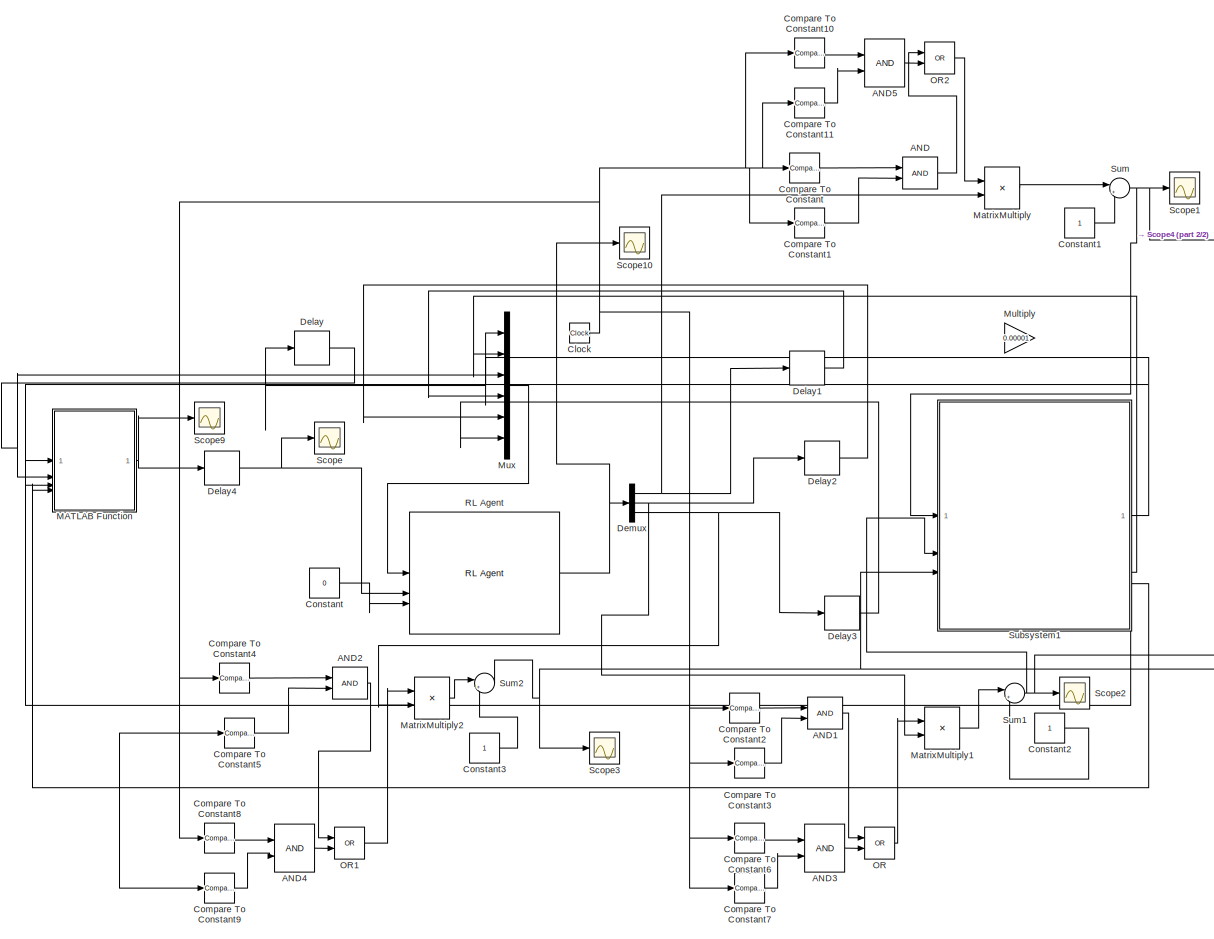
[diagram: root canvas - part 1/2, most of the canvas]
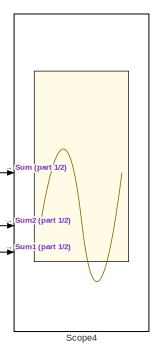
[diagram: root canvas - part 2/2, middle right region]
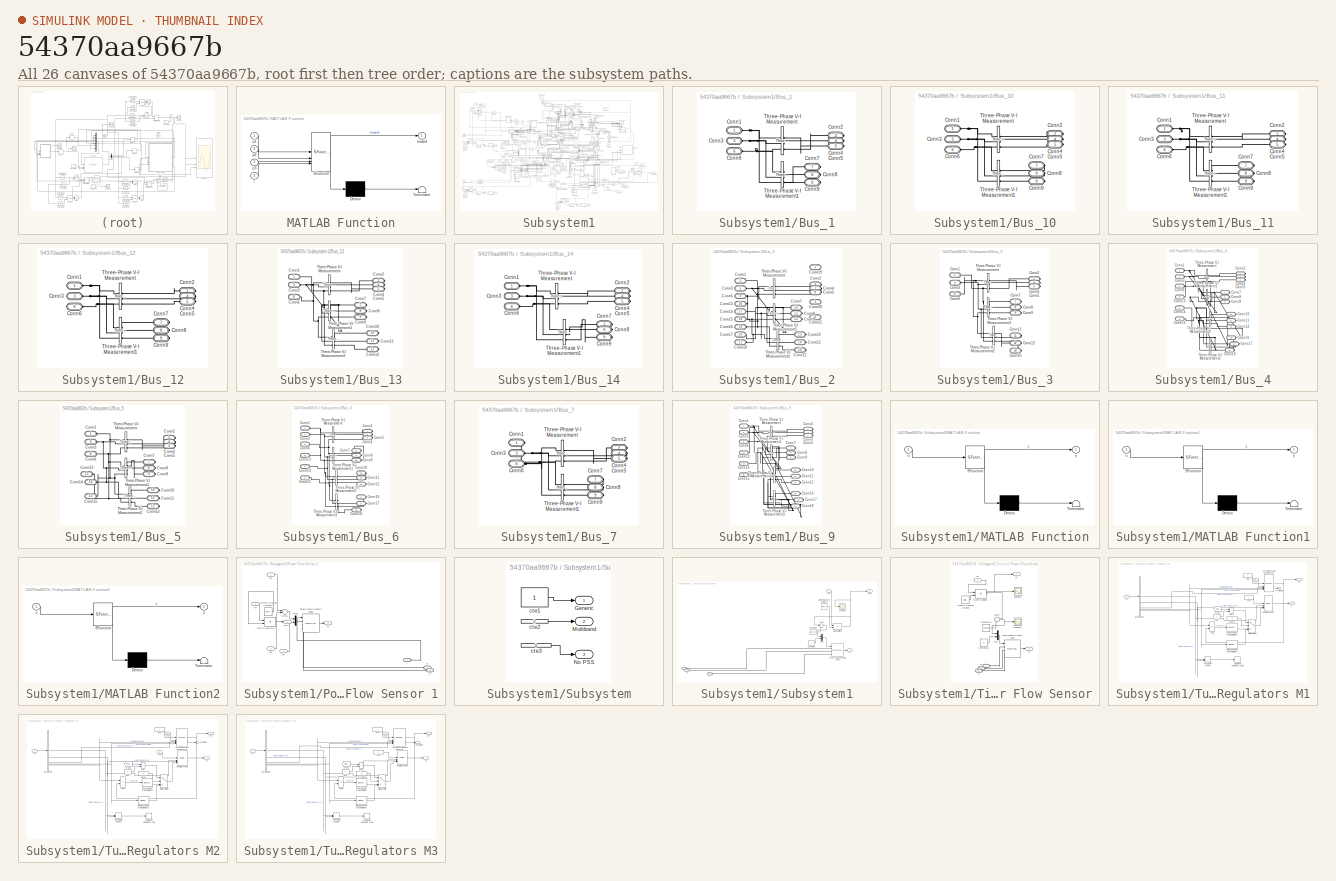
[diagram: thumbnail index - all 26 canvases of the model, root first then tree order]
MODEL slx_54370aa9667b
KIND model
CONFIG AbsTol = auto
CONFIG EnableMultiTasking = off
CONFIG FixedStep = auto
CONFIG MaxStep = auto
CONFIG MinStep = auto
CONFIG RelTol = 1e-3
CONFIG SampleTimeConstraint = Unconstrained
CONFIG SolverName = ode113
CONFIG StartTime = 0.0
CONFIG StopTime = 1
BLOCK [Logic] AND
  AllPortsSameDT = off
  IconShape = distinctive
  OutDataTypeStr = boolean
BLOCK [Logic] AND1
  AllPortsSameDT = off
  IconShape = distinctive
  OutDataTypeStr = boolean
BLOCK [Logic] AND2
  AllPortsSameDT = off
  IconShape = distinctive
  OutDataTypeStr = boolean
BLOCK [Logic] AND3
  AllPortsSameDT = off
  IconShape = distinctive
  OutDataTypeStr = boolean
BLOCK [Logic] AND4
  AllPortsSameDT = off
  IconShape = distinctive
  OutDataTypeStr = boolean
BLOCK [Logic] AND5
  AllPortsSameDT = off
  IconShape = distinctive
  OutDataTypeStr = boolean
BLOCK [Clock] Clock
  DisplayTime = on
BLOCK [Reference] Compare To Constant  REF=simulink/Logic and Bit
Operations/Compare
To Constant
  SourceBlock = simulink/Logic and Bit\nOperations/Compare\nTo Constant
  SourceType = Compare To Constant
BLOCK [Reference] Compare To Constant1  REF=simulink/Logic and Bit
Operations/Compare
To Constant
  SourceBlock = simulink/Logic and Bit\nOperations/Compare\nTo Constant
  SourceType = Compare To Constant
BLOCK [Reference] Compare To Constant10  REF=simulink/Logic and Bit
Operations/Compare
To Constant
  SourceBlock = simulink/Logic and Bit\nOperations/Compare\nTo Constant
  SourceType = Compare To Constant
BLOCK [Reference] Compare To Constant11  REF=simulink/Logic and Bit
Operations/Compare
To Constant
  SourceBlock = simulink/Logic and Bit\nOperations/Compare\nTo Constant
  SourceType = Compare To Constant
BLOCK [Reference] Compare To Constant2  REF=simulink/Logic and Bit
Operations/Compare
To Constant
  SourceBlock = simulink/Logic and Bit\nOperations/Compare\nTo Constant
  SourceType = Compare To Constant
BLOCK [Reference] Compare To Constant3  REF=simulink/Logic and Bit
Operations/Compare
To Constant
  SourceBlock = simulink/Logic and Bit\nOperations/Compare\nTo Constant
  SourceType = Compare To Constant
BLOCK [Reference] Compare To Constant4  REF=simulink/Logic and Bit
Operations/Compare
To Constant
  SourceBlock = simulink/Logic and Bit\nOperations/Compare\nTo Constant
  SourceType = Compare To Constant
BLOCK [Reference] Compare To Constant5  REF=simulink/Logic and Bit
Operations/Compare
To Constant
  SourceBlock = simulink/Logic and Bit\nOperations/Compare\nTo Constant
  SourceType = Compare To Constant
BLOCK [Reference] Compare To Constant6  REF=simulink/Logic and Bit
Operations/Compare
To Constant
  SourceBlock = simulink/Logic and Bit\nOperations/Compare\nTo Constant
  SourceType = Compare To Constant
BLOCK [Reference] Compare To Constant7  REF=simulink/Logic and Bit
Operations/Compare
To Constant
  SourceBlock = simulink/Logic and Bit\nOperations/Compare\nTo Constant
  SourceType = Compare To Constant
BLOCK [Reference] Compare To Constant8  REF=simulink/Logic and Bit
Operations/Compare
To Constant
  SourceBlock = simulink/Logic and Bit\nOperations/Compare\nTo Constant
  SourceType = Compare To Constant
BLOCK [Reference] Compare To Constant9  REF=simulink/Logic and Bit
Operations/Compare
To Constant
  SourceBlock = simulink/Logic and Bit\nOperations/Compare\nTo Constant
  SourceType = Compare To Constant
BLOCK [Constant] Constant
  Value = 0
BLOCK [Constant] Constant1
BLOCK [Constant] Constant2
BLOCK [Constant] Constant3
BLOCK [Delay] Delay
  DelayLength = 1
  InputPortMap = u0
BLOCK [Delay] Delay1
  DelayLength = 1
  InputPortMap = u0
BLOCK [Delay] Delay2
  DelayLength = 1
  InputPortMap = u0
BLOCK [Delay] Delay3
  DelayLength = 1
  InputPortMap = u0
BLOCK [Delay] Delay4
  DelayLength = 1
  InputPortMap = u0
BLOCK [Demux] Demux
  Outputs = 3
BLOCK [SubSystem] MATLAB Function
  ErrorFcn = Stateflow.Translate.translate
  PermitHierarchicalResolution = ExplicitOnly
  SFBlockType = MATLAB Function
  TreatAsAtomicUnit = on
BLOCK [Demux] MATLAB Function/ Demux 
  Outputs = 1
BLOCK [S-Function] MATLAB Function/ SFunction 
  EnableBusSupport = on
  FunctionName = sf_sfun
  PortCounts = [4 2]
  SFcnIsStateOwnerBlock = off
  SFunctionDeploymentMode = off
  Tag = Stateflow S-Function 3
BLOCK [Terminator] MATLAB Function/ Terminator 
BLOCK [Inport] MATLAB Function/p1
BLOCK [Inport] MATLAB Function/p2
  Port = 2
BLOCK [Inport] MATLAB Function/p3
  Port = 3
BLOCK [Inport] MATLAB Function/r
  Port = 4
BLOCK [Outport] MATLAB Function/reward
BLOCK [Product] MatrixMultiply
  Multiplication = Matrix(*)
BLOCK [Product] MatrixMultiply1
  Multiplication = Matrix(*)
BLOCK [Product] MatrixMultiply2
  Multiplication = Matrix(*)
BLOCK [Gain] Multiply
  Commented = on
  Gain = 0.00001
  Multiplication = Matrix(K*u)
BLOCK [Mux] Mux
  DisplayOption = bar
  Inputs = 6
BLOCK [Logic] OR
  AllPortsSameDT = off
  IconShape = distinctive
  Operator = OR
  OutDataTypeStr = boolean
BLOCK [Logic] OR1
  AllPortsSameDT = off
  IconShape = distinctive
  Operator = OR
  OutDataTypeStr = boolean
BLOCK [Logic] OR2
  AllPortsSameDT = off
  IconShape = distinctive
  Operator = OR
  OutDataTypeStr = boolean
BLOCK [Reference] RL Agent  REF=rllib/RL Agent
  SourceBlock = rllib/RL Agent
  SourceType = RL Agent
BLOCK [Scope] Scope
  Floating = off
  NumInputPorts = 1
  ScopeSpecificationString = Simulink.scopes.TimeScopeBlockCfg('CurrentConfiguration', extmgr.ConfigurationSet(extmgr.Configuration('Core','General UI',true),extmgr.Configuration('Core','Source UI',true),extmgr.Configuration('Sources','WiredSimulink',true,'DataLoggingVariableName','ScopeData1'),extmgr.Configuration('Visuals','Time Domain',true),extmgr.Configuration('Tools','Plot Navigation',true),extmgr.Configuration('Tools',...<+40ch>
BLOCK [Scope] Scope1
  Floating = off
  NumInputPorts = 1
  ScopeSpecificationString = Simulink.scopes.TimeScopeBlockCfg('CurrentConfiguration', extmgr.ConfigurationSet(extmgr.Configuration('Core','General UI',true),extmgr.Configuration('Core','Source UI',true),extmgr.Configuration('Sources','WiredSimulink',true,'DataLoggingVariableName','ScopeData2'),extmgr.Configuration('Visuals','Time Domain',true,'SerializedDisplays',{struct('MinYLimReal','0.9','MaxYLimReal','1.1','YLabelReal','...<+1417ch>
BLOCK [Scope] Scope10
  Floating = off
  NumInputPorts = 1
  ScopeSpecificationString = Simulink.scopes.TimeScopeBlockCfg('CurrentConfiguration', extmgr.ConfigurationSet(extmgr.Configuration('Core','General UI',true),extmgr.Configuration('Core','Source UI',true),extmgr.Configuration('Sources','WiredSimulink',true,'DataLoggingVariableName','ScopeData2'),extmgr.Configuration('Visuals','Time Domain',true,'SerializedDisplays',{struct('MinYLimReal','-0.34184','MaxYLimReal','3.07654','YLab...<+1453ch>
BLOCK [Scope] Scope2
  Floating = off
  NumInputPorts = 1
  ScopeSpecificationString = Simulink.scopes.TimeScopeBlockCfg('CurrentConfiguration', extmgr.ConfigurationSet(extmgr.Configuration('Core','General UI',true),extmgr.Configuration('Core','Source UI',true),extmgr.Configuration('Sources','WiredSimulink',true,'DataLoggingVariableName','ScopeData1'),extmgr.Configuration('Visuals','Time Domain',true,'SerializedDisplays',{struct('MinYLimReal','-99999.00000','MaxYLimReal','900001.000...<+1476ch>
BLOCK [Scope] Scope3
  Floating = off
  NumInputPorts = 1
  ScopeSpecificationString = Simulink.scopes.TimeScopeBlockCfg('CurrentConfiguration', extmgr.ConfigurationSet(extmgr.Configuration('Core','General UI',true),extmgr.Configuration('Core','Source UI',true),extmgr.Configuration('Sources','WiredSimulink',true,'DataLoggingVariableName','ScopeData3'),extmgr.Configuration('Visuals','Time Domain',true,'SerializedDisplays',{struct('MinYLimReal','-100000.00000','MaxYLimReal','900000.00...<+1435ch>
BLOCK [Scope] Scope4
  Floating = off
  NumInputPorts = 3
  ScopeSpecificationString = Simulink.scopes.TimeScopeBlockCfg('CurrentConfiguration', extmgr.ConfigurationSet(extmgr.Configuration('Core','General UI',true),extmgr.Configuration('Core','Source UI',true),extmgr.Configuration('Sources','WiredSimulink',true,'DataLoggingVariableName','ScopeData6'),extmgr.Configuration('Visuals','Time Domain',true,'SerializedDisplays',{struct('MinYLimReal','-99999.00000','MaxYLimReal','900001.000...<+1590ch>
BLOCK [Scope] Scope9
  Floating = off
  NumInputPorts = 1
  ScopeSpecificationString = Simulink.scopes.TimeScopeBlockCfg('CurrentConfiguration', extmgr.ConfigurationSet(extmgr.Configuration('Core','General UI',true),extmgr.Configuration('Core','Source UI',true),extmgr.Configuration('Sources','WiredSimulink',true,'DataLoggingVariableName','ScopeData3'),extmgr.Configuration('Visuals','Time Domain',true,'SerializedDisplays',{struct('MinYLimReal','-1898.19427','MaxYLimReal','7419.18007'...<+1448ch>
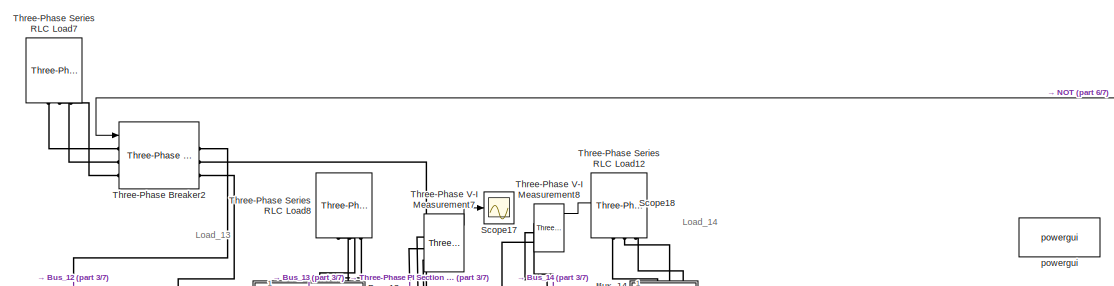
[diagram: Subsystem1 - part 1/7, top center region]
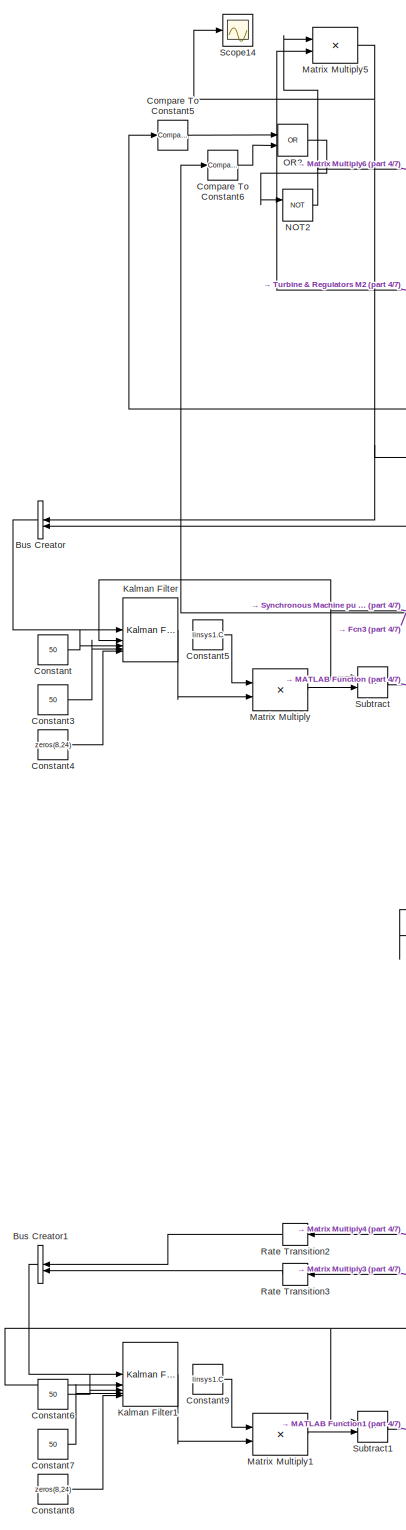
[diagram: Subsystem1 - part 2/7, left side, full height]
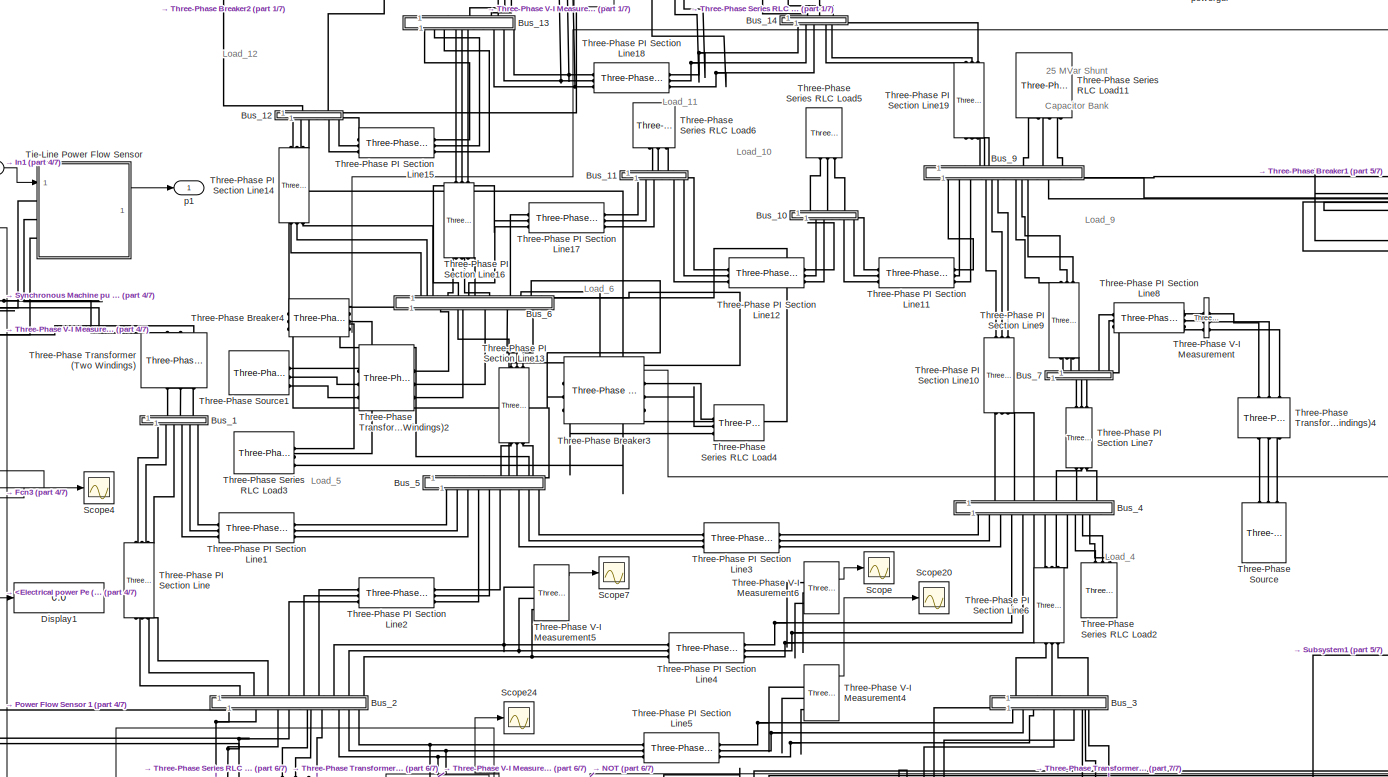
[diagram: Subsystem1 - part 3/7, central region]
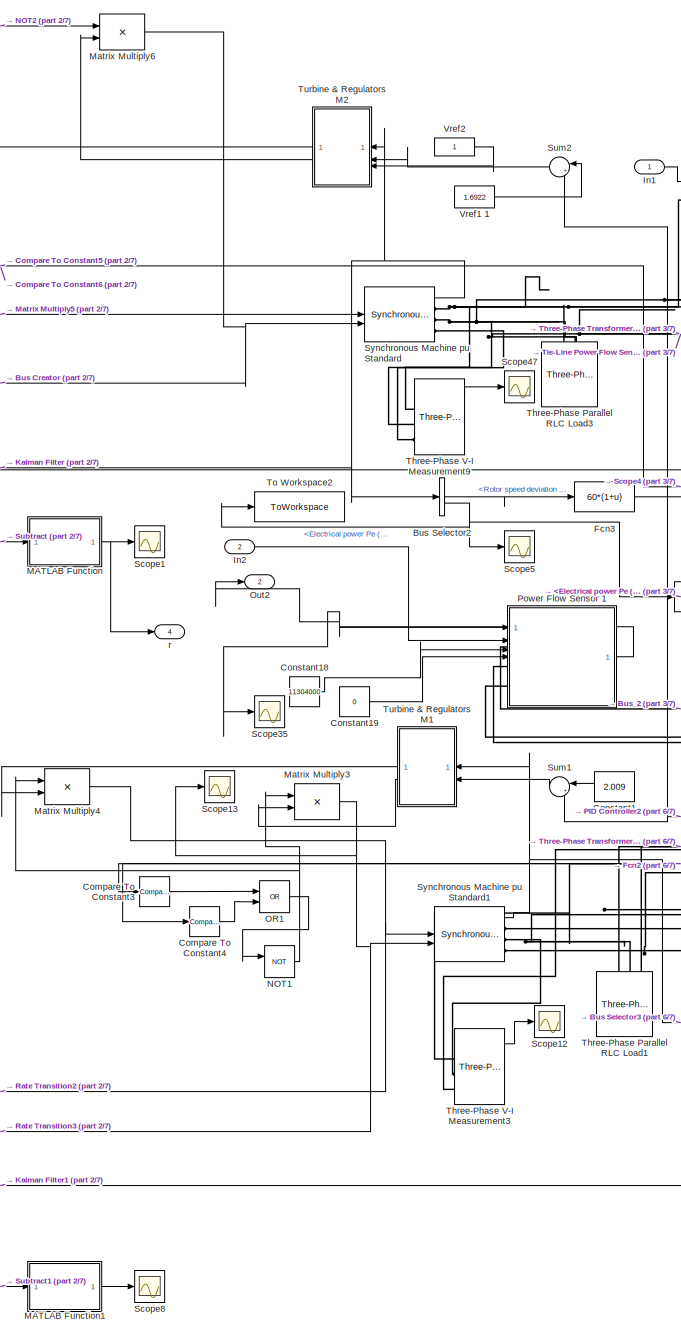
[diagram: Subsystem1 - part 4/7, middle left region]
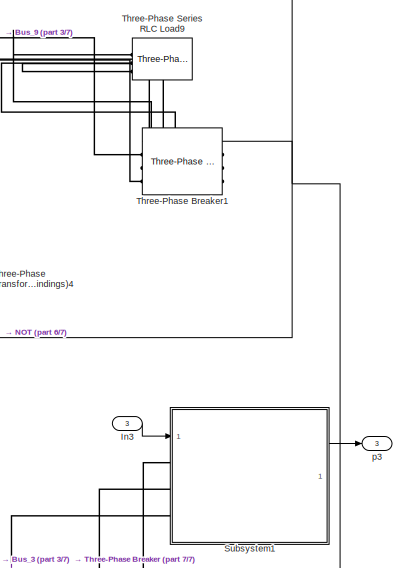
[diagram: Subsystem1 - part 5/7, middle right region]
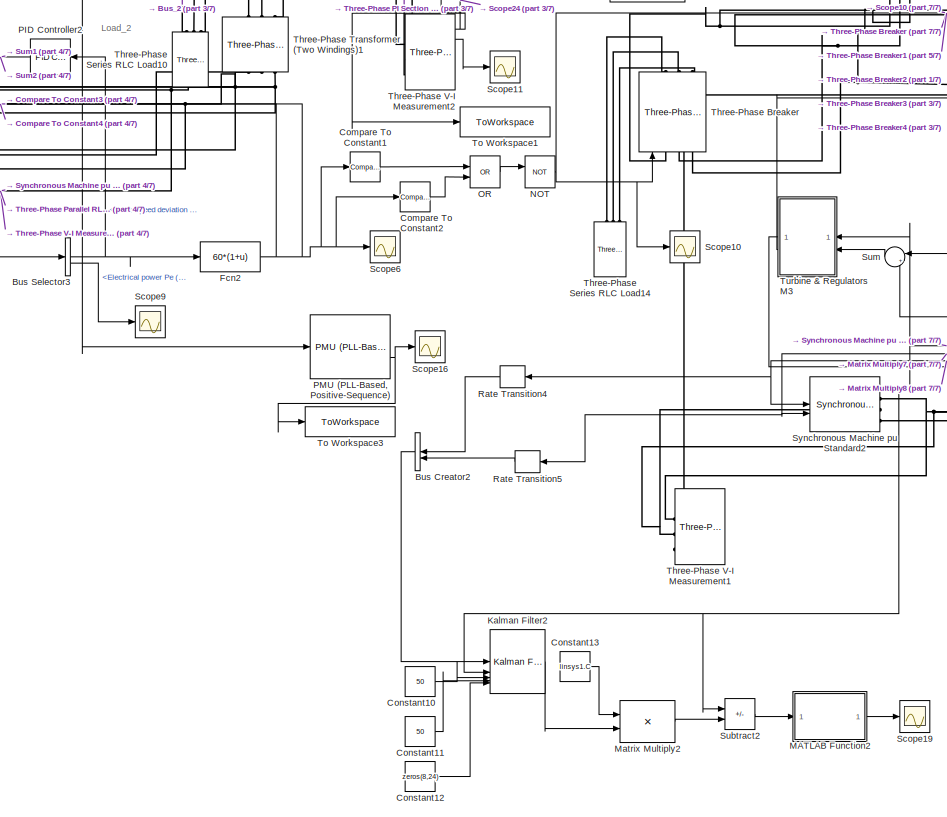
[diagram: Subsystem1 - part 6/7, bottom center region]
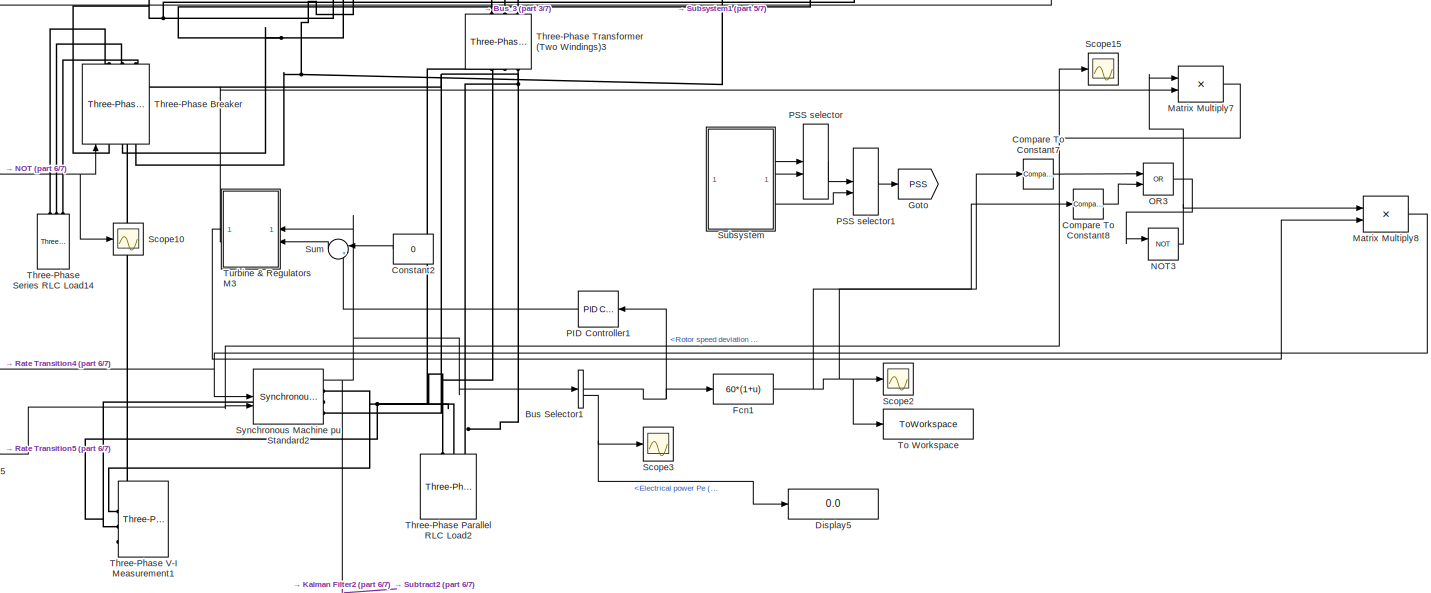
[diagram: Subsystem1 - part 7/7, bottom right region]
BLOCK [SubSystem] Subsystem1
BLOCK [BusCreator] Subsystem1/Bus Creator
  DisplayOption = bar
  InheritFromInputs = on
  Inputs = 2
  NameLocation = top
BLOCK [BusCreator] Subsystem1/Bus Creator1
  DisplayOption = bar
  InheritFromInputs = on
  Inputs = 2
  NameLocation = top
BLOCK [BusCreator] Subsystem1/Bus Creator2
  DisplayOption = bar
  InheritFromInputs = on
  Inputs = 2
  NameLocation = top
BLOCK [BusSelector] Subsystem1/Bus Selector1
  OutputSignals = Mechanical.Rotor speed deviation  dw (pu),Mechanical.Electrical power  Pe (pu)
BLOCK [BusSelector] Subsystem1/Bus Selector2
  OutputSignals = Mechanical.Rotor speed deviation  dw (pu),Mechanical.Electrical power  Pe (pu)
BLOCK [BusSelector] Subsystem1/Bus Selector3
  OutputSignals = Mechanical.Rotor speed deviation  dw (pu),Mechanical.Electrical power  Pe (pu)
BLOCK [SubSystem] Subsystem1/Bus_1
  NameLocation = left
BLOCK [PMIOPort] Subsystem1/Bus_1/Conn1
  Side = Left
BLOCK [PMIOPort] Subsystem1/Bus_1/Conn2
  Port = 2
  Side = Right
BLOCK [PMIOPort] Subsystem1/Bus_1/Conn3
  Port = 3
  Side = Left
BLOCK [PMIOPort] Subsystem1/Bus_1/Conn4
  Port = 4
  Side = Right
BLOCK [PMIOPort] Subsystem1/Bus_1/Conn5
  Port = 5
  Side = Right
BLOCK [PMIOPort] Subsystem1/Bus_1/Conn6
  Port = 6
  Side = Left
BLOCK [PMIOPort] Subsystem1/Bus_1/Conn7
  Port = 7
  Side = Right
BLOCK [PMIOPort] Subsystem1/Bus_1/Conn8
  Port = 8
  Side = Right
BLOCK [PMIOPort] Subsystem1/Bus_1/Conn9
  Port = 9
  Side = Right
BLOCK [Reference] Subsystem1/Bus_1/Three-Phase V-I Measurement  REF=spsThreePhaseVIMeasurementLib/Three-Phase
V-I Measurement
  SourceBlock = spsThreePhaseVIMeasurementLib/Three-Phase\nV-I Measurement
  SourceType = Three-Phase VI Measurement
BLOCK [Reference] Subsystem1/Bus_1/Three-Phase V-I Measurement1  REF=spsThreePhaseVIMeasurementLib/Three-Phase
V-I Measurement
  SourceBlock = spsThreePhaseVIMeasurementLib/Three-Phase\nV-I Measurement
  SourceType = Three-Phase VI Measurement
BLOCK [SubSystem] Subsystem1/Bus_10
  NameLocation = left
BLOCK [PMIOPort] Subsystem1/Bus_10/Conn1
  Side = Left
BLOCK [PMIOPort] Subsystem1/Bus_10/Conn2
  Port = 2
  Side = Right
BLOCK [PMIOPort] Subsystem1/Bus_10/Conn3
  Port = 3
  Side = Left
BLOCK [PMIOPort] Subsystem1/Bus_10/Conn4
  Port = 4
  Side = Right
BLOCK [PMIOPort] Subsystem1/Bus_10/Conn5
  Port = 5
  Side = Right
BLOCK [PMIOPort] Subsystem1/Bus_10/Conn6
  Port = 6
  Side = Left
BLOCK [PMIOPort] Subsystem1/Bus_10/Conn7
  Port = 7
  Side = Right
BLOCK [PMIOPort] Subsystem1/Bus_10/Conn8
  Port = 8
  Side = Right
BLOCK [PMIOPort] Subsystem1/Bus_10/Conn9
  Port = 9
  Side = Right
BLOCK [Reference] Subsystem1/Bus_10/Three-Phase V-I Measurement  REF=spsThreePhaseVIMeasurementLib/Three-Phase
V-I Measurement
  SourceBlock = spsThreePhaseVIMeasurementLib/Three-Phase\nV-I Measurement
  SourceType = Three-Phase VI Measurement
BLOCK [Reference] Subsystem1/Bus_10/Three-Phase V-I Measurement1  REF=spsThreePhaseVIMeasurementLib/Three-Phase
V-I Measurement
  SourceBlock = spsThreePhaseVIMeasurementLib/Three-Phase\nV-I Measurement
  SourceType = Three-Phase VI Measurement
BLOCK [SubSystem] Subsystem1/Bus_11
  NameLocation = left
BLOCK [PMIOPort] Subsystem1/Bus_11/Conn1
  Side = Left
BLOCK [PMIOPort] Subsystem1/Bus_11/Conn2
  Port = 2
  Side = Right
BLOCK [PMIOPort] Subsystem1/Bus_11/Conn3
  Port = 3
  Side = Left
BLOCK [PMIOPort] Subsystem1/Bus_11/Conn4
  Port = 4
  Side = Right
BLOCK [PMIOPort] Subsystem1/Bus_11/Conn5
  Port = 5
  Side = Right
BLOCK [PMIOPort] Subsystem1/Bus_11/Conn6
  Port = 6
  Side = Left
BLOCK [PMIOPort] Subsystem1/Bus_11/Conn7
  Port = 7
  Side = Right
BLOCK [PMIOPort] Subsystem1/Bus_11/Conn8
  Port = 8
  Side = Right
BLOCK [PMIOPort] Subsystem1/Bus_11/Conn9
  Port = 9
  Side = Right
BLOCK [Reference] Subsystem1/Bus_11/Three-Phase V-I Measurement  REF=spsThreePhaseVIMeasurementLib/Three-Phase
V-I Measurement
  SourceBlock = spsThreePhaseVIMeasurementLib/Three-Phase\nV-I Measurement
  SourceType = Three-Phase VI Measurement
BLOCK [Reference] Subsystem1/Bus_11/Three-Phase V-I Measurement1  REF=spsThreePhaseVIMeasurementLib/Three-Phase
V-I Measurement
  SourceBlock = spsThreePhaseVIMeasurementLib/Three-Phase\nV-I Measurement
  SourceType = Three-Phase VI Measurement
BLOCK [SubSystem] Subsystem1/Bus_12
  NameLocation = left
BLOCK [PMIOPort] Subsystem1/Bus_12/Conn1
  Side = Left
BLOCK [PMIOPort] Subsystem1/Bus_12/Conn2
  Port = 2
  Side = Right
BLOCK [PMIOPort] Subsystem1/Bus_12/Conn3
  Port = 3
  Side = Left
BLOCK [PMIOPort] Subsystem1/Bus_12/Conn4
  Port = 4
  Side = Right
BLOCK [PMIOPort] Subsystem1/Bus_12/Conn5
  Port = 5
  Side = Right
BLOCK [PMIOPort] Subsystem1/Bus_12/Conn6
  Port = 6
  Side = Left
BLOCK [PMIOPort] Subsystem1/Bus_12/Conn7
  Port = 7
  Side = Right
BLOCK [PMIOPort] Subsystem1/Bus_12/Conn8
  Port = 8
  Side = Right
BLOCK [PMIOPort] Subsystem1/Bus_12/Conn9
  Port = 9
  Side = Right
BLOCK [Reference] Subsystem1/Bus_12/Three-Phase V-I Measurement  REF=spsThreePhaseVIMeasurementLib/Three-Phase
V-I Measurement
  SourceBlock = spsThreePhaseVIMeasurementLib/Three-Phase\nV-I Measurement
  SourceType = Three-Phase VI Measurement
BLOCK [Reference] Subsystem1/Bus_12/Three-Phase V-I Measurement1  REF=spsThreePhaseVIMeasurementLib/Three-Phase
V-I Measurement
  SourceBlock = spsThreePhaseVIMeasurementLib/Three-Phase\nV-I Measurement
  SourceType = Three-Phase VI Measurement
BLOCK [SubSystem] Subsystem1/Bus_13
  NameLocation = left
BLOCK [PMIOPort] Subsystem1/Bus_13/Conn1
  Side = Left
BLOCK [PMIOPort] Subsystem1/Bus_13/Conn10
  Port = 10
  Side = Right
BLOCK [PMIOPort] Subsystem1/Bus_13/Conn11
  Port = 11
  Side = Right
BLOCK [PMIOPort] Subsystem1/Bus_13/Conn12
  Port = 12
  Side = Right
BLOCK [PMIOPort] Subsystem1/Bus_13/Conn2
  Port = 2
  Side = Right
BLOCK [PMIOPort] Subsystem1/Bus_13/Conn3
  Port = 3
  Side = Left
BLOCK [PMIOPort] Subsystem1/Bus_13/Conn4
  Port = 4
  Side = Right
BLOCK [PMIOPort] Subsystem1/Bus_13/Conn5
  Port = 5
  Side = Right
BLOCK [PMIOPort] Subsystem1/Bus_13/Conn6
  Port = 6
  Side = Left
BLOCK [PMIOPort] Subsystem1/Bus_13/Conn7
  Port = 7
  Side = Right
BLOCK [PMIOPort] Subsystem1/Bus_13/Conn8
  Port = 8
  Side = Right
BLOCK [PMIOPort] Subsystem1/Bus_13/Conn9
  Port = 9
  Side = Right
BLOCK [Reference] Subsystem1/Bus_13/Three-Phase V-I Measurement  REF=spsThreePhaseVIMeasurementLib/Three-Phase
V-I Measurement
  SourceBlock = spsThreePhaseVIMeasurementLib/Three-Phase\nV-I Measurement
  SourceType = Three-Phase VI Measurement
BLOCK [Reference] Subsystem1/Bus_13/Three-Phase V-I Measurement1  REF=spsThreePhaseVIMeasurementLib/Three-Phase
V-I Measurement
  SourceBlock = spsThreePhaseVIMeasurementLib/Three-Phase\nV-I Measurement
  SourceType = Three-Phase VI Measurement
BLOCK [Reference] Subsystem1/Bus_13/Three-Phase V-I Measurement2  REF=spsThreePhaseVIMeasurementLib/Three-Phase
V-I Measurement
  SourceBlock = spsThreePhaseVIMeasurementLib/Three-Phase\nV-I Measurement
  SourceType = Three-Phase VI Measurement
BLOCK [SubSystem] Subsystem1/Bus_14
  NameLocation = left
BLOCK [PMIOPort] Subsystem1/Bus_14/Conn1
  Side = Left
BLOCK [PMIOPort] Subsystem1/Bus_14/Conn2
  Port = 2
  Side = Right
BLOCK [PMIOPort] Subsystem1/Bus_14/Conn3
  Port = 3
  Side = Left
BLOCK [PMIOPort] Subsystem1/Bus_14/Conn4
  Port = 4
  Side = Right
BLOCK [PMIOPort] Subsystem1/Bus_14/Conn5
  Port = 5
  Side = Right
BLOCK [PMIOPort] Subsystem1/Bus_14/Conn6
  Port = 6
  Side = Left
BLOCK [PMIOPort] Subsystem1/Bus_14/Conn7
  Port = 7
  Side = Right
BLOCK [PMIOPort] Subsystem1/Bus_14/Conn8
  Port = 8
  Side = Right
BLOCK [PMIOPort] Subsystem1/Bus_14/Conn9
  Port = 9
  Side = Right
BLOCK [Reference] Subsystem1/Bus_14/Three-Phase V-I Measurement  REF=spsThreePhaseVIMeasurementLib/Three-Phase
V-I Measurement
  SourceBlock = spsThreePhaseVIMeasurementLib/Three-Phase\nV-I Measurement
  SourceType = Three-Phase VI Measurement
BLOCK [Reference] Subsystem1/Bus_14/Three-Phase V-I Measurement1  REF=spsThreePhaseVIMeasurementLib/Three-Phase
V-I Measurement
  SourceBlock = spsThreePhaseVIMeasurementLib/Three-Phase\nV-I Measurement
  SourceType = Three-Phase VI Measurement
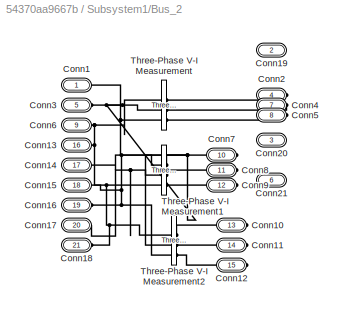
BLOCK [SubSystem] Subsystem1/Bus_2
  NameLocation = left
BLOCK [PMIOPort] Subsystem1/Bus_2/Conn1
  Side = Left
BLOCK [PMIOPort] Subsystem1/Bus_2/Conn10
  Port = 13
  Side = Right
BLOCK [PMIOPort] Subsystem1/Bus_2/Conn11
  Port = 14
  Side = Right
BLOCK [PMIOPort] Subsystem1/Bus_2/Conn12
  Port = 15
  Side = Right
BLOCK [PMIOPort] Subsystem1/Bus_2/Conn13
  Port = 16
  Side = Left
BLOCK [PMIOPort] Subsystem1/Bus_2/Conn14
  Port = 17
  Side = Left
BLOCK [PMIOPort] Subsystem1/Bus_2/Conn15
  Port = 18
  Side = Left
BLOCK [PMIOPort] Subsystem1/Bus_2/Conn16
  Port = 19
  Side = Left
BLOCK [PMIOPort] Subsystem1/Bus_2/Conn17
  Port = 20
  Side = Left
BLOCK [PMIOPort] Subsystem1/Bus_2/Conn18
  Port = 21
  Side = Left
BLOCK [PMIOPort] Subsystem1/Bus_2/Conn19
  Port = 2
  Side = Right
BLOCK [PMIOPort] Subsystem1/Bus_2/Conn2
  Port = 4
  Side = Right
BLOCK [PMIOPort] Subsystem1/Bus_2/Conn20
  Port = 3
  Side = Right
BLOCK [PMIOPort] Subsystem1/Bus_2/Conn21
  Port = 6
  Side = Right
BLOCK [PMIOPort] Subsystem1/Bus_2/Conn3
  Port = 5
  Side = Left
BLOCK [PMIOPort] Subsystem1/Bus_2/Conn4
  Port = 7
  Side = Right
BLOCK [PMIOPort] Subsystem1/Bus_2/Conn5
  Port = 8
  Side = Right
BLOCK [PMIOPort] Subsystem1/Bus_2/Conn6
  Port = 9
  Side = Left
BLOCK [PMIOPort] Subsystem1/Bus_2/Conn7
  Port = 10
  Side = Right
BLOCK [PMIOPort] Subsystem1/Bus_2/Conn8
  Port = 11
  Side = Right
BLOCK [PMIOPort] Subsystem1/Bus_2/Conn9
  Port = 12
  Side = Right
BLOCK [Reference] Subsystem1/Bus_2/Three-Phase V-I Measurement  REF=spsThreePhaseVIMeasurementLib/Three-Phase
V-I Measurement
  SourceBlock = spsThreePhaseVIMeasurementLib/Three-Phase\nV-I Measurement
  SourceType = Three-Phase VI Measurement
BLOCK [Reference] Subsystem1/Bus_2/Three-Phase V-I Measurement1  REF=spsThreePhaseVIMeasurementLib/Three-Phase
V-I Measurement
  SourceBlock = spsThreePhaseVIMeasurementLib/Three-Phase\nV-I Measurement
  SourceType = Three-Phase VI Measurement
BLOCK [Reference] Subsystem1/Bus_2/Three-Phase V-I Measurement2  REF=spsThreePhaseVIMeasurementLib/Three-Phase
V-I Measurement
  SourceBlock = spsThreePhaseVIMeasurementLib/Three-Phase\nV-I Measurement
  SourceType = Three-Phase VI Measurement
BLOCK [SubSystem] Subsystem1/Bus_3
  NameLocation = left
BLOCK [PMIOPort] Subsystem1/Bus_3/Conn1
  Side = Left
BLOCK [PMIOPort] Subsystem1/Bus_3/Conn10
  Port = 10
  Side = Right
BLOCK [PMIOPort] Subsystem1/Bus_3/Conn11
  Port = 11
  Side = Right
BLOCK [PMIOPort] Subsystem1/Bus_3/Conn12
  Port = 12
  Side = Right
BLOCK [PMIOPort] Subsystem1/Bus_3/Conn2
  Port = 2
  Side = Right
BLOCK [PMIOPort] Subsystem1/Bus_3/Conn3
  Port = 3
  Side = Left
BLOCK [PMIOPort] Subsystem1/Bus_3/Conn4
  Port = 4
  Side = Right
BLOCK [PMIOPort] Subsystem1/Bus_3/Conn5
  Port = 5
  Side = Right
BLOCK [PMIOPort] Subsystem1/Bus_3/Conn6
  Port = 6
  Side = Left
BLOCK [PMIOPort] Subsystem1/Bus_3/Conn7
  Port = 7
  Side = Right
BLOCK [PMIOPort] Subsystem1/Bus_3/Conn8
  Port = 8
  Side = Right
BLOCK [PMIOPort] Subsystem1/Bus_3/Conn9
  Port = 9
  Side = Right
BLOCK [Reference] Subsystem1/Bus_3/Three-Phase V-I Measurement  REF=spsThreePhaseVIMeasurementLib/Three-Phase
V-I Measurement
  SourceBlock = spsThreePhaseVIMeasurementLib/Three-Phase\nV-I Measurement
  SourceType = Three-Phase VI Measurement
BLOCK [Reference] Subsystem1/Bus_3/Three-Phase V-I Measurement1  REF=spsThreePhaseVIMeasurementLib/Three-Phase
V-I Measurement
  SourceBlock = spsThreePhaseVIMeasurementLib/Three-Phase\nV-I Measurement
  SourceType = Three-Phase VI Measurement
BLOCK [Reference] Subsystem1/Bus_3/Three-Phase V-I Measurement2  REF=spsThreePhaseVIMeasurementLib/Three-Phase
V-I Measurement
  SourceBlock = spsThreePhaseVIMeasurementLib/Three-Phase\nV-I Measurement
  SourceType = Three-Phase VI Measurement
BLOCK [SubSystem] Subsystem1/Bus_4
  NameLocation = left
BLOCK [PMIOPort] Subsystem1/Bus_4/Conn1
  Side = Left
BLOCK [PMIOPort] Subsystem1/Bus_4/Conn10
  Port = 10
  Side = Right
BLOCK [PMIOPort] Subsystem1/Bus_4/Conn11
  Port = 11
  Side = Right
BLOCK [PMIOPort] Subsystem1/Bus_4/Conn12
  Port = 12
  Side = Right
BLOCK [PMIOPort] Subsystem1/Bus_4/Conn13
  Port = 13
  Side = Left
BLOCK [PMIOPort] Subsystem1/Bus_4/Conn14
  Port = 14
  Side = Left
BLOCK [PMIOPort] Subsystem1/Bus_4/Conn15
  Port = 15
  Side = Left
BLOCK [PMIOPort] Subsystem1/Bus_4/Conn16
  Port = 16
  Side = Right
BLOCK [PMIOPort] Subsystem1/Bus_4/Conn17
  Port = 17
  Side = Right
BLOCK [PMIOPort] Subsystem1/Bus_4/Conn18
  Port = 18
  Side = Right
BLOCK [PMIOPort] Subsystem1/Bus_4/Conn2
  Port = 2
  Side = Right
BLOCK [PMIOPort] Subsystem1/Bus_4/Conn3
  Port = 3
  Side = Left
BLOCK [PMIOPort] Subsystem1/Bus_4/Conn4
  Port = 4
  Side = Right
BLOCK [PMIOPort] Subsystem1/Bus_4/Conn5
  Port = 5
  Side = Right
BLOCK [PMIOPort] Subsystem1/Bus_4/Conn6
  Port = 6
  Side = Left
BLOCK [PMIOPort] Subsystem1/Bus_4/Conn7
  Port = 7
  Side = Right
BLOCK [PMIOPort] Subsystem1/Bus_4/Conn8
  Port = 8
  Side = Right
BLOCK [PMIOPort] Subsystem1/Bus_4/Conn9
  Port = 9
  Side = Right
BLOCK [Reference] Subsystem1/Bus_4/Three-Phase V-I Measurement  REF=spsThreePhaseVIMeasurementLib/Three-Phase
V-I Measurement
  SourceBlock = spsThreePhaseVIMeasurementLib/Three-Phase\nV-I Measurement
  SourceType = Three-Phase VI Measurement
BLOCK [Reference] Subsystem1/Bus_4/Three-Phase V-I Measurement1  REF=spsThreePhaseVIMeasurementLib/Three-Phase
V-I Measurement
  SourceBlock = spsThreePhaseVIMeasurementLib/Three-Phase\nV-I Measurement
  SourceType = Three-Phase VI Measurement
BLOCK [Reference] Subsystem1/Bus_4/Three-Phase V-I Measurement2  REF=spsThreePhaseVIMeasurementLib/Three-Phase
V-I Measurement
  SourceBlock = spsThreePhaseVIMeasurementLib/Three-Phase\nV-I Measurement
  SourceType = Three-Phase VI Measurement
BLOCK [Reference] Subsystem1/Bus_4/Three-Phase V-I Measurement3  REF=spsThreePhaseVIMeasurementLib/Three-Phase
V-I Measurement
  SourceBlock = spsThreePhaseVIMeasurementLib/Three-Phase\nV-I Measurement
  SourceType = Three-Phase VI Measurement
BLOCK [SubSystem] Subsystem1/Bus_5
  NameLocation = left
BLOCK [PMIOPort] Subsystem1/Bus_5/Conn1
  Side = Left
BLOCK [PMIOPort] Subsystem1/Bus_5/Conn10
  Port = 10
  Side = Right
BLOCK [PMIOPort] Subsystem1/Bus_5/Conn11
  Port = 11
  Side = Right
BLOCK [PMIOPort] Subsystem1/Bus_5/Conn12
  Port = 12
  Side = Right
BLOCK [PMIOPort] Subsystem1/Bus_5/Conn13
  Port = 13
  Side = Left
BLOCK [PMIOPort] Subsystem1/Bus_5/Conn14
  Port = 14
  Side = Left
BLOCK [PMIOPort] Subsystem1/Bus_5/Conn15
  Port = 15
  Side = Left
BLOCK [PMIOPort] Subsystem1/Bus_5/Conn2
  Port = 2
  Side = Right
BLOCK [PMIOPort] Subsystem1/Bus_5/Conn3
  Port = 3
  Side = Left
BLOCK [PMIOPort] Subsystem1/Bus_5/Conn4
  Port = 4
  Side = Right
BLOCK [PMIOPort] Subsystem1/Bus_5/Conn5
  Port = 5
  Side = Right
BLOCK [PMIOPort] Subsystem1/Bus_5/Conn6
  Port = 6
  Side = Left
BLOCK [PMIOPort] Subsystem1/Bus_5/Conn7
  Port = 7
  Side = Right
BLOCK [PMIOPort] Subsystem1/Bus_5/Conn8
  Port = 8
  Side = Right
BLOCK [PMIOPort] Subsystem1/Bus_5/Conn9
  Port = 9
  Side = Right
BLOCK [Reference] Subsystem1/Bus_5/Three-Phase V-I Measurement  REF=spsThreePhaseVIMeasurementLib/Three-Phase
V-I Measurement
  SourceBlock = spsThreePhaseVIMeasurementLib/Three-Phase\nV-I Measurement
  SourceType = Three-Phase VI Measurement
BLOCK [Reference] Subsystem1/Bus_5/Three-Phase V-I Measurement1  REF=spsThreePhaseVIMeasurementLib/Three-Phase
V-I Measurement
  SourceBlock = spsThreePhaseVIMeasurementLib/Three-Phase\nV-I Measurement
  SourceType = Three-Phase VI Measurement
BLOCK [Reference] Subsystem1/Bus_5/Three-Phase V-I Measurement2  REF=spsThreePhaseVIMeasurementLib/Three-Phase
V-I Measurement
  SourceBlock = spsThreePhaseVIMeasurementLib/Three-Phase\nV-I Measurement
  SourceType = Three-Phase VI Measurement
BLOCK [SubSystem] Subsystem1/Bus_6
  NameLocation = right
BLOCK [PMIOPort] Subsystem1/Bus_6/Conn1
  Side = Left
BLOCK [PMIOPort] Subsystem1/Bus_6/Conn10
  Port = 10
  Side = Right
BLOCK [PMIOPort] Subsystem1/Bus_6/Conn11
  Port = 11
  Side = Right
BLOCK [PMIOPort] Subsystem1/Bus_6/Conn12
  Port = 12
  Side = Right
BLOCK [PMIOPort] Subsystem1/Bus_6/Conn13
  Port = 16
  Side = Right
BLOCK [PMIOPort] Subsystem1/Bus_6/Conn14
  Port = 4
  Side = Left
BLOCK [PMIOPort] Subsystem1/Bus_6/Conn15
  Port = 5
  Side = Left
BLOCK [PMIOPort] Subsystem1/Bus_6/Conn16
  Port = 6
  Side = Right
BLOCK [PMIOPort] Subsystem1/Bus_6/Conn17
  Port = 17
  Side = Right
BLOCK [PMIOPort] Subsystem1/Bus_6/Conn18
  Port = 18
  Side = Right
BLOCK [PMIOPort] Subsystem1/Bus_6/Conn2
  Port = 7
  Side = Right
BLOCK [PMIOPort] Subsystem1/Bus_6/Conn3
  Port = 3
  Side = Left
BLOCK [PMIOPort] Subsystem1/Bus_6/Conn4
  Port = 8
  Side = Right
BLOCK [PMIOPort] Subsystem1/Bus_6/Conn5
  Port = 9
  Side = Right
BLOCK [PMIOPort] Subsystem1/Bus_6/Conn6
  Port = 2
  Side = Left
BLOCK [PMIOPort] Subsystem1/Bus_6/Conn7
  Port = 13
  Side = Right
BLOCK [PMIOPort] Subsystem1/Bus_6/Conn8
  Port = 14
  Side = Right
BLOCK [PMIOPort] Subsystem1/Bus_6/Conn9
  Port = 15
  Side = Right
BLOCK [Reference] Subsystem1/Bus_6/Three-Phase V-I Measurement  REF=spsThreePhaseVIMeasurementLib/Three-Phase
V-I Measurement
  SourceBlock = spsThreePhaseVIMeasurementLib/Three-Phase\nV-I Measurement
  SourceType = Three-Phase VI Measurement
BLOCK [Reference] Subsystem1/Bus_6/Three-Phase V-I Measurement1  REF=spsThreePhaseVIMeasurementLib/Three-Phase
V-I Measurement
  SourceBlock = spsThreePhaseVIMeasurementLib/Three-Phase\nV-I Measurement
  SourceType = Three-Phase VI Measurement
BLOCK [Reference] Subsystem1/Bus_6/Three-Phase V-I Measurement2  REF=spsThreePhaseVIMeasurementLib/Three-Phase
V-I Measurement
  SourceBlock = spsThreePhaseVIMeasurementLib/Three-Phase\nV-I Measurement
  SourceType = Three-Phase VI Measurement
BLOCK [Reference] Subsystem1/Bus_6/Three-Phase V-I Measurement3  REF=spsThreePhaseVIMeasurementLib/Three-Phase
V-I Measurement
  SourceBlock = spsThreePhaseVIMeasurementLib/Three-Phase\nV-I Measurement
  SourceType = Three-Phase VI Measurement
BLOCK [SubSystem] Subsystem1/Bus_7
  NameLocation = right
BLOCK [PMIOPort] Subsystem1/Bus_7/Conn1
  Side = Left
BLOCK [PMIOPort] Subsystem1/Bus_7/Conn2
  Port = 2
  Side = Right
BLOCK [PMIOPort] Subsystem1/Bus_7/Conn3
  Port = 3
  Side = Left
BLOCK [PMIOPort] Subsystem1/Bus_7/Conn4
  Port = 4
  Side = Right
BLOCK [PMIOPort] Subsystem1/Bus_7/Conn5
  Port = 5
  Side = Right
BLOCK [PMIOPort] Subsystem1/Bus_7/Conn6
  Port = 6
  Side = Left
BLOCK [PMIOPort] Subsystem1/Bus_7/Conn7
  Port = 7
  Side = Right
BLOCK [PMIOPort] Subsystem1/Bus_7/Conn8
  Port = 8
  Side = Right
BLOCK [PMIOPort] Subsystem1/Bus_7/Conn9
  Port = 9
  Side = Right
BLOCK [Reference] Subsystem1/Bus_7/Three-Phase V-I Measurement  REF=spsThreePhaseVIMeasurementLib/Three-Phase
V-I Measurement
  SourceBlock = spsThreePhaseVIMeasurementLib/Three-Phase\nV-I Measurement
  SourceType = Three-Phase VI Measurement
BLOCK [Reference] Subsystem1/Bus_7/Three-Phase V-I Measurement1  REF=spsThreePhaseVIMeasurementLib/Three-Phase
V-I Measurement
  SourceBlock = spsThreePhaseVIMeasurementLib/Three-Phase\nV-I Measurement
  SourceType = Three-Phase VI Measurement
BLOCK [SubSystem] Subsystem1/Bus_9
  NameLocation = left
BLOCK [PMIOPort] Subsystem1/Bus_9/Conn1
  Side = Left
BLOCK [PMIOPort] Subsystem1/Bus_9/Conn10
  Port = 10
  Side = Right
BLOCK [PMIOPort] Subsystem1/Bus_9/Conn11
  Port = 11
  Side = Right
BLOCK [PMIOPort] Subsystem1/Bus_9/Conn12
  Port = 12
  Side = Right
BLOCK [PMIOPort] Subsystem1/Bus_9/Conn13
  Port = 13
  Side = Left
BLOCK [PMIOPort] Subsystem1/Bus_9/Conn14
  Port = 14
  Side = Left
BLOCK [PMIOPort] Subsystem1/Bus_9/Conn15
  Port = 15
  Side = Left
BLOCK [PMIOPort] Subsystem1/Bus_9/Conn16
  Port = 16
  Side = Right
BLOCK [PMIOPort] Subsystem1/Bus_9/Conn17
  Port = 17
  Side = Right
BLOCK [PMIOPort] Subsystem1/Bus_9/Conn18
  Port = 18
  Side = Right
BLOCK [PMIOPort] Subsystem1/Bus_9/Conn2
  Port = 2
  Side = Right
BLOCK [PMIOPort] Subsystem1/Bus_9/Conn3
  Port = 3
  Side = Left
BLOCK [PMIOPort] Subsystem1/Bus_9/Conn4
  Port = 4
  Side = Right
BLOCK [PMIOPort] Subsystem1/Bus_9/Conn5
  Port = 5
  Side = Right
BLOCK [PMIOPort] Subsystem1/Bus_9/Conn6
  Port = 6
  Side = Left
BLOCK [PMIOPort] Subsystem1/Bus_9/Conn7
  Port = 7
  Side = Right
BLOCK [PMIOPort] Subsystem1/Bus_9/Conn8
  Port = 8
  Side = Right
BLOCK [PMIOPort] Subsystem1/Bus_9/Conn9
  Port = 9
  Side = Right
BLOCK [Reference] Subsystem1/Bus_9/Three-Phase V-I Measurement  REF=spsThreePhaseVIMeasurementLib/Three-Phase
V-I Measurement
  SourceBlock = spsThreePhaseVIMeasurementLib/Three-Phase\nV-I Measurement
  SourceType = Three-Phase VI Measurement
BLOCK [Reference] Subsystem1/Bus_9/Three-Phase V-I Measurement1  REF=spsThreePhaseVIMeasurementLib/Three-Phase
V-I Measurement
  SourceBlock = spsThreePhaseVIMeasurementLib/Three-Phase\nV-I Measurement
  SourceType = Three-Phase VI Measurement
BLOCK [Reference] Subsystem1/Bus_9/Three-Phase V-I Measurement2  REF=spsThreePhaseVIMeasurementLib/Three-Phase
V-I Measurement
  SourceBlock = spsThreePhaseVIMeasurementLib/Three-Phase\nV-I Measurement
  SourceType = Three-Phase VI Measurement
BLOCK [Reference] Subsystem1/Bus_9/Three-Phase V-I Measurement3  REF=spsThreePhaseVIMeasurementLib/Three-Phase
V-I Measurement
  SourceBlock = spsThreePhaseVIMeasurementLib/Three-Phase\nV-I Measurement
  SourceType = Three-Phase VI Measurement
BLOCK [Reference] Subsystem1/Compare To Constant1  REF=simulink/Logic and Bit
Operations/Compare
To Constant
  SourceBlock = simulink/Logic and Bit\nOperations/Compare\nTo Constant
  SourceType = Compare To Constant
BLOCK [Reference] Subsystem1/Compare To Constant2  REF=simulink/Logic and Bit
Operations/Compare
To Constant
  SourceBlock = simulink/Logic and Bit\nOperations/Compare\nTo Constant
  SourceType = Compare To Constant
BLOCK [Reference] Subsystem1/Compare To Constant3  REF=simulink/Logic and Bit
Operations/Compare
To Constant
  SourceBlock = simulink/Logic and Bit\nOperations/Compare\nTo Constant
  SourceType = Compare To Constant
BLOCK [Reference] Subsystem1/Compare To Constant4  REF=simulink/Logic and Bit
Operations/Compare
To Constant
  SourceBlock = simulink/Logic and Bit\nOperations/Compare\nTo Constant
  SourceType = Compare To Constant
BLOCK [Reference] Subsystem1/Compare To Constant5  REF=simulink/Logic and Bit
Operations/Compare
To Constant
  SourceBlock = simulink/Logic and Bit\nOperations/Compare\nTo Constant
  SourceType = Compare To Constant
BLOCK [Reference] Subsystem1/Compare To Constant6  REF=simulink/Logic and Bit
Operations/Compare
To Constant
  SourceBlock = simulink/Logic and Bit\nOperations/Compare\nTo Constant
  SourceType = Compare To Constant
BLOCK [Reference] Subsystem1/Compare To Constant7  REF=simulink/Logic and Bit
Operations/Compare
To Constant
  SourceBlock = simulink/Logic and Bit\nOperations/Compare\nTo Constant
  SourceType = Compare To Constant
BLOCK [Reference] Subsystem1/Compare To Constant8  REF=simulink/Logic and Bit
Operations/Compare
To Constant
  SourceBlock = simulink/Logic and Bit\nOperations/Compare\nTo Constant
  SourceType = Compare To Constant
BLOCK [Constant] Subsystem1/Constant
  Value = 50
BLOCK [Constant] Subsystem1/Constant1
  NameLocation = top
  Value = 2.009
BLOCK [Constant] Subsystem1/Constant10
  Value = 50
BLOCK [Constant] Subsystem1/Constant11
  Value = 50
BLOCK [Constant] Subsystem1/Constant12
  Value = zeros(8,24)
BLOCK [Constant] Subsystem1/Constant13
  Value = linsys1.C
BLOCK [Constant] Subsystem1/Constant18
  SampleTime = -1
  Value = 11304000
BLOCK [Constant] Subsystem1/Constant19
  Value = 0
BLOCK [Constant] Subsystem1/Constant2
  NameLocation = top
  Value = 0
BLOCK [Constant] Subsystem1/Constant3
  Value = 50
BLOCK [Constant] Subsystem1/Constant4
  Value = zeros(8,24)
BLOCK [Constant] Subsystem1/Constant5
  Value = linsys1.C
BLOCK [Constant] Subsystem1/Constant6
  Value = 50
BLOCK [Constant] Subsystem1/Constant7
  Value = 50
BLOCK [Constant] Subsystem1/Constant8
  Value = zeros(8,24)
BLOCK [Constant] Subsystem1/Constant9
  Value = linsys1.C
BLOCK [Display] Subsystem1/Display1
  Decimation = 1
BLOCK [Display] Subsystem1/Display5
  Decimation = 1
BLOCK [Fcn] Subsystem1/Fcn1
  Expr = 60*(1+u)
BLOCK [Fcn] Subsystem1/Fcn2
  Expr = 60*(1+u)
BLOCK [Fcn] Subsystem1/Fcn3
  Expr = 60*(1+u)
BLOCK [Goto] Subsystem1/Goto
  GotoTag = PSS
  TagVisibility = global
BLOCK [Inport] Subsystem1/In1
BLOCK [Inport] Subsystem1/In2
  Port = 2
BLOCK [Inport] Subsystem1/In3
  Port = 3
BLOCK [Reference] Subsystem1/Kalman Filter  REF=ctrlSharedLib/Kalman Filter
  SourceBlock = ctrlSharedLib/Kalman Filter
  SourceType = ctrlKalmanFilter
BLOCK [Reference] Subsystem1/Kalman Filter1  REF=ctrlSharedLib/Kalman Filter
  SourceBlock = ctrlSharedLib/Kalman Filter
  SourceType = ctrlKalmanFilter
BLOCK [Reference] Subsystem1/Kalman Filter2  REF=ctrlSharedLib/Kalman Filter
  SourceBlock = ctrlSharedLib/Kalman Filter
  SourceType = ctrlKalmanFilter
BLOCK [SubSystem] Subsystem1/MATLAB Function
  ErrorFcn = Stateflow.Translate.translate
  PermitHierarchicalResolution = ExplicitOnly
  SFBlockType = MATLAB Function
  TreatAsAtomicUnit = on
BLOCK [Demux] Subsystem1/MATLAB Function/ Demux 
  Outputs = 1
BLOCK [S-Function] Subsystem1/MATLAB Function/ SFunction 
  EnableBusSupport = on
  FunctionName = sf_sfun
  PortCounts = [1 2]
  SFcnIsStateOwnerBlock = off
  SFunctionDeploymentMode = off
  Tag = Stateflow S-Function 2
BLOCK [Terminator] Subsystem1/MATLAB Function/ Terminator 
BLOCK [Inport] Subsystem1/MATLAB Function/u
BLOCK [Outport] Subsystem1/MATLAB Function/y
  VectorParamsAs1DForOutWhenUnconnected = off
BLOCK [SubSystem] Subsystem1/MATLAB Function1
  ErrorFcn = Stateflow.Translate.translate
  PermitHierarchicalResolution = ExplicitOnly
  SFBlockType = MATLAB Function
  TreatAsAtomicUnit = on
BLOCK [Demux] Subsystem1/MATLAB Function1/ Demux 
  Outputs = 1
BLOCK [S-Function] Subsystem1/MATLAB Function1/ SFunction 
  EnableBusSupport = on
  FunctionName = sf_sfun
  PortCounts = [1 2]
  SFcnIsStateOwnerBlock = off
  SFunctionDeploymentMode = off
  Tag = Stateflow S-Function 1
BLOCK [Terminator] Subsystem1/MATLAB Function1/ Terminator 
BLOCK [Inport] Subsystem1/MATLAB Function1/u
BLOCK [Outport] Subsystem1/MATLAB Function1/y
  VectorParamsAs1DForOutWhenUnconnected = off
BLOCK [SubSystem] Subsystem1/MATLAB Function2
  ErrorFcn = Stateflow.Translate.translate
  PermitHierarchicalResolution = ExplicitOnly
  SFBlockType = MATLAB Function
  TreatAsAtomicUnit = on
BLOCK [Demux] Subsystem1/MATLAB Function2/ Demux 
  Outputs = 1
BLOCK [S-Function] Subsystem1/MATLAB Function2/ SFunction 
  EnableBusSupport = on
  FunctionName = sf_sfun
  PortCounts = [1 2]
  SFcnIsStateOwnerBlock = off
  SFunctionDeploymentMode = off
  Tag = Stateflow S-Function 5
BLOCK [Terminator] Subsystem1/MATLAB Function2/ Terminator 
BLOCK [Inport] Subsystem1/MATLAB Function2/u
BLOCK [Outport] Subsystem1/MATLAB Function2/y
  VectorParamsAs1DForOutWhenUnconnected = off
BLOCK [Product] Subsystem1/Matrix Multiply
  Multiplication = Matrix(*)
BLOCK [Product] Subsystem1/Matrix Multiply1
  Multiplication = Matrix(*)
BLOCK [Product] Subsystem1/Matrix Multiply2
  Multiplication = Matrix(*)
BLOCK [Product] Subsystem1/Matrix Multiply3
  Multiplication = Matrix(*)
BLOCK [Product] Subsystem1/Matrix Multiply4
  Multiplication = Matrix(*)
BLOCK [Product] Subsystem1/Matrix Multiply5
  Multiplication = Matrix(*)
BLOCK [Product] Subsystem1/Matrix Multiply6
  Multiplication = Matrix(*)
BLOCK [Product] Subsystem1/Matrix Multiply7
  Multiplication = Matrix(*)
BLOCK [Product] Subsystem1/Matrix Multiply8
  Multiplication = Matrix(*)
BLOCK [Logic] Subsystem1/NOT
  AllPortsSameDT = off
  IconShape = distinctive
  Operator = NOT
  OutDataTypeStr = boolean
BLOCK [Logic] Subsystem1/NOT1
  AllPortsSameDT = off
  IconShape = distinctive
  Operator = NOT
  OutDataTypeStr = boolean
BLOCK [Logic] Subsystem1/NOT2
  AllPortsSameDT = off
  IconShape = distinctive
  Operator = NOT
  OutDataTypeStr = boolean
BLOCK [Logic] Subsystem1/NOT3
  AllPortsSameDT = off
  IconShape = distinctive
  Operator = NOT
  OutDataTypeStr = boolean
BLOCK [Logic] Subsystem1/OR
  AllPortsSameDT = off
  IconShape = distinctive
  Operator = OR
  OutDataTypeStr = boolean
BLOCK [Logic] Subsystem1/OR1
  AllPortsSameDT = off
  IconShape = distinctive
  Operator = OR
  OutDataTypeStr = boolean
BLOCK [Logic] Subsystem1/OR2
  AllPortsSameDT = off
  IconShape = distinctive
  Operator = OR
  OutDataTypeStr = boolean
BLOCK [Logic] Subsystem1/OR3
  AllPortsSameDT = off
  IconShape = distinctive
  Operator = OR
  OutDataTypeStr = boolean
BLOCK [Outport] Subsystem1/Out2
  Port = 2
BLOCK [Reference] Subsystem1/PID Controller1  REF=slpidlib/PID Controller
  NameLocation = top
  SourceBlock = slpidlib/PID Controller
  SourceType = PID 1dof
BLOCK [Reference] Subsystem1/PID Controller2  REF=slpidlib/PID Controller
  NameLocation = top
  SourceBlock = slpidlib/PID Controller
  SourceType = PID 1dof
BLOCK [Reference] Subsystem1/PMU (PLL-Based, Positive-Sequence)  REF=spsPMUPLLBasedPositiveSequenceLib/PMU
(PLL-Based,
Positive-Sequence)
  SourceBlock = spsPMUPLLBasedPositiveSequenceLib/PMU\n(PLL-Based,\nPositive-Sequence)
  SourceType = PMU (PLL-Based, Positive-Sequence)
BLOCK [ManualSwitch] Subsystem1/PSS selector
  CurrentSetting = 0
BLOCK [ManualSwitch] Subsystem1/PSS selector1
BLOCK [SubSystem] Subsystem1/Power Flow Sensor 1
BLOCK [PMIOPort] Subsystem1/Power Flow Sensor 1/A
  Side = Left
BLOCK [PMIOPort] Subsystem1/Power Flow Sensor 1/B
  Port = 2
  Side = Left
BLOCK [PMIOPort] Subsystem1/Power Flow Sensor 1/C
  Port = 3
  Side = Left
BLOCK [Inport] Subsystem1/Power Flow Sensor 1/In1
BLOCK [Inport] Subsystem1/Power Flow Sensor 1/In2
  Port = 2
BLOCK [Inport] Subsystem1/Power Flow Sensor 1/In3
  Port = 3
BLOCK [Inport] Subsystem1/Power Flow Sensor 1/In4
  Port = 4
BLOCK [Product] Subsystem1/Power Flow Sensor 1/Matrix Multiply4
  Multiplication = Matrix(*)
BLOCK [Mux] Subsystem1/Power Flow Sensor 1/Mux2
  DisplayOption = bar
  Inputs = 2
BLOCK [Outport] Subsystem1/Power Flow Sensor 1/Out1
BLOCK [Sum] Subsystem1/Power Flow Sensor 1/Sum5
  Inputs = |++
BLOCK [Reference] Subsystem1/Power Flow Sensor 1/Three-Phase Dynamic Load2  REF=spsThreePhaseDynamicLoadLib/Three-Phase
Dynamic Load
  SourceBlock = spsThreePhaseDynamicLoadLib/Three-Phase\nDynamic Load
  SourceType = Three-Phase Dynamic Load
BLOCK [UniformRandomNumber] Subsystem1/Power Flow Sensor 1/Uniform Random Number2
  Maximum = 5e+3
  Minimum = -5e+3
  SampleTime = 0.01
  Seed = 1e+4
BLOCK [Outport] Subsystem1/Power Flow Sensor 1/m
  Port = 2
BLOCK [RateTransition] Subsystem1/Rate Transition2
  NameLocation = top
BLOCK [RateTransition] Subsystem1/Rate Transition3
  NameLocation = top
BLOCK [RateTransition] Subsystem1/Rate Transition4
  NameLocation = top
BLOCK [RateTransition] Subsystem1/Rate Transition5
  NameLocation = top
BLOCK [Scope] Subsystem1/Scope
  Floating = off
  NumInputPorts = 1
  ScopeSpecificationString = Simulink.scopes.TimeScopeBlockCfg('CurrentConfiguration', extmgr.ConfigurationSet(extmgr.Configuration('Core','General UI',true),extmgr.Configuration('Core','Source UI',true),extmgr.Configuration('Sources','WiredSimulink',true,'DataLoggingVariableName','ScopeData2'),extmgr.Configuration('Visuals','Time Domain',true,'SerializedDisplays',{struct('MinYLimReal','-0.000000009','MaxYLimReal','0.00000001...<+1575ch>
BLOCK [Scope] Subsystem1/Scope1
  Floating = off
  NumInputPorts = 1
  ScopeSpecificationString = Simulink.scopes.TimeScopeBlockCfg('CurrentConfiguration', extmgr.ConfigurationSet(extmgr.Configuration('Core','General UI',true),extmgr.Configuration('Core','Source UI',true),extmgr.Configuration('Sources','WiredSimulink',true,'DataLoggingVariableName','ScopeData2'),extmgr.Configuration('Visuals','Time Domain',true,'SerializedDisplays',{struct('MinYLimReal','-1768411.07233','MaxYLimReal','15915772...<+1495ch>
BLOCK [Scope] Subsystem1/Scope10
  Floating = off
  NumInputPorts = 1
  ScopeSpecificationString = Simulink.scopes.TimeScopeBlockCfg('CurrentConfiguration', extmgr.ConfigurationSet(extmgr.Configuration('Core','General UI',true),extmgr.Configuration('Core','Source UI',true),extmgr.Configuration('Sources','WiredSimulink',true,'DataLoggingVariableName','ScopeData1'),extmgr.Configuration('Visuals','Time Domain',true,'SerializedDisplays',{struct('MinYLimReal','0.9','MaxYLimReal','1.1','YLabelReal','...<+1380ch>
BLOCK [Scope] Subsystem1/Scope11
  Floating = off
  NumInputPorts = 1
  ScopeSpecificationString = Simulink.scopes.TimeScopeBlockCfg('CurrentConfiguration', extmgr.ConfigurationSet(extmgr.Configuration('Core','General UI',true),extmgr.Configuration('Core','Source UI',true),extmgr.Configuration('Sources','WiredSimulink',true,'DataLoggingVariableName','ScopeData4'),extmgr.Configuration('Visuals','Time Domain',true,'SerializedDisplays',{struct('MinYLimReal','-0.00000000027','MaxYLimReal','0.000000...<+1595ch>
BLOCK [Scope] Subsystem1/Scope12
  Floating = off
  NumInputPorts = 1
  ScopeSpecificationString = Simulink.scopes.TimeScopeBlockCfg('CurrentConfiguration', extmgr.ConfigurationSet(extmgr.Configuration('Core','General UI',true),extmgr.Configuration('Core','Source UI',true),extmgr.Configuration('Sources','WiredSimulink',true,'DataLoggingVariableName','ScopeData5'),extmgr.Configuration('Visuals','Time Domain',true,'SerializedDisplays',{struct('MinYLimReal','-71323151.47271','MaxYLimReal','7164317...<+1586ch>
BLOCK [Scope] Subsystem1/Scope13
  Floating = off
  NumInputPorts = 1
  ScopeSpecificationString = Simulink.scopes.TimeScopeBlockCfg('CurrentConfiguration', extmgr.ConfigurationSet(extmgr.Configuration('Core','General UI',true),extmgr.Configuration('Core','Source UI',true),extmgr.Configuration('Sources','WiredSimulink',true,'DataLoggingVariableName','ScopeData1'),extmgr.Configuration('Visuals','Time Domain',true,'SerializedDisplays',{struct('MinYLimReal','-1.15466','MaxYLimReal','7.90671','YLab...<+1375ch>
BLOCK [Scope] Subsystem1/Scope14
  Floating = off
  NumInputPorts = 1
  ScopeSpecificationString = Simulink.scopes.TimeScopeBlockCfg('CurrentConfiguration', extmgr.ConfigurationSet(extmgr.Configuration('Core','General UI',true),extmgr.Configuration('Core','Source UI',true),extmgr.Configuration('Sources','WiredSimulink',true,'DataLoggingVariableName','ScopeData2'),extmgr.Configuration('Visuals','Time Domain',true,'SerializedDisplays',{struct('MinYLimReal','-0.14276','MaxYLimReal','1.28488','YLab...<+1375ch>
BLOCK [Scope] Subsystem1/Scope15
  Floating = off
  NumInputPorts = 1
  ScopeSpecificationString = Simulink.scopes.TimeScopeBlockCfg('CurrentConfiguration', extmgr.ConfigurationSet(extmgr.Configuration('Core','General UI',true),extmgr.Configuration('Core','Source UI',true),extmgr.Configuration('Sources','WiredSimulink',true,'DataLoggingVariableName','ScopeData3'),extmgr.Configuration('Visuals','Time Domain',true,'SerializedDisplays',{struct('MinYLimReal','-0.89628','MaxYLimReal','7.87871','YLab...<+1400ch>
BLOCK [Scope] Subsystem1/Scope16
  Floating = off
  NumInputPorts = 1
  ScopeSpecificationString = Simulink.scopes.TimeScopeBlockCfg('CurrentConfiguration', extmgr.ConfigurationSet(extmgr.Configuration('Core','General UI',true),extmgr.Configuration('Core','Source UI',true),extmgr.Configuration('Sources','WiredSimulink',true,'DataLoggingVariableName','ScopeData1'),extmgr.Configuration('Visuals','Time Domain',true,'SerializedDisplays',{struct('MinYLimReal','-224.9981','MaxYLimReal','224.99964','Y...<+1459ch>
BLOCK [Scope] Subsystem1/Scope17
  Floating = off
  NumInputPorts = 1
  ScopeSpecificationString = Simulink.scopes.TimeScopeBlockCfg('CurrentConfiguration', extmgr.ConfigurationSet(extmgr.Configuration('Core','General UI',true),extmgr.Configuration('Core','Source UI',true),extmgr.Configuration('Sources','WiredSimulink',true,'DataLoggingVariableName','ScopeData10'),extmgr.Configuration('Visuals','Time Domain',true,'SerializedDisplays',{struct('MinYLimReal','-10271250.47613','MaxYLimReal','940530...<+1600ch>
BLOCK [Scope] Subsystem1/Scope18
  Floating = off
  NumInputPorts = 1
  ScopeSpecificationString = Simulink.scopes.TimeScopeBlockCfg('CurrentConfiguration', extmgr.ConfigurationSet(extmgr.Configuration('Core','General UI',true),extmgr.Configuration('Core','Source UI',true),extmgr.Configuration('Sources','WiredSimulink',true,'DataLoggingVariableName','ScopeData11'),extmgr.Configuration('Visuals','Time Domain',true,'SerializedDisplays',{struct('MinYLimReal','-241139.70519','MaxYLimReal','235136.1...<+1567ch>
BLOCK [Scope] Subsystem1/Scope19
  Floating = off
  NumInputPorts = 1
  ScopeSpecificationString = Simulink.scopes.TimeScopeBlockCfg('CurrentConfiguration', extmgr.ConfigurationSet(extmgr.Configuration('Core','General UI',true),extmgr.Configuration('Core','Source UI',true),extmgr.Configuration('Sources','WiredSimulink',true,'DataLoggingVariableName','ScopeData12'),extmgr.Configuration('Visuals','Time Domain',true,'SerializedDisplays',{struct('MinYLimReal','-2510.54146','MaxYLimReal','22622.1734...<+1473ch>
BLOCK [Scope] Subsystem1/Scope2
  Floating = off
  NumInputPorts = 1
  ScopeSpecificationString = Simulink.scopes.TimeScopeBlockCfg('CurrentConfiguration', extmgr.ConfigurationSet(extmgr.Configuration('Core','General UI',true),extmgr.Configuration('Core','Source UI',true),extmgr.Configuration('Sources','WiredSimulink',true,'DataLoggingVariableName','ScopeData13'),extmgr.Configuration('Visuals','Time Domain',true,'SerializedDisplays',{struct('MinYLimReal','57.04339','MaxYLimReal','63.21754','YL...<+1441ch>
BLOCK [Scope] Subsystem1/Scope20
  Floating = off
  NumInputPorts = 1
  ScopeSpecificationString = Simulink.scopes.TimeScopeBlockCfg('CurrentConfiguration', extmgr.ConfigurationSet(extmgr.Configuration('Core','General UI',true),extmgr.Configuration('Core','Source UI',true),extmgr.Configuration('Sources','WiredSimulink',true,'DataLoggingVariableName','ScopeData14'),extmgr.Configuration('Visuals','Time Domain',true,'SerializedDisplays',{struct('MinYLimReal','-129174216.73792','MaxYLimReal','13169...<+1610ch>
BLOCK [Scope] Subsystem1/Scope24
  Floating = off
  NumInputPorts = 1
  ScopeSpecificationString = Simulink.scopes.TimeScopeBlockCfg('CurrentConfiguration', extmgr.ConfigurationSet(extmgr.Configuration('Core','General UI',true,'FigureColor',[1 1 1]),extmgr.Configuration('Core','Source UI',true),extmgr.Configuration('Sources','WiredSimulink',true,'DataLoggingVariableName','ScopeData18'),extmgr.Configuration('Visuals','Time Domain',true,'SerializedDisplays',{struct('MinYLimReal','-163421769.92765...<+1770ch>
BLOCK [Scope] Subsystem1/Scope3
  Floating = off
  NumInputPorts = 1
  ScopeSpecificationString = Simulink.scopes.TimeScopeBlockCfg('CurrentConfiguration', extmgr.ConfigurationSet(extmgr.Configuration('Core','General UI',true),extmgr.Configuration('Core','Source UI',true),extmgr.Configuration('Sources','WiredSimulink',true,'DataLoggingVariableName','ScopeData24'),extmgr.Configuration('Visuals','Time Domain',true,'SerializedDisplays',{struct('MinYLimReal','-83.34315','MaxYLimReal','79.29662','Y...<+1466ch>
BLOCK [Scope] Subsystem1/Scope35
  Floating = off
  NumInputPorts = 1
  ScopeSpecificationString = Simulink.scopes.TimeScopeBlockCfg('CurrentConfiguration', extmgr.ConfigurationSet(extmgr.Configuration('Core','General UI',true),extmgr.Configuration('Core','Source UI',true),extmgr.Configuration('Sources','WiredSimulink',true,'DataLoggingVariableName','ScopeData28'),extmgr.Configuration('Visuals','Time Domain',true,'SerializedDisplays',{struct('MinYLimReal','-5186.89533','MaxYLimReal','5617.84366...<+1450ch>
BLOCK [Scope] Subsystem1/Scope4
  Floating = off
  NumInputPorts = 1
  ScopeSpecificationString = Simulink.scopes.TimeScopeBlockCfg('CurrentConfiguration', extmgr.ConfigurationSet(extmgr.Configuration('Core','General UI',true),extmgr.Configuration('Core','Source UI',true),extmgr.Configuration('Sources','WiredSimulink',true,'DataLoggingVariableName','ScopeData29'),extmgr.Configuration('Visuals','Time Domain',true,'SerializedDisplays',{struct('MinYLimReal','58.48893','MaxYLimReal','64.15889','YL...<+1443ch>
BLOCK [Scope] Subsystem1/Scope47
  Floating = off
  NumInputPorts = 1
  ScopeSpecificationString = Simulink.scopes.TimeScopeBlockCfg('CurrentConfiguration', extmgr.ConfigurationSet(extmgr.Configuration('Core','General UI',true),extmgr.Configuration('Core','Source UI',true),extmgr.Configuration('Sources','WiredSimulink',true,'DataLoggingVariableName','ScopeData30'),extmgr.Configuration('Visuals','Time Domain',true,'SerializedDisplays',{struct('MinYLimReal','59.44145','MaxYLimReal','65.02692','YL...<+1429ch>
BLOCK [Scope] Subsystem1/Scope5
  Floating = off
  NumInputPorts = 1
  ScopeSpecificationString = Simulink.scopes.TimeScopeBlockCfg('CurrentConfiguration', extmgr.ConfigurationSet(extmgr.Configuration('Core','General UI',true),extmgr.Configuration('Core','Source UI',true),extmgr.Configuration('Sources','WiredSimulink',true,'DataLoggingVariableName','ScopeData33'),extmgr.Configuration('Visuals','Time Domain',true,'SerializedDisplays',{struct('MinYLimReal','-835.84458','MaxYLimReal','1281.91124'...<+1476ch>
BLOCK [Scope] Subsystem1/Scope6
  Floating = off
  NumInputPorts = 1
  ScopeSpecificationString = Simulink.scopes.TimeScopeBlockCfg('CurrentConfiguration', extmgr.ConfigurationSet(extmgr.Configuration('Core','General UI',true),extmgr.Configuration('Core','Source UI',true),extmgr.Configuration('Sources','WiredSimulink',true,'DataLoggingVariableName','ScopeData37'),extmgr.Configuration('Visuals','Time Domain',true,'SerializedDisplays',{struct('MinYLimReal','59.12599','MaxYLimReal','63.47408','YL...<+1463ch>
BLOCK [Scope] Subsystem1/Scope7
  Floating = off
  NumInputPorts = 1
  ScopeSpecificationString = Simulink.scopes.TimeScopeBlockCfg('CurrentConfiguration', extmgr.ConfigurationSet(extmgr.Configuration('Core','General UI',true),extmgr.Configuration('Core','Source UI',true),extmgr.Configuration('Sources','WiredSimulink',true,'DataLoggingVariableName','ScopeData3'),extmgr.Configuration('Visuals','Time Domain',true,'SerializedDisplays',{struct('MinYLimReal','-133519.4781','MaxYLimReal','130518.851...<+1562ch>
BLOCK [Scope] Subsystem1/Scope8
  Floating = off
  NumInputPorts = 1
  ScopeSpecificationString = Simulink.scopes.TimeScopeBlockCfg('CurrentConfiguration', extmgr.ConfigurationSet(extmgr.Configuration('Core','General UI',true),extmgr.Configuration('Core','Source UI',true),extmgr.Configuration('Sources','WiredSimulink',true,'DataLoggingVariableName','ScopeData39'),extmgr.Configuration('Visuals','Time Domain',true,'SerializedDisplays',{struct('MinYLimReal','-2395.36618','MaxYLimReal','21633.1371...<+1473ch>
BLOCK [Scope] Subsystem1/Scope9
  Floating = off
  NumInputPorts = 1
  ScopeSpecificationString = Simulink.scopes.TimeScopeBlockCfg('CurrentConfiguration', extmgr.ConfigurationSet(extmgr.Configuration('Core','General UI',true),extmgr.Configuration('Core','Source UI',true),extmgr.Configuration('Sources','WiredSimulink',true,'DataLoggingVariableName','ScopeData4'),extmgr.Configuration('Visuals','Time Domain',true,'SerializedDisplays',{struct('MinYLimReal','-93.21357','MaxYLimReal','101.27082','Y...<+1467ch>
BLOCK [SubSystem] Subsystem1/Subsystem
BLOCK [Outport] Subsystem1/Subsystem/Generic
  VectorParamsAs1DForOutWhenUnconnected = off
BLOCK [Outport] Subsystem1/Subsystem/Multiband
  Port = 2
  VectorParamsAs1DForOutWhenUnconnected = off
BLOCK [Outport] Subsystem1/Subsystem/No PSS
  Port = 3
  VectorParamsAs1DForOutWhenUnconnected = off
BLOCK [Constant] Subsystem1/Subsystem/cte1
BLOCK [Constant] Subsystem1/Subsystem/cte2
  Value = 2
BLOCK [Constant] Subsystem1/Subsystem/cte3
  Value = 0
BLOCK [SubSystem] Subsystem1/Subsystem1
BLOCK [PMIOPort] Subsystem1/Subsystem1/A
  Side = Left
BLOCK [PMIOPort] Subsystem1/Subsystem1/B
  Port = 2
  Side = Left
BLOCK [PMIOPort] Subsystem1/Subsystem1/C
  Port = 3
  Side = Left
BLOCK [Constant] Subsystem1/Subsystem1/Constant16
  SampleTime = -1
  Value = 11304000
BLOCK [Constant] Subsystem1/Subsystem1/Constant17
  Value = 0
BLOCK [Inport] Subsystem1/Subsystem1/In3
BLOCK [Product] Subsystem1/Subsystem1/Matrix Multiply5
  Multiplication = Matrix(*)
BLOCK [Mux] Subsystem1/Subsystem1/Mux1
  DisplayOption = bar
  Inputs = 2
BLOCK [Outport] Subsystem1/Subsystem1/Out1
BLOCK [Scope] Subsystem1/Subsystem1/Scope34
  Floating = off
  NumInputPorts = 1
  ScopeSpecificationString = Simulink.scopes.TimeScopeBlockCfg('CurrentConfiguration', extmgr.ConfigurationSet(extmgr.Configuration('Core','General UI',true),extmgr.Configuration('Core','Source UI',true),extmgr.Configuration('Sources','WiredSimulink',true,'DataLoggingVariableName','ScopeData27'),extmgr.Configuration('Visuals','Time Domain',true),extmgr.Configuration('Tools','Plot Navigation',true),extmgr.Configuration('Tools'...<+41ch>
BLOCK [Sum] Subsystem1/Subsystem1/Sum4
  Inputs = |++
BLOCK [Reference] Subsystem1/Subsystem1/Three-Phase Dynamic Load1  REF=spsThreePhaseDynamicLoadLib/Three-Phase
Dynamic Load
  SourceBlock = spsThreePhaseDynamicLoadLib/Three-Phase\nDynamic Load
  SourceType = Three-Phase Dynamic Load
BLOCK [UniformRandomNumber] Subsystem1/Subsystem1/Uniform Random Number1
  Maximum = 5e+3
  Minimum = -5e+3
  SampleTime = 0.01
  Seed = 1e+4
BLOCK [Outport] Subsystem1/Subsystem1/m
  Port = 2
BLOCK [Sum] Subsystem1/Subtract
  IconShape = rectangular
  Inputs = +-
BLOCK [Sum] Subsystem1/Subtract1
  IconShape = rectangular
  Inputs = +-
BLOCK [Sum] Subsystem1/Subtract2
  IconShape = rectangular
  Inputs = +-
BLOCK [Sum] Subsystem1/Sum
  Inputs = |++
  NameLocation = top
BLOCK [Sum] Subsystem1/Sum1
  Inputs = |++
  NameLocation = top
BLOCK [Sum] Subsystem1/Sum2
  Inputs = |++
  NameLocation = top
BLOCK [Reference] Subsystem1/Synchronous Machine pu Standard  REF=spsSynchronousMachinepuStandardLib/Synchronous Machine
pu Standard
  SourceBlock = spsSynchronousMachinepuStandardLib/Synchronous Machine\npu Standard
  SourceType = Synchronous Machine
BLOCK [Reference] Subsystem1/Synchronous Machine pu Standard1  REF=spsSynchronousMachinepuStandardLib/Synchronous Machine
pu Standard
  SourceBlock = spsSynchronousMachinepuStandardLib/Synchronous Machine\npu Standard
  SourceType = Synchronous Machine
BLOCK [Reference] Subsystem1/Synchronous Machine pu Standard2  REF=spsSynchronousMachinepuStandardLib/Synchronous Machine
pu Standard
  SourceBlock = spsSynchronousMachinepuStandardLib/Synchronous Machine\npu Standard
  SourceType = Synchronous Machine
BLOCK [Reference] Subsystem1/Three-Phase Breaker  REF=spsThreePhaseBreakerLib/Three-Phase Breaker
  NameLocation = right
  SourceBlock = spsThreePhaseBreakerLib/Three-Phase Breaker
  SourceType = Three-Phase Breaker
BLOCK [Reference] Subsystem1/Three-Phase Breaker1  REF=spsThreePhaseBreakerLib/Three-Phase Breaker
  NameLocation = top
  SourceBlock = spsThreePhaseBreakerLib/Three-Phase Breaker
  SourceType = Three-Phase Breaker
BLOCK [Reference] Subsystem1/Three-Phase Breaker2  REF=spsThreePhaseBreakerLib/Three-Phase Breaker
  SourceBlock = spsThreePhaseBreakerLib/Three-Phase Breaker
  SourceType = Three-Phase Breaker
BLOCK [Reference] Subsystem1/Three-Phase Breaker3  REF=spsThreePhaseBreakerLib/Three-Phase Breaker
  NameLocation = top
  SourceBlock = spsThreePhaseBreakerLib/Three-Phase Breaker
  SourceType = Three-Phase Breaker
BLOCK [Reference] Subsystem1/Three-Phase Breaker4  REF=spsThreePhaseBreakerLib/Three-Phase Breaker
  NameLocation = top
  SourceBlock = spsThreePhaseBreakerLib/Three-Phase Breaker
  SourceType = Three-Phase Breaker
BLOCK [Reference] Subsystem1/Three-Phase PI Section Line  REF=spsThreePhasePISectionLineLib/Three-Phase
PI Section Line
  AttributesFormatString = \n
  NameLocation = left
  SourceBlock = spsThreePhasePISectionLineLib/Three-Phase\nPI Section Line
  SourceType = Three-Phase PI Section Line
BLOCK [Reference] Subsystem1/Three-Phase PI Section Line1  REF=spsThreePhasePISectionLineLib/Three-Phase
PI Section Line
  AttributesFormatString = \n
  SourceBlock = spsThreePhasePISectionLineLib/Three-Phase\nPI Section Line
  SourceType = Three-Phase PI Section Line
BLOCK [Reference] Subsystem1/Three-Phase PI Section Line10  REF=spsThreePhasePISectionLineLib/Three-Phase
PI Section Line
  AttributesFormatString = \n
  NameLocation = left
  SourceBlock = spsThreePhasePISectionLineLib/Three-Phase\nPI Section Line
  SourceType = Three-Phase PI Section Line
BLOCK [Reference] Subsystem1/Three-Phase PI Section Line11  REF=spsThreePhasePISectionLineLib/Three-Phase
PI Section Line
  AttributesFormatString = \n
  SourceBlock = spsThreePhasePISectionLineLib/Three-Phase\nPI Section Line
  SourceType = Three-Phase PI Section Line
BLOCK [Reference] Subsystem1/Three-Phase PI Section Line12  REF=spsThreePhasePISectionLineLib/Three-Phase
PI Section Line
  AttributesFormatString = \n
  SourceBlock = spsThreePhasePISectionLineLib/Three-Phase\nPI Section Line
  SourceType = Three-Phase PI Section Line
BLOCK [Reference] Subsystem1/Three-Phase PI Section Line13  REF=spsThreePhasePISectionLineLib/Three-Phase
PI Section Line
  AttributesFormatString = \n
  NameLocation = left
  SourceBlock = spsThreePhasePISectionLineLib/Three-Phase\nPI Section Line
  SourceType = Three-Phase PI Section Line
BLOCK [Reference] Subsystem1/Three-Phase PI Section Line14  REF=spsThreePhasePISectionLineLib/Three-Phase
PI Section Line
  AttributesFormatString = \n
  NameLocation = left
  SourceBlock = spsThreePhasePISectionLineLib/Three-Phase\nPI Section Line
  SourceType = Three-Phase PI Section Line
BLOCK [Reference] Subsystem1/Three-Phase PI Section Line15  REF=spsThreePhasePISectionLineLib/Three-Phase
PI Section Line
  AttributesFormatString = \n
  SourceBlock = spsThreePhasePISectionLineLib/Three-Phase\nPI Section Line
  SourceType = Three-Phase PI Section Line
BLOCK [Reference] Subsystem1/Three-Phase PI Section Line16  REF=spsThreePhasePISectionLineLib/Three-Phase
PI Section Line
  AttributesFormatString = \n
  NameLocation = left
  SourceBlock = spsThreePhasePISectionLineLib/Three-Phase\nPI Section Line
  SourceType = Three-Phase PI Section Line
BLOCK [Reference] Subsystem1/Three-Phase PI Section Line17  REF=spsThreePhasePISectionLineLib/Three-Phase
PI Section Line
  AttributesFormatString = \n
  SourceBlock = spsThreePhasePISectionLineLib/Three-Phase\nPI Section Line
  SourceType = Three-Phase PI Section Line
BLOCK [Reference] Subsystem1/Three-Phase PI Section Line18  REF=spsThreePhasePISectionLineLib/Three-Phase
PI Section Line
  AttributesFormatString = \n
  SourceBlock = spsThreePhasePISectionLineLib/Three-Phase\nPI Section Line
  SourceType = Three-Phase PI Section Line
BLOCK [Reference] Subsystem1/Three-Phase PI Section Line19  REF=spsThreePhasePISectionLineLib/Three-Phase
PI Section Line
  AttributesFormatString = \n
  NameLocation = left
  SourceBlock = spsThreePhasePISectionLineLib/Three-Phase\nPI Section Line
  SourceType = Three-Phase PI Section Line
BLOCK [Reference] Subsystem1/Three-Phase PI Section Line2  REF=spsThreePhasePISectionLineLib/Three-Phase
PI Section Line
  AttributesFormatString = \n
  SourceBlock = spsThreePhasePISectionLineLib/Three-Phase\nPI Section Line
  SourceType = Three-Phase PI Section Line
BLOCK [Reference] Subsystem1/Three-Phase PI Section Line3  REF=spsThreePhasePISectionLineLib/Three-Phase
PI Section Line
  AttributesFormatString = \n
  SourceBlock = spsThreePhasePISectionLineLib/Three-Phase\nPI Section Line
  SourceType = Three-Phase PI Section Line
BLOCK [Reference] Subsystem1/Three-Phase PI Section Line4  REF=spsThreePhasePISectionLineLib/Three-Phase
PI Section Line
  AttributesFormatString = \n
  SourceBlock = spsThreePhasePISectionLineLib/Three-Phase\nPI Section Line
  SourceType = Three-Phase PI Section Line
BLOCK [Reference] Subsystem1/Three-Phase PI Section Line5  REF=spsThreePhasePISectionLineLib/Three-Phase
PI Section Line
  AttributesFormatString = \n
  SourceBlock = spsThreePhasePISectionLineLib/Three-Phase\nPI Section Line
  SourceType = Three-Phase PI Section Line
BLOCK [Reference] Subsystem1/Three-Phase PI Section Line6  REF=spsThreePhasePISectionLineLib/Three-Phase
PI Section Line
  AttributesFormatString = \n
  NameLocation = left
  SourceBlock = spsThreePhasePISectionLineLib/Three-Phase\nPI Section Line
  SourceType = Three-Phase PI Section Line
BLOCK [Reference] Subsystem1/Three-Phase PI Section Line7  REF=spsThreePhasePISectionLineLib/Three-Phase
PI Section Line
  AttributesFormatString = \n
  NameLocation = left
  SourceBlock = spsThreePhasePISectionLineLib/Three-Phase\nPI Section Line
  SourceType = Three-Phase PI Section Line
BLOCK [Reference] Subsystem1/Three-Phase PI Section Line8  REF=spsThreePhasePISectionLineLib/Three-Phase
PI Section Line
  AttributesFormatString = \n
  SourceBlock = spsThreePhasePISectionLineLib/Three-Phase\nPI Section Line
  SourceType = Three-Phase PI Section Line
BLOCK [Reference] Subsystem1/Three-Phase PI Section Line9  REF=spsThreePhasePISectionLineLib/Three-Phase
PI Section Line
  AttributesFormatString = \n
  NameLocation = left
  SourceBlock = spsThreePhasePISectionLineLib/Three-Phase\nPI Section Line
  SourceType = Three-Phase PI Section Line
BLOCK [Reference] Subsystem1/Three-Phase Parallel RLC Load1  REF=spsThreePhaseParallelRLCLoadLib/Three-Phase
Parallel RLC Load
  AttributesFormatString = \n
  NameLocation = right
  SourceBlock = spsThreePhaseParallelRLCLoadLib/Three-Phase\nParallel RLC Load
  SourceType = Three-Phase Parallel RLC Load
BLOCK [Reference] Subsystem1/Three-Phase Parallel RLC Load2  REF=spsThreePhaseParallelRLCLoadLib/Three-Phase
Parallel RLC Load
  AttributesFormatString = \n
  NameLocation = right
  SourceBlock = spsThreePhaseParallelRLCLoadLib/Three-Phase\nParallel RLC Load
  SourceType = Three-Phase Parallel RLC Load
BLOCK [Reference] Subsystem1/Three-Phase Parallel RLC Load3  REF=spsThreePhaseParallelRLCLoadLib/Three-Phase
Parallel RLC Load
  AttributesFormatString = \n
  NameLocation = right
  SourceBlock = spsThreePhaseParallelRLCLoadLib/Three-Phase\nParallel RLC Load
  SourceType = Three-Phase Parallel RLC Load
BLOCK [Reference] Subsystem1/Three-Phase Series RLC Load10  REF=spsThreePhaseSeriesRLCLoadLib/Three-Phase
Series RLC Load
  AttributesFormatString = \n
  NameLocation = right
  SourceBlock = spsThreePhaseSeriesRLCLoadLib/Three-Phase\nSeries RLC Load
  SourceType = Three-Phase Series RLC Load
BLOCK [Reference] Subsystem1/Three-Phase Series RLC Load11  REF=spsThreePhaseSeriesRLCLoadLib/Three-Phase
Series RLC Load
  AttributesFormatString = \n
  NameLocation = left
  SourceBlock = spsThreePhaseSeriesRLCLoadLib/Three-Phase\nSeries RLC Load
  SourceType = Three-Phase Series RLC Load
BLOCK [Reference] Subsystem1/Three-Phase Series RLC Load12  REF=spsThreePhaseSeriesRLCLoadLib/Three-Phase
Series RLC Load
  AttributesFormatString = \n
  NameLocation = left
  SourceBlock = spsThreePhaseSeriesRLCLoadLib/Three-Phase\nSeries RLC Load
  SourceType = Three-Phase Series RLC Load
BLOCK [Reference] Subsystem1/Three-Phase Series RLC Load14  REF=spsThreePhaseSeriesRLCLoadLib/Three-Phase
Series RLC Load
  AttributesFormatString = \n
  NameLocation = right
  SourceBlock = spsThreePhaseSeriesRLCLoadLib/Three-Phase\nSeries RLC Load
  SourceType = Three-Phase Series RLC Load
BLOCK [Reference] Subsystem1/Three-Phase Series RLC Load2  REF=spsThreePhaseSeriesRLCLoadLib/Three-Phase
Series RLC Load
  AttributesFormatString = \n
  NameLocation = right
  SourceBlock = spsThreePhaseSeriesRLCLoadLib/Three-Phase\nSeries RLC Load
  SourceType = Three-Phase Series RLC Load
BLOCK [Reference] Subsystem1/Three-Phase Series RLC Load3  REF=spsThreePhaseSeriesRLCLoadLib/Three-Phase
Series RLC Load
  AttributesFormatString = \n
  SourceBlock = spsThreePhaseSeriesRLCLoadLib/Three-Phase\nSeries RLC Load
  SourceType = Three-Phase Series RLC Load
BLOCK [Reference] Subsystem1/Three-Phase Series RLC Load4  REF=spsThreePhaseSeriesRLCLoadLib/Three-Phase
Series RLC Load
  AttributesFormatString = \n
  NameLocation = top
  SourceBlock = spsThreePhaseSeriesRLCLoadLib/Three-Phase\nSeries RLC Load
  SourceType = Three-Phase Series RLC Load
BLOCK [Reference] Subsystem1/Three-Phase Series RLC Load5  REF=spsThreePhaseSeriesRLCLoadLib/Three-Phase
Series RLC Load
  AttributesFormatString = \n
  NameLocation = left
  SourceBlock = spsThreePhaseSeriesRLCLoadLib/Three-Phase\nSeries RLC Load
  SourceType = Three-Phase Series RLC Load
BLOCK [Reference] Subsystem1/Three-Phase Series RLC Load6  REF=spsThreePhaseSeriesRLCLoadLib/Three-Phase
Series RLC Load
  AttributesFormatString = \n
  NameLocation = left
  SourceBlock = spsThreePhaseSeriesRLCLoadLib/Three-Phase\nSeries RLC Load
  SourceType = Three-Phase Series RLC Load
BLOCK [Reference] Subsystem1/Three-Phase Series RLC Load7  REF=spsThreePhaseSeriesRLCLoadLib/Three-Phase
Series RLC Load
  AttributesFormatString = \n
  NameLocation = left
  SourceBlock = spsThreePhaseSeriesRLCLoadLib/Three-Phase\nSeries RLC Load
  SourceType = Three-Phase Series RLC Load
BLOCK [Reference] Subsystem1/Three-Phase Series RLC Load8  REF=spsThreePhaseSeriesRLCLoadLib/Three-Phase
Series RLC Load
  AttributesFormatString = \n
  NameLocation = left
  SourceBlock = spsThreePhaseSeriesRLCLoadLib/Three-Phase\nSeries RLC Load
  SourceType = Three-Phase Series RLC Load
BLOCK [Reference] Subsystem1/Three-Phase Series RLC Load9  REF=spsThreePhaseSeriesRLCLoadLib/Three-Phase
Series RLC Load
  AttributesFormatString = \n
  NameLocation = top
  SourceBlock = spsThreePhaseSeriesRLCLoadLib/Three-Phase\nSeries RLC Load
  SourceType = Three-Phase Series RLC Load
BLOCK [Reference] Subsystem1/Three-Phase Source  REF=spsThreePhaseSourceLib/Three-Phase Source
  NameLocation = right
  SourceBlock = spsThreePhaseSourceLib/Three-Phase Source
  SourceType = Three-Phase Source
BLOCK [Reference] Subsystem1/Three-Phase Source1  REF=spsThreePhaseSourceLib/Three-Phase Source
  SourceBlock = spsThreePhaseSourceLib/Three-Phase Source
  SourceType = Three-Phase Source
BLOCK [Reference] Subsystem1/Three-Phase Transformer (Two Windings)  REF=spsThreePhaseTransformerTwoWindingsLib/Three-Phase
Transformer
(Two Windings)
  NameLocation = left
  SourceBlock = spsThreePhaseTransformerTwoWindingsLib/Three-Phase\nTransformer\n(Two Windings)
  SourceType = Three-Phase Transformer (Two Windings)
BLOCK [Reference] Subsystem1/Three-Phase Transformer (Two Windings)1  REF=spsThreePhaseTransformerTwoWindingsLib/Three-Phase
Transformer
(Two Windings)
  NameLocation = right
  SourceBlock = spsThreePhaseTransformerTwoWindingsLib/Three-Phase\nTransformer\n(Two Windings)
  SourceType = Three-Phase Transformer (Two Windings)
BLOCK [Reference] Subsystem1/Three-Phase Transformer (Two Windings)2  REF=spsThreePhaseTransformerTwoWindingsLib/Three-Phase
Transformer
(Two Windings)
  SourceBlock = spsThreePhaseTransformerTwoWindingsLib/Three-Phase\nTransformer\n(Two Windings)
  SourceType = Three-Phase Transformer (Two Windings)
BLOCK [Reference] Subsystem1/Three-Phase Transformer (Two Windings)3  REF=spsThreePhaseTransformerTwoWindingsLib/Three-Phase
Transformer
(Two Windings)
  NameLocation = right
  SourceBlock = spsThreePhaseTransformerTwoWindingsLib/Three-Phase\nTransformer\n(Two Windings)
  SourceType = Three-Phase Transformer (Two Windings)
BLOCK [Reference] Subsystem1/Three-Phase Transformer (Two Windings)4  REF=spsThreePhaseTransformerTwoWindingsLib/Three-Phase
Transformer
(Two Windings)
  NameLocation = right
  SourceBlock = spsThreePhaseTransformerTwoWindingsLib/Three-Phase\nTransformer\n(Two Windings)
  SourceType = Three-Phase Transformer (Two Windings)
BLOCK [Reference] Subsystem1/Three-Phase V-I Measurement  REF=spsThreePhaseVIMeasurementLib/Three-Phase
V-I Measurement
  SourceBlock = spsThreePhaseVIMeasurementLib/Three-Phase\nV-I Measurement
  SourceType = Three-Phase VI Measurement
BLOCK [Reference] Subsystem1/Three-Phase V-I Measurement1  REF=spsThreePhaseVIMeasurementLib/Three-Phase
V-I Measurement
  SourceBlock = spsThreePhaseVIMeasurementLib/Three-Phase\nV-I Measurement
  SourceType = Three-Phase VI Measurement
BLOCK [Reference] Subsystem1/Three-Phase V-I Measurement2  REF=spsThreePhaseVIMeasurementLib/Three-Phase
V-I Measurement
  SourceBlock = spsThreePhaseVIMeasurementLib/Three-Phase\nV-I Measurement
  SourceType = Three-Phase VI Measurement
BLOCK [Reference] Subsystem1/Three-Phase V-I Measurement3  REF=spsThreePhaseVIMeasurementLib/Three-Phase
V-I Measurement
  SourceBlock = spsThreePhaseVIMeasurementLib/Three-Phase\nV-I Measurement
  SourceType = Three-Phase VI Measurement
BLOCK [Reference] Subsystem1/Three-Phase V-I Measurement4  REF=spsThreePhaseVIMeasurementLib/Three-Phase
V-I Measurement
  SourceBlock = spsThreePhaseVIMeasurementLib/Three-Phase\nV-I Measurement
  SourceType = Three-Phase VI Measurement
BLOCK [Reference] Subsystem1/Three-Phase V-I Measurement5  REF=spsThreePhaseVIMeasurementLib/Three-Phase
V-I Measurement
  SourceBlock = spsThreePhaseVIMeasurementLib/Three-Phase\nV-I Measurement
  SourceType = Three-Phase VI Measurement
BLOCK [Reference] Subsystem1/Three-Phase V-I Measurement6  REF=spsThreePhaseVIMeasurementLib/Three-Phase
V-I Measurement
  SourceBlock = spsThreePhaseVIMeasurementLib/Three-Phase\nV-I Measurement
  SourceType = Three-Phase VI Measurement
BLOCK [Reference] Subsystem1/Three-Phase V-I Measurement7  REF=spsThreePhaseVIMeasurementLib/Three-Phase
V-I Measurement
  SourceBlock = spsThreePhaseVIMeasurementLib/Three-Phase\nV-I Measurement
  SourceType = Three-Phase VI Measurement
BLOCK [Reference] Subsystem1/Three-Phase V-I Measurement8  REF=spsThreePhaseVIMeasurementLib/Three-Phase
V-I Measurement
  SourceBlock = spsThreePhaseVIMeasurementLib/Three-Phase\nV-I Measurement
  SourceType = Three-Phase VI Measurement
BLOCK [Reference] Subsystem1/Three-Phase V-I Measurement9  REF=spsThreePhaseVIMeasurementLib/Three-Phase
V-I Measurement
  SourceBlock = spsThreePhaseVIMeasurementLib/Three-Phase\nV-I Measurement
  SourceType = Three-Phase VI Measurement
BLOCK [SubSystem] Subsystem1/Tie-Line Power Flow Sensor
BLOCK [PMIOPort] Subsystem1/Tie-Line Power Flow Sensor/A
  Side = Left
BLOCK [PMIOPort] Subsystem1/Tie-Line Power Flow Sensor/B
  Port = 2
  Side = Left
BLOCK [PMIOPort] Subsystem1/Tie-Line Power Flow Sensor/C
  Port = 3
  Side = Left
BLOCK [Constant] Subsystem1/Tie-Line Power Flow Sensor/Constant14
  SampleTime = -1
  Value = 11304000
BLOCK [Constant] Subsystem1/Tie-Line Power Flow Sensor/Constant15
  Value = 0
BLOCK [Inport] Subsystem1/Tie-Line Power Flow Sensor/In1
BLOCK [Product] Subsystem1/Tie-Line Power Flow Sensor/Matrix Multiply3
  Multiplication = Matrix(*)
BLOCK [Mux] Subsystem1/Tie-Line Power Flow Sensor/Mux
  DisplayOption = bar
  Inputs = 2
BLOCK [Scope] Subsystem1/Tie-Line Power Flow Sensor/Scope10
  Floating = off
  NumInputPorts = 1
  ScopeSpecificationString = Simulink.scopes.TimeScopeBlockCfg('CurrentConfiguration', extmgr.ConfigurationSet(extmgr.Configuration('Core','General UI',true),extmgr.Configuration('Core','Source UI',true),extmgr.Configuration('Sources','WiredSimulink',true,'DataLoggingVariableName','ScopeData5'),extmgr.Configuration('Visuals','Time Domain',true),extmgr.Configuration('Tools','Plot Navigation',true),extmgr.Configuration('Tools',...<+40ch>
BLOCK [Scope] Subsystem1/Tie-Line Power Flow Sensor/Scope33
  Floating = off
  NumInputPorts = 1
  ScopeSpecificationString = Simulink.scopes.TimeScopeBlockCfg('CurrentConfiguration', extmgr.ConfigurationSet(extmgr.Configuration('Core','General UI',true),extmgr.Configuration('Core','Source UI',true),extmgr.Configuration('Sources','WiredSimulink',true,'DataLoggingVariableName','ScopeData26'),extmgr.Configuration('Visuals','Time Domain',true,'SerializedDisplays',{struct('MinYLimReal','-4853073198.90985','MaxYLimReal','4882...<+1519ch>
BLOCK [Sum] Subsystem1/Tie-Line Power Flow Sensor/Sum3
  Inputs = |++
BLOCK [Reference] Subsystem1/Tie-Line Power Flow Sensor/Three-Phase Dynamic Load  REF=spsThreePhaseDynamicLoadLib/Three-Phase
Dynamic Load
  SourceBlock = spsThreePhaseDynamicLoadLib/Three-Phase\nDynamic Load
  SourceType = Three-Phase Dynamic Load
BLOCK [UniformRandomNumber] Subsystem1/Tie-Line Power Flow Sensor/Uniform Random Number
  Maximum = 5e+3
  Minimum = -5e+3
  SampleTime = 0.01
  Seed = 1e+4
BLOCK [Outport] Subsystem1/Tie-Line Power Flow Sensor/m
  Port = 2
BLOCK [Outport] Subsystem1/Tie-Line Power Flow Sensor/p1
BLOCK [ToWorkspace] Subsystem1/To Workspace
  FixptAsFi = on
  MaxDataPoints = inf
  SampleTime = 5e-5
  SaveFormat = Timeseries
  VariableName = average_frequency_14_bus
BLOCK [ToWorkspace] Subsystem1/To Workspace1
  FixptAsFi = on
  MaxDataPoints = inf
  SampleTime = 5e-5
  SaveFormat = Timeseries
  VariableName = transmission_line_voltage_14_bus
BLOCK [ToWorkspace] Subsystem1/To Workspace2
  FixptAsFi = on
  MaxDataPoints = inf
  SampleTime = 5e-5
  SaveFormat = Timeseries
  VariableName = average_electrical_power_14_bus
BLOCK [ToWorkspace] Subsystem1/To Workspace3
  FixptAsFi = on
  MaxDataPoints = inf
  SampleTime = 5e-5
  SaveFormat = Timeseries
  VariableName = voltage_angle_14_bus
BLOCK [SubSystem] Subsystem1/Turbine & Regulators M1
BLOCK [BusSelector] Subsystem1/Turbine & Regulators M1/Bus Selector
  OutputSignals = dq0 components.Stator voltage  vd (pu),dq0 components.Stator voltage  vq (pu),Mechanical.Rotor angle deviation  d_theta (rad),Mechanical.Rotor speed  wm  (pu),Mechanical.Rotor speed deviation  dw (pu),Output active power   Peo (pu)  <repeated x3 — deduplicated; at blocks: Bus Selector>
BLOCK [ComplexToMagnitudeAngle] Subsystem1/Turbine & Regulators M1/Complex to Magnitude-Angle
  Output = Magnitude
BLOCK [Reference] Subsystem1/Turbine & Regulators M1/Excitation System  REF=spsExcitationSystemLib/Excitation System
  SourceBlock = spsExcitationSystemLib/Excitation System
  SourceType = Excitation System
BLOCK [From] Subsystem1/Turbine & Regulators M1/From1
  CloseFcn = tagdialog Close
  GotoTag = PSS
  TagVisibility = global
BLOCK [Reference] Subsystem1/Turbine & Regulators M1/Generic Power System Stabilizer1  REF=spsGenericPowerSystemStabilizerLib/Generic
Power System Stabilizer
  SourceBlock = spsGenericPowerSystemStabilizerLib/Generic\nPower System Stabilizer
  SourceType = Generic Power System Stabilizer
BLOCK [Reference] Subsystem1/Turbine & Regulators M1/Hydraulic Turbine and Governor  REF=spsHydraulicTurbineandGovernorLib/Hydraulic Turbine
and Governor
  SourceBlock = spsHydraulicTurbineandGovernorLib/Hydraulic Turbine\nand Governor
  SourceType = Hydraulic Turbine and Governor
BLOCK [Reference] Subsystem1/Turbine & Regulators M1/Multi-Band Power System Stabilizer1  REF=spsMultiBandPowerSystemStabilizerLib/Multi-Band
Power System Stabilizer
  SourceBlock = spsMultiBandPowerSystemStabilizerLib/Multi-Band\nPower System Stabilizer
  SourceType = Multi-Band Power System Stabilizer
BLOCK [MultiPortSwitch] Subsystem1/Turbine & Regulators M1/Multiport Switch
  InputSameDT = off
BLOCK [Constant] Subsystem1/Turbine & Regulators M1/PSS
BLOCK [Outport] Subsystem1/Turbine & Regulators M1/Pm
  InitialOutput = 0
  VectorParamsAs1DForOutWhenUnconnected = off
BLOCK [Inport] Subsystem1/Turbine & Regulators M1/Pref
  Port = 2
BLOCK [RealImagToComplex] Subsystem1/Turbine & Regulators M1/Real-Imag to Complex
BLOCK [Sum] Subsystem1/Turbine & Regulators M1/Sum
  IconShape = rectangular
  SaturateOnIntegerOverflow = on
BLOCK [Sum] Subsystem1/Turbine & Regulators M1/Sum2
  IconShape = rectangular
  InputSameDT = on
  Inputs = -+
  OutDataTypeStr = Inherit: Same as first input
  SaturateOnIntegerOverflow = on
BLOCK [Terminator] Subsystem1/Turbine & Regulators M1/Terminator
BLOCK [Outport] Subsystem1/Turbine & Regulators M1/Vf
  InitialOutput = 0
  Port = 2
  VectorParamsAs1DForOutWhenUnconnected = off
BLOCK [Constant] Subsystem1/Turbine & Regulators M1/Vref
BLOCK [Inport] Subsystem1/Turbine & Regulators M1/m
BLOCK [Constant] Subsystem1/Turbine & Regulators M1/no PSS
  Value = 0
BLOCK [Constant] Subsystem1/Turbine & Regulators M1/wref
BLOCK [SubSystem] Subsystem1/Turbine & Regulators M2
BLOCK [BusSelector] Subsystem1/Turbine & Regulators M2/Bus Selector
BLOCK [ComplexToMagnitudeAngle] Subsystem1/Turbine & Regulators M2/Complex to Magnitude-Angle
  Output = Magnitude
BLOCK [Reference] Subsystem1/Turbine & Regulators M2/Excitation System  REF=spsExcitationSystemLib/Excitation System
  SourceBlock = spsExcitationSystemLib/Excitation System
  SourceType = Excitation System
BLOCK [From] Subsystem1/Turbine & Regulators M2/From1
  CloseFcn = tagdialog Close
  GotoTag = PSS
  TagVisibility = global
BLOCK [Reference] Subsystem1/Turbine & Regulators M2/Generic Power System Stabilizer1  REF=spsGenericPowerSystemStabilizerLib/Generic
Power System Stabilizer
  SourceBlock = spsGenericPowerSystemStabilizerLib/Generic\nPower System Stabilizer
  SourceType = Generic Power System Stabilizer
BLOCK [Reference] Subsystem1/Turbine & Regulators M2/Hydraulic Turbine and Governor  REF=spsHydraulicTurbineandGovernorLib/Hydraulic Turbine
and Governor
  SourceBlock = spsHydraulicTurbineandGovernorLib/Hydraulic Turbine\nand Governor
  SourceType = Hydraulic Turbine and Governor
BLOCK [Reference] Subsystem1/Turbine & Regulators M2/Multi-Band Power System Stabilizer1  REF=spsMultiBandPowerSystemStabilizerLib/Multi-Band
Power System Stabilizer
  SourceBlock = spsMultiBandPowerSystemStabilizerLib/Multi-Band\nPower System Stabilizer
  SourceType = Multi-Band Power System Stabilizer
BLOCK [MultiPortSwitch] Subsystem1/Turbine & Regulators M2/Multiport Switch
  InputSameDT = off
BLOCK [Constant] Subsystem1/Turbine & Regulators M2/PSS
BLOCK [Outport] Subsystem1/Turbine & Regulators M2/Pm
  InitialOutput = 0
  VectorParamsAs1DForOutWhenUnconnected = off
BLOCK [Inport] Subsystem1/Turbine & Regulators M2/Pref
  Port = 2
BLOCK [RealImagToComplex] Subsystem1/Turbine & Regulators M2/Real-Imag to Complex
BLOCK [Sum] Subsystem1/Turbine & Regulators M2/Sum
  IconShape = rectangular
  SaturateOnIntegerOverflow = on
BLOCK [Sum] Subsystem1/Turbine & Regulators M2/Sum2
  IconShape = rectangular
  InputSameDT = on
  Inputs = -+
  OutDataTypeStr = Inherit: Same as first input
  SaturateOnIntegerOverflow = on
BLOCK [Terminator] Subsystem1/Turbine & Regulators M2/Terminator
BLOCK [Outport] Subsystem1/Turbine & Regulators M2/Vf
  InitialOutput = 0
  Port = 2
  VectorParamsAs1DForOutWhenUnconnected = off
BLOCK [Inport] Subsystem1/Turbine & Regulators M2/Vref
  Port = 3
BLOCK [Inport] Subsystem1/Turbine & Regulators M2/m
BLOCK [Constant] Subsystem1/Turbine & Regulators M2/no PSS
  Value = 0
BLOCK [Constant] Subsystem1/Turbine & Regulators M2/wref
BLOCK [SubSystem] Subsystem1/Turbine & Regulators M3
BLOCK [BusSelector] Subsystem1/Turbine & Regulators M3/Bus Selector
BLOCK [ComplexToMagnitudeAngle] Subsystem1/Turbine & Regulators M3/Complex to Magnitude-Angle
  Output = Magnitude
BLOCK [Reference] Subsystem1/Turbine & Regulators M3/Excitation System  REF=spsExcitationSystemLib/Excitation System
  SourceBlock = spsExcitationSystemLib/Excitation System
  SourceType = Excitation System
BLOCK [From] Subsystem1/Turbine & Regulators M3/From1
  CloseFcn = tagdialog Close
  GotoTag = PSS
  TagVisibility = global
BLOCK [Reference] Subsystem1/Turbine & Regulators M3/Generic Power System Stabilizer  REF=spsGenericPowerSystemStabilizerLib/Generic
Power System Stabilizer
  SourceBlock = spsGenericPowerSystemStabilizerLib/Generic\nPower System Stabilizer
  SourceType = Generic Power System Stabilizer
BLOCK [Reference] Subsystem1/Turbine & Regulators M3/Hydraulic Turbine and Governor  REF=spsHydraulicTurbineandGovernorLib/Hydraulic Turbine
and Governor
  SourceBlock = spsHydraulicTurbineandGovernorLib/Hydraulic Turbine\nand Governor
  SourceType = Hydraulic Turbine and Governor
BLOCK [Reference] Subsystem1/Turbine & Regulators M3/Multi-Band Power System Stabilizer1  REF=spsMultiBandPowerSystemStabilizerLib/Multi-Band
Power System Stabilizer
  SourceBlock = spsMultiBandPowerSystemStabilizerLib/Multi-Band\nPower System Stabilizer
  SourceType = Multi-Band Power System Stabilizer
BLOCK [MultiPortSwitch] Subsystem1/Turbine & Regulators M3/Multiport Switch
  InputSameDT = off
BLOCK [Constant] Subsystem1/Turbine & Regulators M3/PSS
BLOCK [Outport] Subsystem1/Turbine & Regulators M3/Pm
  InitialOutput = 0
  VectorParamsAs1DForOutWhenUnconnected = off
BLOCK [Inport] Subsystem1/Turbine & Regulators M3/Pref
  Port = 2
BLOCK [RealImagToComplex] Subsystem1/Turbine & Regulators M3/Real-Imag to Complex
BLOCK [Sum] Subsystem1/Turbine & Regulators M3/Sum
  IconShape = rectangular
  SaturateOnIntegerOverflow = on
BLOCK [Sum] Subsystem1/Turbine & Regulators M3/Sum2
  IconShape = rectangular
  InputSameDT = on
  Inputs = -+
  OutDataTypeStr = Inherit: Same as first input
  SaturateOnIntegerOverflow = on
BLOCK [Terminator] Subsystem1/Turbine & Regulators M3/Terminator
BLOCK [Outport] Subsystem1/Turbine & Regulators M3/Vf
  InitialOutput = 0
  Port = 2
  VectorParamsAs1DForOutWhenUnconnected = off
BLOCK [Constant] Subsystem1/Turbine & Regulators M3/Vref
BLOCK [Inport] Subsystem1/Turbine & Regulators M3/m
BLOCK [Constant] Subsystem1/Turbine & Regulators M3/no PSS
  Value = 0
BLOCK [Constant] Subsystem1/Turbine & Regulators M3/wref
BLOCK [Constant] Subsystem1/Vref1 1
  Value = 1.6922
BLOCK [Constant] Subsystem1/Vref2
  NameLocation = top
BLOCK [Outport] Subsystem1/p1
BLOCK [Outport] Subsystem1/p3
  Port = 3
BLOCK [Reference] Subsystem1/powergui  REF=spspowerguiLib/powergui
  Priority = 1
  SourceBlock = spspowerguiLib/powergui
  SourceType = PSB option menu block
BLOCK [Outport] Subsystem1/r
  Port = 4
BLOCK [Sum] Sum
  Inputs = |++
BLOCK [Sum] Sum1
  Inputs = |++
BLOCK [Sum] Sum2
  Inputs = |++
ANNOTATION Subsystem1: 25 MVar Shunt Capacitor Bank
ANNOTATION Subsystem1: Load_10
ANNOTATION Subsystem1: Load_11
ANNOTATION Subsystem1: Load_12
ANNOTATION Subsystem1: Load_13
ANNOTATION Subsystem1: Load_14
ANNOTATION Subsystem1: Load_2
ANNOTATION Subsystem1: Load_4
ANNOTATION Subsystem1: Load_5
ANNOTATION Subsystem1: Load_6
ANNOTATION Subsystem1: Load_9
LINE AND1:1 -> OR:1
LINE AND2:1 -> OR1:1
LINE AND3:1 -> OR:2
LINE AND4:1 -> OR1:2
LINE AND5:1 -> OR2:2
LINE AND:1 -> OR2:1
NET Clock:1 -> Compare To Constant10:1, Compare To Constant11:1, Compare To Constant1:1, Compare To Constant2:1, Compare To Constant3:1, Compare To Constant4:1, Compare To Constant5:1, Compare To Constant6:1, Compare To Constant7:1, Compare To Constant8:1, Compare To Constant9:1, Compare To Constant:1
LINE Compare To Constant10:1 -> AND5:1
LINE Compare To Constant11:1 -> AND5:2
LINE Compare To Constant1:1 -> AND:2
LINE Compare To Constant2:1 -> AND1:1
LINE Compare To Constant3:1 -> AND1:2
LINE Compare To Constant4:1 -> AND2:1
LINE Compare To Constant5:1 -> AND2:2
LINE Compare To Constant6:1 -> AND3:1
LINE Compare To Constant7:1 -> AND3:2
LINE Compare To Constant8:1 -> AND4:1
LINE Compare To Constant9:1 -> AND4:2
LINE Compare To Constant:1 -> AND:1
LINE Constant1:1 -> Sum:2
LINE Constant2:1 -> Sum1:2
LINE Constant3:1 -> Sum2:2
LINE Constant:1 -> RL Agent:3
LINE Delay1:1 -> Mux:4
LINE Delay2:1 -> Mux:5
LINE Delay3:1 -> Mux:6
NET Delay4:1 -> RL Agent:2, Scope:1
NET Delay:1 -> MATLAB Function:2, Mux:3
NET Demux:1 -> Delay1:1, MatrixMultiply:2
NET Demux:2 -> Delay2:1, MatrixMultiply1:2
NET Demux:3 -> Delay3:1, MatrixMultiply2:2
NET MATLAB Function:1 -> Delay4:1, Scope9:1
LINE MatrixMultiply1:1 -> Sum1:1
LINE MatrixMultiply2:1 -> Sum2:1
LINE MatrixMultiply:1 -> Sum:1
LINE Mux:1 -> RL Agent:1
LINE OR1:1 -> MatrixMultiply2:1
LINE OR2:1 -> MatrixMultiply:1
LINE OR:1 -> MatrixMultiply1:1
NET RL Agent:1 -> Demux:1, Scope10:1
LINE Subsystem1/Bus Creator1:1 -> Subsystem1/Kalman Filter1:1
LINE Subsystem1/Bus Creator2:1 -> Subsystem1/Kalman Filter2:1
LINE Subsystem1/Bus Creator:1 -> Subsystem1/Kalman Filter:1
NET Subsystem1/Bus Selector1:1 -> Subsystem1/Fcn1:1, Subsystem1/PID Controller1:1
NET Subsystem1/Bus Selector1:2 -> Subsystem1/Display5:1, Subsystem1/Scope3:1
LINE Subsystem1/Bus Selector2:1 -> Subsystem1/Fcn3:1
NET Subsystem1/Bus Selector2:2 -> Subsystem1/Display1:1, Subsystem1/Scope5:1, Subsystem1/To Workspace2:1
NET Subsystem1/Bus Selector3:1 -> Subsystem1/Fcn2:1, Subsystem1/PID Controller2:1
LINE Subsystem1/Bus Selector3:2 -> Subsystem1/Scope9:1
LINE Subsystem1/Compare To Constant1:1 -> Subsystem1/OR:1
LINE Subsystem1/Compare To Constant2:1 -> Subsystem1/OR:2
LINE Subsystem1/Compare To Constant3:1 -> Subsystem1/OR1:1
LINE Subsystem1/Compare To Constant4:1 -> Subsystem1/OR1:2
LINE Subsystem1/Compare To Constant5:1 -> Subsystem1/OR2:1
LINE Subsystem1/Compare To Constant6:1 -> Subsystem1/OR2:2
LINE Subsystem1/Compare To Constant7:1 -> Subsystem1/OR3:1
LINE Subsystem1/Compare To Constant8:1 -> Subsystem1/OR3:2
LINE Subsystem1/Constant10:1 -> Subsystem1/Kalman Filter2:3
LINE Subsystem1/Constant11:1 -> Subsystem1/Kalman Filter2:4
LINE Subsystem1/Constant12:1 -> Subsystem1/Kalman Filter2:5
LINE Subsystem1/Constant13:1 -> Subsystem1/Matrix Multiply2:1
LINE Subsystem1/Constant18:1 -> Subsystem1/Power Flow Sensor 1:3
LINE Subsystem1/Constant19:1 -> Subsystem1/Power Flow Sensor 1:4
LINE Subsystem1/Constant1:1 -> Subsystem1/Sum1:1
LINE Subsystem1/Constant2:1 -> Subsystem1/Sum:1
LINE Subsystem1/Constant3:1 -> Subsystem1/Kalman Filter:4
LINE Subsystem1/Constant4:1 -> Subsystem1/Kalman Filter:5
LINE Subsystem1/Constant5:1 -> Subsystem1/Matrix Multiply:1
LINE Subsystem1/Constant6:1 -> Subsystem1/Kalman Filter1:3
LINE Subsystem1/Constant7:1 -> Subsystem1/Kalman Filter1:4
LINE Subsystem1/Constant8:1 -> Subsystem1/Kalman Filter1:5
LINE Subsystem1/Constant9:1 -> Subsystem1/Matrix Multiply1:1
LINE Subsystem1/Constant:1 -> Subsystem1/Kalman Filter:3
NET Subsystem1/Fcn1:1 -> Subsystem1/Compare To Constant7:1, Subsystem1/Compare To Constant8:1, Subsystem1/Scope2:1, Subsystem1/To Workspace:1
NET Subsystem1/Fcn2:1 -> Subsystem1/Compare To Constant1:1, Subsystem1/Compare To Constant2:1, Subsystem1/Compare To Constant3:1, Subsystem1/Compare To Constant4:1, Subsystem1/Scope6:1
NET Subsystem1/Fcn3:1 -> Subsystem1/Compare To Constant5:1, Subsystem1/Compare To Constant6:1, Subsystem1/Scope4:1
LINE Subsystem1/In1:1 -> Subsystem1/Tie-Line Power Flow Sensor:1
LINE Subsystem1/In2:1 -> Subsystem1/Power Flow Sensor 1:2
LINE Subsystem1/In3:1 -> Subsystem1/Subsystem1:1
LINE Subsystem1/Kalman Filter1:1 -> Subsystem1/Matrix Multiply1:2
LINE Subsystem1/Kalman Filter2:1 -> Subsystem1/Matrix Multiply2:2
LINE Subsystem1/Kalman Filter:1 -> Subsystem1/Matrix Multiply:2
LINE Subsystem1/MATLAB Function1:1 -> Subsystem1/Scope8:1
LINE Subsystem1/MATLAB Function2:1 -> Subsystem1/Scope19:1
NET Subsystem1/MATLAB Function:1 -> Subsystem1/Scope1:1, Subsystem1/r:1
LINE Subsystem1/Matrix Multiply1:1 -> Subsystem1/Subtract1:2
LINE Subsystem1/Matrix Multiply2:1 -> Subsystem1/Subtract2:2
NET Subsystem1/Matrix Multiply3:1 -> Subsystem1/Rate Transition3:1, Subsystem1/Scope13:1, Subsystem1/Synchronous Machine pu Standard1:2
NET Subsystem1/Matrix Multiply4:1 -> Subsystem1/Rate Transition2:1, Subsystem1/Synchronous Machine pu Standard1:1
NET Subsystem1/Matrix Multiply5:1 -> Subsystem1/Bus Creator:1, Subsystem1/Scope14:1, Subsystem1/Synchronous Machine pu Standard:1
NET Subsystem1/Matrix Multiply6:1 -> Subsystem1/Bus Creator:2, Subsystem1/Synchronous Machine pu Standard:2
NET Subsystem1/Matrix Multiply7:1 -> Subsystem1/Rate Transition5:1, Subsystem1/Scope15:1, Subsystem1/Synchronous Machine pu Standard2:2
NET Subsystem1/Matrix Multiply8:1 -> Subsystem1/Rate Transition4:1, Subsystem1/Synchronous Machine pu Standard2:1
LINE Subsystem1/Matrix Multiply:1 -> Subsystem1/Subtract:2
NET Subsystem1/NOT1:1 -> Subsystem1/Matrix Multiply3:1, Subsystem1/Matrix Multiply4:1
NET Subsystem1/NOT2:1 -> Subsystem1/Matrix Multiply5:1, Subsystem1/Matrix Multiply6:1
NET Subsystem1/NOT3:1 -> Subsystem1/Matrix Multiply7:1, Subsystem1/Matrix Multiply8:1
NET Subsystem1/NOT:1 -> Subsystem1/Scope10:1, Subsystem1/Three-Phase Breaker1:1, Subsystem1/Three-Phase Breaker2:1, Subsystem1/Three-Phase Breaker3:1, Subsystem1/Three-Phase Breaker4:1, Subsystem1/Three-Phase Breaker:1
LINE Subsystem1/OR1:1 -> Subsystem1/NOT1:1
LINE Subsystem1/OR2:1 -> Subsystem1/NOT2:1
LINE Subsystem1/OR3:1 -> Subsystem1/NOT3:1
LINE Subsystem1/OR:1 -> Subsystem1/NOT:1
LINE Subsystem1/PID Controller1:1 -> Subsystem1/Sum:2
NET Subsystem1/PID Controller2:1 -> Subsystem1/Sum1:2, Subsystem1/Sum2:2
NET Subsystem1/PMU (PLL-Based, Positive-Sequence):2 -> Subsystem1/Scope16:1, Subsystem1/To Workspace3:1
LINE Subsystem1/PSS selector1:1 -> Subsystem1/Goto:1
LINE Subsystem1/PSS selector:1 -> Subsystem1/PSS selector1:1
LINE Subsystem1/Power Flow Sensor 1/In1:1 -> Subsystem1/Power Flow Sensor 1/Sum5:1
LINE Subsystem1/Power Flow Sensor 1/In2:1 -> Subsystem1/Power Flow Sensor 1/Matrix Multiply4:1
LINE Subsystem1/Power Flow Sensor 1/In3:1 -> Subsystem1/Power Flow Sensor 1/Sum5:2
LINE Subsystem1/Power Flow Sensor 1/In4:1 -> Subsystem1/Power Flow Sensor 1/Mux2:2
LINE Subsystem1/Power Flow Sensor 1/Matrix Multiply4:1 -> Subsystem1/Power Flow Sensor 1/Out1:1
LINE Subsystem1/Power Flow Sensor 1/Mux2:1 -> Subsystem1/Power Flow Sensor 1/Three-Phase Dynamic Load2:1
LINE Subsystem1/Power Flow Sensor 1/Sum5:1 -> Subsystem1/Power Flow Sensor 1/Mux2:1
LINE Subsystem1/Power Flow Sensor 1/Three-Phase Dynamic Load2:1 -> Subsystem1/Power Flow Sensor 1/m:1
LINE Subsystem1/Power Flow Sensor 1/Uniform Random Number2:1 -> Subsystem1/Power Flow Sensor 1/Matrix Multiply4:2
NET Subsystem1/Power Flow Sensor 1:1 -> Subsystem1/Out2:1, Subsystem1/Power Flow Sensor 1:1, Subsystem1/Scope35:1
LINE Subsystem1/Rate Transition2:1 -> Subsystem1/Bus Creator1:1
LINE Subsystem1/Rate Transition3:1 -> Subsystem1/Bus Creator1:2
LINE Subsystem1/Rate Transition4:1 -> Subsystem1/Bus Creator2:1
LINE Subsystem1/Rate Transition5:1 -> Subsystem1/Bus Creator2:2
LINE Subsystem1/Subsystem/cte1:1 -> Subsystem1/Subsystem/Generic:1
LINE Subsystem1/Subsystem/cte2:1 -> Subsystem1/Subsystem/Multiband:1
LINE Subsystem1/Subsystem/cte3:1 -> Subsystem1/Subsystem/No PSS:1
LINE Subsystem1/Subsystem1/Constant16:1 -> Subsystem1/Subsystem1/Sum4:2
LINE Subsystem1/Subsystem1/Constant17:1 -> Subsystem1/Subsystem1/Mux1:2
LINE Subsystem1/Subsystem1/In3:1 -> Subsystem1/Subsystem1/Matrix Multiply5:1
NET Subsystem1/Subsystem1/Matrix Multiply5:1 -> Subsystem1/Subsystem1/Out1:1, Subsystem1/Subsystem1/Scope34:1, Subsystem1/Subsystem1/Sum4:1
LINE Subsystem1/Subsystem1/Mux1:1 -> Subsystem1/Subsystem1/Three-Phase Dynamic Load1:1
LINE Subsystem1/Subsystem1/Sum4:1 -> Subsystem1/Subsystem1/Mux1:1
LINE Subsystem1/Subsystem1/Three-Phase Dynamic Load1:1 -> Subsystem1/Subsystem1/m:1
LINE Subsystem1/Subsystem1/Uniform Random Number1:1 -> Subsystem1/Subsystem1/Matrix Multiply5:2
LINE Subsystem1/Subsystem1:1 -> Subsystem1/p3:1
LINE Subsystem1/Subsystem:1 -> Subsystem1/PSS selector:1
LINE Subsystem1/Subsystem:2 -> Subsystem1/PSS selector:2
LINE Subsystem1/Subsystem:3 -> Subsystem1/PSS selector1:2
LINE Subsystem1/Subtract1:1 -> Subsystem1/MATLAB Function1:1
LINE Subsystem1/Subtract2:1 -> Subsystem1/MATLAB Function2:1
LINE Subsystem1/Subtract:1 -> Subsystem1/MATLAB Function:1
LINE Subsystem1/Sum1:1 -> Subsystem1/Turbine & Regulators M1:2
LINE Subsystem1/Sum2:1 -> Subsystem1/Turbine & Regulators M2:2
LINE Subsystem1/Sum:1 -> Subsystem1/Turbine & Regulators M3:2
NET Subsystem1/Synchronous Machine pu Standard1:1 -> Subsystem1/Bus Selector3:1, Subsystem1/Kalman Filter1:2, Subsystem1/Subtract1:1, Subsystem1/Turbine & Regulators M1:1
NET Subsystem1/Synchronous Machine pu Standard2:1 -> Subsystem1/Bus Selector1:1, Subsystem1/Kalman Filter2:2, Subsystem1/Subtract2:1, Subsystem1/Turbine & Regulators M3:1
NET Subsystem1/Synchronous Machine pu Standard:1 -> Subsystem1/Bus Selector2:1, Subsystem1/Kalman Filter:2, Subsystem1/Subtract:1, Subsystem1/Turbine & Regulators M2:1
NET Subsystem1/Three-Phase V-I Measurement2:1 -> Subsystem1/PMU (PLL-Based, Positive-Sequence):1, Subsystem1/Scope24:1, Subsystem1/To Workspace1:1
LINE Subsystem1/Three-Phase V-I Measurement2:2 -> Subsystem1/Scope11:1
LINE Subsystem1/Three-Phase V-I Measurement3:1 -> Subsystem1/Scope12:1
LINE Subsystem1/Three-Phase V-I Measurement4:1 -> Subsystem1/Scope20:1
LINE Subsystem1/Three-Phase V-I Measurement5:1 -> Subsystem1/Scope7:1
LINE Subsystem1/Three-Phase V-I Measurement6:2 -> Subsystem1/Scope:1
LINE Subsystem1/Three-Phase V-I Measurement7:1 -> Subsystem1/Scope17:1
LINE Subsystem1/Three-Phase V-I Measurement8:1 -> Subsystem1/Scope18:1
LINE Subsystem1/Three-Phase V-I Measurement9:1 -> Subsystem1/Scope47:1
LINE Subsystem1/Tie-Line Power Flow Sensor/Constant14:1 -> Subsystem1/Tie-Line Power Flow Sensor/Sum3:2
LINE Subsystem1/Tie-Line Power Flow Sensor/Constant15:1 -> Subsystem1/Tie-Line Power Flow Sensor/Mux:2
LINE Subsystem1/Tie-Line Power Flow Sensor/In1:1 -> Subsystem1/Tie-Line Power Flow Sensor/Matrix Multiply3:1
NET Subsystem1/Tie-Line Power Flow Sensor/Matrix Multiply3:1 -> Subsystem1/Tie-Line Power Flow Sensor/Scope33:1, Subsystem1/Tie-Line Power Flow Sensor/Sum3:1, Subsystem1/Tie-Line Power Flow Sensor/p1:1
LINE Subsystem1/Tie-Line Power Flow Sensor/Mux:1 -> Subsystem1/Tie-Line Power Flow Sensor/Three-Phase Dynamic Load:1
NET Subsystem1/Tie-Line Power Flow Sensor/Sum3:1 -> Subsystem1/Tie-Line Power Flow Sensor/Mux:1, Subsystem1/Tie-Line Power Flow Sensor/Scope10:1
LINE Subsystem1/Tie-Line Power Flow Sensor/Three-Phase Dynamic Load:1 -> Subsystem1/Tie-Line Power Flow Sensor/m:1
LINE Subsystem1/Tie-Line Power Flow Sensor/Uniform Random Number:1 -> Subsystem1/Tie-Line Power Flow Sensor/Matrix Multiply3:2
LINE Subsystem1/Tie-Line Power Flow Sensor:1 -> Subsystem1/p1:1
NET Subsystem1/Turbine & Regulators M1/Bus Selector:1 -> Subsystem1/Turbine & Regulators M1/Excitation System:2, Subsystem1/Turbine & Regulators M1/Real-Imag to Complex:1
NET Subsystem1/Turbine & Regulators M1/Bus Selector:2 -> Subsystem1/Turbine & Regulators M1/Excitation System:3, Subsystem1/Turbine & Regulators M1/Real-Imag to Complex:2
LINE Subsystem1/Turbine & Regulators M1/Bus Selector:4 -> Subsystem1/Turbine & Regulators M1/Hydraulic Turbine and Governor:3
NET Subsystem1/Turbine & Regulators M1/Bus Selector:5 -> Subsystem1/Turbine & Regulators M1/Hydraulic Turbine and Governor:5, Subsystem1/Turbine & Regulators M1/Multi-Band Power System Stabilizer1:1
NET Subsystem1/Turbine & Regulators M1/Bus Selector:6 -> Subsystem1/Turbine & Regulators M1/Hydraulic Turbine and Governor:4, Subsystem1/Turbine & Regulators M1/Sum2:1
LINE Subsystem1/Turbine & Regulators M1/Excitation System:1 -> Subsystem1/Turbine & Regulators M1/Vf:1
LINE Subsystem1/Turbine & Regulators M1/From1:1 -> Subsystem1/Turbine & Regulators M1/Sum:1
LINE Subsystem1/Turbine & Regulators M1/Generic Power System Stabilizer1:1 -> Subsystem1/Turbine & Regulators M1/Multiport Switch:3
NET Subsystem1/Turbine & Regulators M1/Hydraulic Turbine and Governor:1 -> Subsystem1/Turbine & Regulators M1/Pm:1, Subsystem1/Turbine & Regulators M1/Sum2:2
LINE Subsystem1/Turbine & Regulators M1/Hydraulic Turbine and Governor:2 -> Subsystem1/Turbine & Regulators M1/Terminator:1
LINE Subsystem1/Turbine & Regulators M1/Multi-Band Power System Stabilizer1:1 -> Subsystem1/Turbine & Regulators M1/Multiport Switch:4
LINE Subsystem1/Turbine & Regulators M1/Multiport Switch:1 -> Subsystem1/Turbine & Regulators M1/Excitation System:4
LINE Subsystem1/Turbine & Regulators M1/PSS:1 -> Subsystem1/Turbine & Regulators M1/Sum:2
LINE Subsystem1/Turbine & Regulators M1/Pref:1 -> Subsystem1/Turbine & Regulators M1/Hydraulic Turbine and Governor:2
LINE Subsystem1/Turbine & Regulators M1/Real-Imag to Complex:1 -> Subsystem1/Turbine & Regulators M1/Complex to Magnitude-Angle:1
LINE Subsystem1/Turbine & Regulators M1/Sum2:1 -> Subsystem1/Turbine & Regulators M1/Generic Power System Stabilizer1:1
LINE Subsystem1/Turbine & Regulators M1/Sum:1 -> Subsystem1/Turbine & Regulators M1/Multiport Switch:1
LINE Subsystem1/Turbine & Regulators M1/Vref:1 -> Subsystem1/Turbine & Regulators M1/Excitation System:1
LINE Subsystem1/Turbine & Regulators M1/m:1 -> Subsystem1/Turbine & Regulators M1/Bus Selector:1
LINE Subsystem1/Turbine & Regulators M1/no PSS:1 -> Subsystem1/Turbine & Regulators M1/Multiport Switch:2
LINE Subsystem1/Turbine & Regulators M1/wref:1 -> Subsystem1/Turbine & Regulators M1/Hydraulic Turbine and Governor:1
LINE Subsystem1/Turbine & Regulators M1:1 -> Subsystem1/Matrix Multiply4:2
LINE Subsystem1/Turbine & Regulators M1:2 -> Subsystem1/Matrix Multiply3:2
NET Subsystem1/Turbine & Regulators M2/Bus Selector:1 -> Subsystem1/Turbine & Regulators M2/Excitation System:2, Subsystem1/Turbine & Regulators M2/Real-Imag to Complex:1
NET Subsystem1/Turbine & Regulators M2/Bus Selector:2 -> Subsystem1/Turbine & Regulators M2/Excitation System:3, Subsystem1/Turbine & Regulators M2/Real-Imag to Complex:2
LINE Subsystem1/Turbine & Regulators M2/Bus Selector:4 -> Subsystem1/Turbine & Regulators M2/Hydraulic Turbine and Governor:3
NET Subsystem1/Turbine & Regulators M2/Bus Selector:5 -> Subsystem1/Turbine & Regulators M2/Hydraulic Turbine and Governor:5, Subsystem1/Turbine & Regulators M2/Multi-Band Power System Stabilizer1:1
NET Subsystem1/Turbine & Regulators M2/Bus Selector:6 -> Subsystem1/Turbine & Regulators M2/Hydraulic Turbine and Governor:4, Subsystem1/Turbine & Regulators M2/Sum2:1
LINE Subsystem1/Turbine & Regulators M2/Excitation System:1 -> Subsystem1/Turbine & Regulators M2/Vf:1
LINE Subsystem1/Turbine & Regulators M2/From1:1 -> Subsystem1/Turbine & Regulators M2/Sum:1
LINE Subsystem1/Turbine & Regulators M2/Generic Power System Stabilizer1:1 -> Subsystem1/Turbine & Regulators M2/Multiport Switch:3
NET Subsystem1/Turbine & Regulators M2/Hydraulic Turbine and Governor:1 -> Subsystem1/Turbine & Regulators M2/Pm:1, Subsystem1/Turbine & Regulators M2/Sum2:2
LINE Subsystem1/Turbine & Regulators M2/Hydraulic Turbine and Governor:2 -> Subsystem1/Turbine & Regulators M2/Terminator:1
LINE Subsystem1/Turbine & Regulators M2/Multi-Band Power System Stabilizer1:1 -> Subsystem1/Turbine & Regulators M2/Multiport Switch:4
LINE Subsystem1/Turbine & Regulators M2/Multiport Switch:1 -> Subsystem1/Turbine & Regulators M2/Excitation System:4
LINE Subsystem1/Turbine & Regulators M2/PSS:1 -> Subsystem1/Turbine & Regulators M2/Sum:2
LINE Subsystem1/Turbine & Regulators M2/Pref:1 -> Subsystem1/Turbine & Regulators M2/Hydraulic Turbine and Governor:2
LINE Subsystem1/Turbine & Regulators M2/Real-Imag to Complex:1 -> Subsystem1/Turbine & Regulators M2/Complex to Magnitude-Angle:1
LINE Subsystem1/Turbine & Regulators M2/Sum2:1 -> Subsystem1/Turbine & Regulators M2/Generic Power System Stabilizer1:1
LINE Subsystem1/Turbine & Regulators M2/Sum:1 -> Subsystem1/Turbine & Regulators M2/Multiport Switch:1
LINE Subsystem1/Turbine & Regulators M2/Vref:1 -> Subsystem1/Turbine & Regulators M2/Excitation System:1
LINE Subsystem1/Turbine & Regulators M2/m:1 -> Subsystem1/Turbine & Regulators M2/Bus Selector:1
LINE Subsystem1/Turbine & Regulators M2/no PSS:1 -> Subsystem1/Turbine & Regulators M2/Multiport Switch:2
LINE Subsystem1/Turbine & Regulators M2/wref:1 -> Subsystem1/Turbine & Regulators M2/Hydraulic Turbine and Governor:1
LINE Subsystem1/Turbine & Regulators M2:1 -> Subsystem1/Matrix Multiply5:2
LINE Subsystem1/Turbine & Regulators M2:2 -> Subsystem1/Matrix Multiply6:2
NET Subsystem1/Turbine & Regulators M3/Bus Selector:1 -> Subsystem1/Turbine & Regulators M3/Excitation System:2, Subsystem1/Turbine & Regulators M3/Real-Imag to Complex:1
NET Subsystem1/Turbine & Regulators M3/Bus Selector:2 -> Subsystem1/Turbine & Regulators M3/Excitation System:3, Subsystem1/Turbine & Regulators M3/Real-Imag to Complex:2
LINE Subsystem1/Turbine & Regulators M3/Bus Selector:4 -> Subsystem1/Turbine & Regulators M3/Hydraulic Turbine and Governor:3
NET Subsystem1/Turbine & Regulators M3/Bus Selector:5 -> Subsystem1/Turbine & Regulators M3/Hydraulic Turbine and Governor:5, Subsystem1/Turbine & Regulators M3/Multi-Band Power System Stabilizer1:1
NET Subsystem1/Turbine & Regulators M3/Bus Selector:6 -> Subsystem1/Turbine & Regulators M3/Hydraulic Turbine and Governor:4, Subsystem1/Turbine & Regulators M3/Sum2:1
LINE Subsystem1/Turbine & Regulators M3/Excitation System:1 -> Subsystem1/Turbine & Regulators M3/Vf:1
LINE Subsystem1/Turbine & Regulators M3/From1:1 -> Subsystem1/Turbine & Regulators M3/Sum:1
LINE Subsystem1/Turbine & Regulators M3/Generic Power System Stabilizer:1 -> Subsystem1/Turbine & Regulators M3/Multiport Switch:3
NET Subsystem1/Turbine & Regulators M3/Hydraulic Turbine and Governor:1 -> Subsystem1/Turbine & Regulators M3/Pm:1, Subsystem1/Turbine & Regulators M3/Sum2:2
LINE Subsystem1/Turbine & Regulators M3/Hydraulic Turbine and Governor:2 -> Subsystem1/Turbine & Regulators M3/Terminator:1
LINE Subsystem1/Turbine & Regulators M3/Multi-Band Power System Stabilizer1:1 -> Subsystem1/Turbine & Regulators M3/Multiport Switch:4
LINE Subsystem1/Turbine & Regulators M3/Multiport Switch:1 -> Subsystem1/Turbine & Regulators M3/Excitation System:4
LINE Subsystem1/Turbine & Regulators M3/PSS:1 -> Subsystem1/Turbine & Regulators M3/Sum:2
LINE Subsystem1/Turbine & Regulators M3/Pref:1 -> Subsystem1/Turbine & Regulators M3/Hydraulic Turbine and Governor:2
LINE Subsystem1/Turbine & Regulators M3/Real-Imag to Complex:1 -> Subsystem1/Turbine & Regulators M3/Complex to Magnitude-Angle:1
LINE Subsystem1/Turbine & Regulators M3/Sum2:1 -> Subsystem1/Turbine & Regulators M3/Generic Power System Stabilizer:1
LINE Subsystem1/Turbine & Regulators M3/Sum:1 -> Subsystem1/Turbine & Regulators M3/Multiport Switch:1
LINE Subsystem1/Turbine & Regulators M3/Vref:1 -> Subsystem1/Turbine & Regulators M3/Excitation System:1
LINE Subsystem1/Turbine & Regulators M3/m:1 -> Subsystem1/Turbine & Regulators M3/Bus Selector:1
LINE Subsystem1/Turbine & Regulators M3/no PSS:1 -> Subsystem1/Turbine & Regulators M3/Multiport Switch:2
LINE Subsystem1/Turbine & Regulators M3/wref:1 -> Subsystem1/Turbine & Regulators M3/Hydraulic Turbine and Governor:1
LINE Subsystem1/Turbine & Regulators M3:1 -> Subsystem1/Matrix Multiply8:2
LINE Subsystem1/Turbine & Regulators M3:2 -> Subsystem1/Matrix Multiply7:2
LINE Subsystem1/Vref1 1:1 -> Subsystem1/Sum2:1
LINE Subsystem1/Vref2:1 -> Subsystem1/Turbine & Regulators M2:3
NET Subsystem1:1 -> Delay:1, MATLAB Function:1, Mux:1
LINE Subsystem1:2 -> MATLAB Function:3
LINE Subsystem1:3 -> Mux:2
LINE Subsystem1:4 -> MATLAB Function:4
NET Sum1:1 -> Scope2:1, Scope4:3, Subsystem1:2
NET Sum2:1 -> Scope3:1, Scope4:2, Subsystem1:3
NET Sum:1 -> Scope1:1, Scope4:1, Subsystem1:1
PNET net1: Subsystem1/Bus_1/Conn1:RConn1 -- Subsystem1/Bus_1/Three-Phase V-I Measurement1:LConn3 -- Subsystem1/Bus_1/Three-Phase V-I Measurement:LConn1
PLINE Subsystem1/Bus_1/Conn2:RConn1 -- Subsystem1/Bus_1/Three-Phase V-I Measurement:RConn3
PNET net2: Subsystem1/Bus_1/Conn3:RConn1 -- Subsystem1/Bus_1/Three-Phase V-I Measurement1:LConn2 -- Subsystem1/Bus_1/Three-Phase V-I Measurement:LConn2
PLINE Subsystem1/Bus_1/Conn4:RConn1 -- Subsystem1/Bus_1/Three-Phase V-I Measurement:RConn2
PLINE Subsystem1/Bus_1/Conn5:RConn1 -- Subsystem1/Bus_1/Three-Phase V-I Measurement:RConn1
PNET net3: Subsystem1/Bus_1/Conn6:RConn1 -- Subsystem1/Bus_1/Three-Phase V-I Measurement1:LConn1 -- Subsystem1/Bus_1/Three-Phase V-I Measurement:LConn3
PLINE Subsystem1/Bus_1/Conn7:RConn1 -- Subsystem1/Bus_1/Three-Phase V-I Measurement1:RConn3
PLINE Subsystem1/Bus_1/Conn8:RConn1 -- Subsystem1/Bus_1/Three-Phase V-I Measurement1:RConn2
PLINE Subsystem1/Bus_1/Conn9:RConn1 -- Subsystem1/Bus_1/Three-Phase V-I Measurement1:RConn1
PNET net4: Subsystem1/Bus_10/Conn1:RConn1 -- Subsystem1/Bus_10/Three-Phase V-I Measurement1:LConn3 -- Subsystem1/Bus_10/Three-Phase V-I Measurement:LConn1
PLINE Subsystem1/Bus_10/Conn2:RConn1 -- Subsystem1/Bus_10/Three-Phase V-I Measurement:RConn1
PNET net5: Subsystem1/Bus_10/Conn3:RConn1 -- Subsystem1/Bus_10/Three-Phase V-I Measurement1:LConn2 -- Subsystem1/Bus_10/Three-Phase V-I Measurement:LConn2
PLINE Subsystem1/Bus_10/Conn4:RConn1 -- Subsystem1/Bus_10/Three-Phase V-I Measurement:RConn2
PLINE Subsystem1/Bus_10/Conn5:RConn1 -- Subsystem1/Bus_10/Three-Phase V-I Measurement:RConn3
PNET net6: Subsystem1/Bus_10/Conn6:RConn1 -- Subsystem1/Bus_10/Three-Phase V-I Measurement1:LConn1 -- Subsystem1/Bus_10/Three-Phase V-I Measurement:LConn3
PLINE Subsystem1/Bus_10/Conn7:RConn1 -- Subsystem1/Bus_10/Three-Phase V-I Measurement1:RConn1
PLINE Subsystem1/Bus_10/Conn8:RConn1 -- Subsystem1/Bus_10/Three-Phase V-I Measurement1:RConn2
PLINE Subsystem1/Bus_10/Conn9:RConn1 -- Subsystem1/Bus_10/Three-Phase V-I Measurement1:RConn3
PLINE Subsystem1/Bus_10:LConn1 -- Subsystem1/Three-Phase Series RLC Load5:LConn1
PLINE Subsystem1/Bus_10:LConn2 -- Subsystem1/Three-Phase Series RLC Load5:LConn2
PLINE Subsystem1/Bus_10:LConn3 -- Subsystem1/Three-Phase Series RLC Load5:LConn3
PLINE Subsystem1/Bus_10:RConn1 -- Subsystem1/Three-Phase PI Section Line12:RConn1
PLINE Subsystem1/Bus_10:RConn2 -- Subsystem1/Three-Phase PI Section Line12:RConn2
PLINE Subsystem1/Bus_10:RConn3 -- Subsystem1/Three-Phase PI Section Line12:RConn3
PLINE Subsystem1/Bus_10:RConn4 -- Subsystem1/Three-Phase PI Section Line11:LConn3
PLINE Subsystem1/Bus_10:RConn5 -- Subsystem1/Three-Phase PI Section Line11:LConn2
PLINE Subsystem1/Bus_10:RConn6 -- Subsystem1/Three-Phase PI Section Line11:LConn1
PNET net7: Subsystem1/Bus_11/Conn1:RConn1 -- Subsystem1/Bus_11/Three-Phase V-I Measurement1:LConn3 -- Subsystem1/Bus_11/Three-Phase V-I Measurement:LConn1
PLINE Subsystem1/Bus_11/Conn2:RConn1 -- Subsystem1/Bus_11/Three-Phase V-I Measurement:RConn1
PNET net8: Subsystem1/Bus_11/Conn3:RConn1 -- Subsystem1/Bus_11/Three-Phase V-I Measurement1:LConn2 -- Subsystem1/Bus_11/Three-Phase V-I Measurement:LConn2
PLINE Subsystem1/Bus_11/Conn4:RConn1 -- Subsystem1/Bus_11/Three-Phase V-I Measurement:RConn2
PLINE Subsystem1/Bus_11/Conn5:RConn1 -- Subsystem1/Bus_11/Three-Phase V-I Measurement:RConn3
PNET net9: Subsystem1/Bus_11/Conn6:RConn1 -- Subsystem1/Bus_11/Three-Phase V-I Measurement1:LConn1 -- Subsystem1/Bus_11/Three-Phase V-I Measurement:LConn3
PLINE Subsystem1/Bus_11/Conn7:RConn1 -- Subsystem1/Bus_11/Three-Phase V-I Measurement1:RConn1
PLINE Subsystem1/Bus_11/Conn8:RConn1 -- Subsystem1/Bus_11/Three-Phase V-I Measurement1:RConn2
PLINE Subsystem1/Bus_11/Conn9:RConn1 -- Subsystem1/Bus_11/Three-Phase V-I Measurement1:RConn3
PLINE Subsystem1/Bus_11:LConn1 -- Subsystem1/Three-Phase Series RLC Load6:LConn1
PLINE Subsystem1/Bus_11:LConn2 -- Subsystem1/Three-Phase Series RLC Load6:LConn2
PLINE Subsystem1/Bus_11:LConn3 -- Subsystem1/Three-Phase Series RLC Load6:LConn3
PLINE Subsystem1/Bus_11:RConn1 -- Subsystem1/Three-Phase PI Section Line17:RConn1
PLINE Subsystem1/Bus_11:RConn2 -- Subsystem1/Three-Phase PI Section Line17:RConn2
PLINE Subsystem1/Bus_11:RConn3 -- Subsystem1/Three-Phase PI Section Line17:RConn3
PLINE Subsystem1/Bus_11:RConn4 -- Subsystem1/Three-Phase PI Section Line12:LConn3
PLINE Subsystem1/Bus_11:RConn5 -- Subsystem1/Three-Phase PI Section Line12:LConn2
PLINE Subsystem1/Bus_11:RConn6 -- Subsystem1/Three-Phase PI Section Line12:LConn1
PNET net10: Subsystem1/Bus_12/Conn1:RConn1 -- Subsystem1/Bus_12/Three-Phase V-I Measurement1:LConn3 -- Subsystem1/Bus_12/Three-Phase V-I Measurement:LConn1
PLINE Subsystem1/Bus_12/Conn2:RConn1 -- Subsystem1/Bus_12/Three-Phase V-I Measurement:RConn1
PNET net11: Subsystem1/Bus_12/Conn3:RConn1 -- Subsystem1/Bus_12/Three-Phase V-I Measurement1:LConn2 -- Subsystem1/Bus_12/Three-Phase V-I Measurement:LConn2
PLINE Subsystem1/Bus_12/Conn4:RConn1 -- Subsystem1/Bus_12/Three-Phase V-I Measurement:RConn2
PLINE Subsystem1/Bus_12/Conn5:RConn1 -- Subsystem1/Bus_12/Three-Phase V-I Measurement:RConn3
PNET net12: Subsystem1/Bus_12/Conn6:RConn1 -- Subsystem1/Bus_12/Three-Phase V-I Measurement1:LConn1 -- Subsystem1/Bus_12/Three-Phase V-I Measurement:LConn3
PLINE Subsystem1/Bus_12/Conn7:RConn1 -- Subsystem1/Bus_12/Three-Phase V-I Measurement1:RConn1
PLINE Subsystem1/Bus_12/Conn8:RConn1 -- Subsystem1/Bus_12/Three-Phase V-I Measurement1:RConn2
PLINE Subsystem1/Bus_12/Conn9:RConn1 -- Subsystem1/Bus_12/Three-Phase V-I Measurement1:RConn3
PLINE Subsystem1/Bus_12:LConn1 -- Subsystem1/Three-Phase Breaker2:RConn1
PLINE Subsystem1/Bus_12:LConn2 -- Subsystem1/Three-Phase Breaker2:RConn2
PLINE Subsystem1/Bus_12:LConn3 -- Subsystem1/Three-Phase Breaker2:RConn3
PLINE Subsystem1/Bus_12:RConn1 -- Subsystem1/Three-Phase PI Section Line14:LConn1
PLINE Subsystem1/Bus_12:RConn2 -- Subsystem1/Three-Phase PI Section Line14:LConn2
PLINE Subsystem1/Bus_12:RConn3 -- Subsystem1/Three-Phase PI Section Line14:LConn3
PLINE Subsystem1/Bus_12:RConn4 -- Subsystem1/Three-Phase PI Section Line15:LConn3
PLINE Subsystem1/Bus_12:RConn5 -- Subsystem1/Three-Phase PI Section Line15:LConn2
PLINE Subsystem1/Bus_12:RConn6 -- Subsystem1/Three-Phase PI Section Line15:LConn1
PLINE Subsystem1/Bus_13/Conn10:RConn1 -- Subsystem1/Bus_13/Three-Phase V-I Measurement2:RConn1
PLINE Subsystem1/Bus_13/Conn11:RConn1 -- Subsystem1/Bus_13/Three-Phase V-I Measurement2:RConn2
PLINE Subsystem1/Bus_13/Conn12:RConn1 -- Subsystem1/Bus_13/Three-Phase V-I Measurement2:RConn3
PNET net13: Subsystem1/Bus_13/Conn1:RConn1 -- Subsystem1/Bus_13/Three-Phase V-I Measurement1:LConn1 -- Subsystem1/Bus_13/Three-Phase V-I Measurement2:LConn3 -- Subsystem1/Bus_13/Three-Phase V-I Measurement:LConn3
PLINE Subsystem1/Bus_13/Conn2:RConn1 -- Subsystem1/Bus_13/Three-Phase V-I Measurement:RConn3
PNET net14: Subsystem1/Bus_13/Conn3:RConn1 -- Subsystem1/Bus_13/Three-Phase V-I Measurement1:LConn2 -- Subsystem1/Bus_13/Three-Phase V-I Measurement2:LConn2 -- Subsystem1/Bus_13/Three-Phase V-I Measurement:LConn2
PLINE Subsystem1/Bus_13/Conn4:RConn1 -- Subsystem1/Bus_13/Three-Phase V-I Measurement:RConn2
PLINE Subsystem1/Bus_13/Conn5:RConn1 -- Subsystem1/Bus_13/Three-Phase V-I Measurement:RConn1
PNET net15: Subsystem1/Bus_13/Conn6:RConn1 -- Subsystem1/Bus_13/Three-Phase V-I Measurement1:LConn3 -- Subsystem1/Bus_13/Three-Phase V-I Measurement2:LConn1 -- Subsystem1/Bus_13/Three-Phase V-I Measurement:LConn1
PLINE Subsystem1/Bus_13/Conn7:RConn1 -- Subsystem1/Bus_13/Three-Phase V-I Measurement1:RConn1
PLINE Subsystem1/Bus_13/Conn8:RConn1 -- Subsystem1/Bus_13/Three-Phase V-I Measurement1:RConn2
PLINE Subsystem1/Bus_13/Conn9:RConn1 -- Subsystem1/Bus_13/Three-Phase V-I Measurement1:RConn3
PLINE Subsystem1/Bus_13:LConn1 -- Subsystem1/Three-Phase Series RLC Load8:LConn1
PLINE Subsystem1/Bus_13:LConn2 -- Subsystem1/Three-Phase Series RLC Load8:LConn2
PLINE Subsystem1/Bus_13:LConn3 -- Subsystem1/Three-Phase Series RLC Load8:LConn3
PLINE Subsystem1/Bus_13:RConn1 -- Subsystem1/Three-Phase PI Section Line15:RConn1
PLINE Subsystem1/Bus_13:RConn2 -- Subsystem1/Three-Phase PI Section Line15:RConn2
PLINE Subsystem1/Bus_13:RConn3 -- Subsystem1/Three-Phase PI Section Line15:RConn3
PLINE Subsystem1/Bus_13:RConn4 -- Subsystem1/Three-Phase PI Section Line16:LConn1
PLINE Subsystem1/Bus_13:RConn5 -- Subsystem1/Three-Phase PI Section Line16:LConn2
PLINE Subsystem1/Bus_13:RConn6 -- Subsystem1/Three-Phase PI Section Line16:LConn3
PNET net16: Subsystem1/Bus_13:RConn7 -- Subsystem1/Three-Phase PI Section Line18:LConn3 -- Subsystem1/Three-Phase V-I Measurement7:LConn3
PNET net17: Subsystem1/Bus_13:RConn8 -- Subsystem1/Three-Phase PI Section Line18:LConn2 -- Subsystem1/Three-Phase V-I Measurement7:LConn2
PNET net18: Subsystem1/Bus_13:RConn9 -- Subsystem1/Three-Phase PI Section Line18:LConn1 -- Subsystem1/Three-Phase V-I Measurement7:LConn1
PNET net19: Subsystem1/Bus_14/Conn1:RConn1 -- Subsystem1/Bus_14/Three-Phase V-I Measurement1:LConn3 -- Subsystem1/Bus_14/Three-Phase V-I Measurement:LConn1
PLINE Subsystem1/Bus_14/Conn2:RConn1 -- Subsystem1/Bus_14/Three-Phase V-I Measurement:RConn1
PNET net20: Subsystem1/Bus_14/Conn3:RConn1 -- Subsystem1/Bus_14/Three-Phase V-I Measurement1:LConn2 -- Subsystem1/Bus_14/Three-Phase V-I Measurement:LConn2
PLINE Subsystem1/Bus_14/Conn4:RConn1 -- Subsystem1/Bus_14/Three-Phase V-I Measurement:RConn2
PLINE Subsystem1/Bus_14/Conn5:RConn1 -- Subsystem1/Bus_14/Three-Phase V-I Measurement:RConn3
PNET net21: Subsystem1/Bus_14/Conn6:RConn1 -- Subsystem1/Bus_14/Three-Phase V-I Measurement1:LConn1 -- Subsystem1/Bus_14/Three-Phase V-I Measurement:LConn3
PLINE Subsystem1/Bus_14/Conn7:RConn1 -- Subsystem1/Bus_14/Three-Phase V-I Measurement1:RConn3
PLINE Subsystem1/Bus_14/Conn8:RConn1 -- Subsystem1/Bus_14/Three-Phase V-I Measurement1:RConn2
PLINE Subsystem1/Bus_14/Conn9:RConn1 -- Subsystem1/Bus_14/Three-Phase V-I Measurement1:RConn1
PLINE Subsystem1/Bus_14:LConn1 -- Subsystem1/Three-Phase Series RLC Load12:LConn1
PLINE Subsystem1/Bus_14:LConn2 -- Subsystem1/Three-Phase Series RLC Load12:LConn2
PLINE Subsystem1/Bus_14:LConn3 -- Subsystem1/Three-Phase Series RLC Load12:LConn3
PNET net22: Subsystem1/Bus_14:RConn1 -- Subsystem1/Three-Phase PI Section Line18:RConn1 -- Subsystem1/Three-Phase V-I Measurement8:LConn1
PNET net23: Subsystem1/Bus_14:RConn2 -- Subsystem1/Three-Phase PI Section Line18:RConn2 -- Subsystem1/Three-Phase V-I Measurement8:LConn2
PNET net24: Subsystem1/Bus_14:RConn3 -- Subsystem1/Three-Phase PI Section Line18:RConn3 -- Subsystem1/Three-Phase V-I Measurement8:LConn3
PLINE Subsystem1/Bus_14:RConn4 -- Subsystem1/Three-Phase PI Section Line19:LConn1
PLINE Subsystem1/Bus_14:RConn5 -- Subsystem1/Three-Phase PI Section Line19:LConn2
PLINE Subsystem1/Bus_14:RConn6 -- Subsystem1/Three-Phase PI Section Line19:LConn3
PLINE Subsystem1/Bus_1:LConn1 -- Subsystem1/Three-Phase Transformer (Two Windings):RConn3
PLINE Subsystem1/Bus_1:LConn2 -- Subsystem1/Three-Phase Transformer (Two Windings):RConn2
PLINE Subsystem1/Bus_1:LConn3 -- Subsystem1/Three-Phase Transformer (Two Windings):RConn1
PLINE Subsystem1/Bus_1:RConn1 -- Subsystem1/Three-Phase PI Section Line:LConn1
PLINE Subsystem1/Bus_1:RConn2 -- Subsystem1/Three-Phase PI Section Line:LConn2
PLINE Subsystem1/Bus_1:RConn3 -- Subsystem1/Three-Phase PI Section Line:LConn3
PLINE Subsystem1/Bus_1:RConn4 -- Subsystem1/Three-Phase PI Section Line1:LConn3
PLINE Subsystem1/Bus_1:RConn5 -- Subsystem1/Three-Phase PI Section Line1:LConn2
PLINE Subsystem1/Bus_1:RConn6 -- Subsystem1/Three-Phase PI Section Line1:LConn1
PLINE Subsystem1/Bus_2/Conn10:RConn1 -- Subsystem1/Bus_2/Three-Phase V-I Measurement2:RConn1
PLINE Subsystem1/Bus_2/Conn11:RConn1 -- Subsystem1/Bus_2/Three-Phase V-I Measurement2:RConn2
PLINE Subsystem1/Bus_2/Conn12:RConn1 -- Subsystem1/Bus_2/Three-Phase V-I Measurement2:RConn3
PNET net25: Subsystem1/Bus_2/Conn13:RConn1 -- Subsystem1/Bus_2/Conn18:RConn1 -- Subsystem1/Bus_2/Conn6:RConn1 -- Subsystem1/Bus_2/Three-Phase V-I Measurement1:LConn3 -- Subsystem1/Bus_2/Three-Phase V-I Measurement2:LConn1 -- Subsystem1/Bus_2/Three-Phase V-I Measurement:LConn1
PNET net26: Subsystem1/Bus_2/Conn14:RConn1 -- Subsystem1/Bus_2/Conn17:RConn1 -- Subsystem1/Bus_2/Conn3:RConn1 -- Subsystem1/Bus_2/Three-Phase V-I Measurement1:LConn2 -- Subsystem1/Bus_2/Three-Phase V-I Measurement2:LConn2 -- Subsystem1/Bus_2/Three-Phase V-I Measurement:LConn2
PNET net27: Subsystem1/Bus_2/Conn15:RConn1 -- Subsystem1/Bus_2/Conn16:RConn1 -- Subsystem1/Bus_2/Conn1:RConn1 -- Subsystem1/Bus_2/Three-Phase V-I Measurement1:LConn1 -- Subsystem1/Bus_2/Three-Phase V-I Measurement2:LConn3 -- Subsystem1/Bus_2/Three-Phase V-I Measurement:LConn3
PLINE Subsystem1/Bus_2/Conn2:RConn1 -- Subsystem1/Bus_2/Three-Phase V-I Measurement:RConn3
PLINE Subsystem1/Bus_2/Conn4:RConn1 -- Subsystem1/Bus_2/Three-Phase V-I Measurement:RConn2
PLINE Subsystem1/Bus_2/Conn5:RConn1 -- Subsystem1/Bus_2/Three-Phase V-I Measurement:RConn1
PLINE Subsystem1/Bus_2/Conn7:RConn1 -- Subsystem1/Bus_2/Three-Phase V-I Measurement1:RConn1
PLINE Subsystem1/Bus_2/Conn8:RConn1 -- Subsystem1/Bus_2/Three-Phase V-I Measurement1:RConn2
PLINE Subsystem1/Bus_2/Conn9:RConn1 -- Subsystem1/Bus_2/Three-Phase V-I Measurement1:RConn3
PLINE Subsystem1/Bus_2:LConn1 -- Subsystem1/Three-Phase PI Section Line:RConn1
PLINE Subsystem1/Bus_2:LConn2 -- Subsystem1/Three-Phase PI Section Line:RConn2
PLINE Subsystem1/Bus_2:LConn3 -- Subsystem1/Three-Phase PI Section Line:RConn3
PLINE Subsystem1/Bus_2:LConn4 -- Subsystem1/Three-Phase PI Section Line2:LConn3
PLINE Subsystem1/Bus_2:LConn5 -- Subsystem1/Three-Phase PI Section Line2:LConn2
PLINE Subsystem1/Bus_2:LConn6 -- Subsystem1/Three-Phase PI Section Line2:LConn1
PNET net28: Subsystem1/Bus_2:LConn7 -- Subsystem1/Three-Phase PI Section Line4:LConn1 -- Subsystem1/Three-Phase V-I Measurement5:LConn1
PNET net29: Subsystem1/Bus_2:LConn8 -- Subsystem1/Three-Phase PI Section Line4:LConn2 -- Subsystem1/Three-Phase V-I Measurement5:LConn2
PNET net30: Subsystem1/Bus_2:LConn9 -- Subsystem1/Three-Phase PI Section Line4:LConn3 -- Subsystem1/Three-Phase V-I Measurement5:LConn3
PNET net31: Subsystem1/Bus_2:RConn10 -- Subsystem1/Three-Phase PI Section Line5:LConn3 -- Subsystem1/Three-Phase V-I Measurement2:LConn3
PNET net32: Subsystem1/Bus_2:RConn11 -- Subsystem1/Three-Phase PI Section Line5:LConn2 -- Subsystem1/Three-Phase V-I Measurement2:LConn2
PNET net33: Subsystem1/Bus_2:RConn12 -- Subsystem1/Three-Phase PI Section Line5:LConn1 -- Subsystem1/Three-Phase V-I Measurement2:LConn1
PNET net34: Subsystem1/Bus_2:RConn3 -- Subsystem1/Power Flow Sensor 1:LConn1 -- Subsystem1/Three-Phase Series RLC Load10:LConn1
PNET net35: Subsystem1/Bus_2:RConn5 -- Subsystem1/Power Flow Sensor 1:LConn2 -- Subsystem1/Three-Phase Series RLC Load10:LConn2
PNET net36: Subsystem1/Bus_2:RConn6 -- Subsystem1/Power Flow Sensor 1:LConn3 -- Subsystem1/Three-Phase Series RLC Load10:LConn3
PLINE Subsystem1/Bus_2:RConn7 -- Subsystem1/Three-Phase Transformer (Two Windings)1:RConn1
PLINE Subsystem1/Bus_2:RConn8 -- Subsystem1/Three-Phase Transformer (Two Windings)1:RConn2
PLINE Subsystem1/Bus_2:RConn9 -- Subsystem1/Three-Phase Transformer (Two Windings)1:RConn3
PLINE Subsystem1/Bus_3/Conn10:RConn1 -- Subsystem1/Bus_3/Three-Phase V-I Measurement2:RConn3
PLINE Subsystem1/Bus_3/Conn11:RConn1 -- Subsystem1/Bus_3/Three-Phase V-I Measurement2:RConn2
PLINE Subsystem1/Bus_3/Conn12:RConn1 -- Subsystem1/Bus_3/Three-Phase V-I Measurement2:RConn1
PNET net37: Subsystem1/Bus_3/Conn1:RConn1 -- Subsystem1/Bus_3/Three-Phase V-I Measurement1:LConn1 -- Subsystem1/Bus_3/Three-Phase V-I Measurement2:LConn3 -- Subsystem1/Bus_3/Three-Phase V-I Measurement:LConn3
PLINE Subsystem1/Bus_3/Conn2:RConn1 -- Subsystem1/Bus_3/Three-Phase V-I Measurement:RConn3
PNET net38: Subsystem1/Bus_3/Conn3:RConn1 -- Subsystem1/Bus_3/Three-Phase V-I Measurement1:LConn2 -- Subsystem1/Bus_3/Three-Phase V-I Measurement2:LConn2 -- Subsystem1/Bus_3/Three-Phase V-I Measurement:LConn2
PLINE Subsystem1/Bus_3/Conn4:RConn1 -- Subsystem1/Bus_3/Three-Phase V-I Measurement:RConn2
PLINE Subsystem1/Bus_3/Conn5:RConn1 -- Subsystem1/Bus_3/Three-Phase V-I Measurement:RConn1
PNET net39: Subsystem1/Bus_3/Conn6:RConn1 -- Subsystem1/Bus_3/Three-Phase V-I Measurement1:LConn3 -- Subsystem1/Bus_3/Three-Phase V-I Measurement2:LConn1 -- Subsystem1/Bus_3/Three-Phase V-I Measurement:LConn1
PLINE Subsystem1/Bus_3/Conn7:RConn1 -- Subsystem1/Bus_3/Three-Phase V-I Measurement1:RConn1
PLINE Subsystem1/Bus_3/Conn8:RConn1 -- Subsystem1/Bus_3/Three-Phase V-I Measurement1:RConn2
PLINE Subsystem1/Bus_3/Conn9:RConn1 -- Subsystem1/Bus_3/Three-Phase V-I Measurement1:RConn3
PLINE Subsystem1/Bus_3:LConn1 -- Subsystem1/Three-Phase PI Section Line6:RConn1
PLINE Subsystem1/Bus_3:LConn2 -- Subsystem1/Three-Phase PI Section Line6:RConn2
PLINE Subsystem1/Bus_3:LConn3 -- Subsystem1/Three-Phase PI Section Line6:RConn3
PNET net40: Subsystem1/Bus_3:RConn1 -- Subsystem1/Three-Phase PI Section Line5:RConn1 -- Subsystem1/Three-Phase V-I Measurement4:LConn1
PNET net41: Subsystem1/Bus_3:RConn2 -- Subsystem1/Three-Phase PI Section Line5:RConn2 -- Subsystem1/Three-Phase V-I Measurement4:LConn2
PNET net42: Subsystem1/Bus_3:RConn3 -- Subsystem1/Three-Phase PI Section Line5:RConn3 -- Subsystem1/Three-Phase V-I Measurement4:LConn3
PNET net43: Subsystem1/Bus_3:RConn4 -- Subsystem1/Subsystem1:LConn1 -- Subsystem1/Three-Phase Breaker:LConn1
PNET net44: Subsystem1/Bus_3:RConn5 -- Subsystem1/Subsystem1:LConn2 -- Subsystem1/Three-Phase Breaker:LConn2
PNET net45: Subsystem1/Bus_3:RConn6 -- Subsystem1/Subsystem1:LConn3 -- Subsystem1/Three-Phase Breaker:LConn3
PLINE Subsystem1/Bus_3:RConn7 -- Subsystem1/Three-Phase Transformer (Two Windings)3:RConn1
PLINE Subsystem1/Bus_3:RConn8 -- Subsystem1/Three-Phase Transformer (Two Windings)3:RConn2
PLINE Subsystem1/Bus_3:RConn9 -- Subsystem1/Three-Phase Transformer (Two Windings)3:RConn3
PLINE Subsystem1/Bus_4/Conn10:RConn1 -- Subsystem1/Bus_4/Three-Phase V-I Measurement2:RConn1
PLINE Subsystem1/Bus_4/Conn11:RConn1 -- Subsystem1/Bus_4/Three-Phase V-I Measurement2:RConn2
PLINE Subsystem1/Bus_4/Conn12:RConn1 -- Subsystem1/Bus_4/Three-Phase V-I Measurement2:RConn3
PNET net46: Subsystem1/Bus_4/Conn13:RConn1 -- Subsystem1/Bus_4/Conn1:RConn1 -- Subsystem1/Bus_4/Three-Phase V-I Measurement1:LConn3 -- Subsystem1/Bus_4/Three-Phase V-I Measurement2:LConn1 -- Subsystem1/Bus_4/Three-Phase V-I Measurement3:LConn3 -- Subsystem1/Bus_4/Three-Phase V-I Measurement:LConn1
PNET net47: Subsystem1/Bus_4/Conn14:RConn1 -- Subsystem1/Bus_4/Conn3:RConn1 -- Subsystem1/Bus_4/Three-Phase V-I Measurement1:LConn2 -- Subsystem1/Bus_4/Three-Phase V-I Measurement2:LConn2 -- Subsystem1/Bus_4/Three-Phase V-I Measurement3:LConn2 -- Subsystem1/Bus_4/Three-Phase V-I Measurement:LConn2
PNET net48: Subsystem1/Bus_4/Conn15:RConn1 -- Subsystem1/Bus_4/Conn6:RConn1 -- Subsystem1/Bus_4/Three-Phase V-I Measurement1:LConn1 -- Subsystem1/Bus_4/Three-Phase V-I Measurement2:LConn3 -- Subsystem1/Bus_4/Three-Phase V-I Measurement3:LConn1 -- Subsystem1/Bus_4/Three-Phase V-I Measurement:LConn3
PLINE Subsystem1/Bus_4/Conn16:RConn1 -- Subsystem1/Bus_4/Three-Phase V-I Measurement3:RConn3
PLINE Subsystem1/Bus_4/Conn17:RConn1 -- Subsystem1/Bus_4/Three-Phase V-I Measurement3:RConn2
PLINE Subsystem1/Bus_4/Conn18:RConn1 -- Subsystem1/Bus_4/Three-Phase V-I Measurement3:RConn1
PLINE Subsystem1/Bus_4/Conn2:RConn1 -- Subsystem1/Bus_4/Three-Phase V-I Measurement:RConn1
PLINE Subsystem1/Bus_4/Conn4:RConn1 -- Subsystem1/Bus_4/Three-Phase V-I Measurement:RConn2
PLINE Subsystem1/Bus_4/Conn5:RConn1 -- Subsystem1/Bus_4/Three-Phase V-I Measurement:RConn3
PLINE Subsystem1/Bus_4/Conn7:RConn1 -- Subsystem1/Bus_4/Three-Phase V-I Measurement1:RConn3
PLINE Subsystem1/Bus_4/Conn8:RConn1 -- Subsystem1/Bus_4/Three-Phase V-I Measurement1:RConn2
PLINE Subsystem1/Bus_4/Conn9:RConn1 -- Subsystem1/Bus_4/Three-Phase V-I Measurement1:RConn1
PLINE Subsystem1/Bus_4:LConn1 -- Subsystem1/Three-Phase PI Section Line10:RConn1
PLINE Subsystem1/Bus_4:LConn2 -- Subsystem1/Three-Phase PI Section Line10:RConn2
PLINE Subsystem1/Bus_4:LConn3 -- Subsystem1/Three-Phase PI Section Line10:RConn3
PLINE Subsystem1/Bus_4:LConn4 -- Subsystem1/Three-Phase PI Section Line7:RConn1
PLINE Subsystem1/Bus_4:LConn5 -- Subsystem1/Three-Phase PI Section Line7:RConn2
PLINE Subsystem1/Bus_4:LConn6 -- Subsystem1/Three-Phase PI Section Line7:RConn3
PLINE Subsystem1/Bus_4:RConn1 -- Subsystem1/Three-Phase PI Section Line3:RConn1
PLINE Subsystem1/Bus_4:RConn10 -- Subsystem1/Three-Phase Series RLC Load2:LConn1
PLINE Subsystem1/Bus_4:RConn11 -- Subsystem1/Three-Phase Series RLC Load2:LConn2
PLINE Subsystem1/Bus_4:RConn12 -- Subsystem1/Three-Phase Series RLC Load2:LConn3
PLINE Subsystem1/Bus_4:RConn2 -- Subsystem1/Three-Phase PI Section Line3:RConn2
PLINE Subsystem1/Bus_4:RConn3 -- Subsystem1/Three-Phase PI Section Line3:RConn3
PNET net49: Subsystem1/Bus_4:RConn4 -- Subsystem1/Three-Phase PI Section Line4:RConn1 -- Subsystem1/Three-Phase V-I Measurement6:LConn1
PNET net50: Subsystem1/Bus_4:RConn5 -- Subsystem1/Three-Phase PI Section Line4:RConn2 -- Subsystem1/Three-Phase V-I Measurement6:LConn2
PNET net51: Subsystem1/Bus_4:RConn6 -- Subsystem1/Three-Phase PI Section Line4:RConn3 -- Subsystem1/Three-Phase V-I Measurement6:LConn3
PLINE Subsystem1/Bus_4:RConn7 -- Subsystem1/Three-Phase PI Section Line6:LConn1
PLINE Subsystem1/Bus_4:RConn8 -- Subsystem1/Three-Phase PI Section Line6:LConn2
PLINE Subsystem1/Bus_4:RConn9 -- Subsystem1/Three-Phase PI Section Line6:LConn3
PLINE Subsystem1/Bus_5/Conn10:RConn1 -- Subsystem1/Bus_5/Three-Phase V-I Measurement2:RConn1
PLINE Subsystem1/Bus_5/Conn11:RConn1 -- Subsystem1/Bus_5/Three-Phase V-I Measurement2:RConn2
PLINE Subsystem1/Bus_5/Conn12:RConn1 -- Subsystem1/Bus_5/Three-Phase V-I Measurement2:RConn3
PNET net52: Subsystem1/Bus_5/Conn13:RConn1 -- Subsystem1/Bus_5/Conn6:RConn1 -- Subsystem1/Bus_5/Three-Phase V-I Measurement1:LConn1 -- Subsystem1/Bus_5/Three-Phase V-I Measurement2:LConn3 -- Subsystem1/Bus_5/Three-Phase V-I Measurement:LConn3
PNET net53: Subsystem1/Bus_5/Conn14:RConn1 -- Subsystem1/Bus_5/Conn3:RConn1 -- Subsystem1/Bus_5/Three-Phase V-I Measurement1:LConn2 -- Subsystem1/Bus_5/Three-Phase V-I Measurement2:LConn2 -- Subsystem1/Bus_5/Three-Phase V-I Measurement:LConn2
PNET net54: Subsystem1/Bus_5/Conn15:RConn1 -- Subsystem1/Bus_5/Conn1:RConn1 -- Subsystem1/Bus_5/Three-Phase V-I Measurement1:LConn3 -- Subsystem1/Bus_5/Three-Phase V-I Measurement2:LConn1 -- Subsystem1/Bus_5/Three-Phase V-I Measurement:LConn1
PLINE Subsystem1/Bus_5/Conn2:RConn1 -- Subsystem1/Bus_5/Three-Phase V-I Measurement:RConn3
PLINE Subsystem1/Bus_5/Conn4:RConn1 -- Subsystem1/Bus_5/Three-Phase V-I Measurement:RConn2
PLINE Subsystem1/Bus_5/Conn5:RConn1 -- Subsystem1/Bus_5/Three-Phase V-I Measurement:RConn1
PLINE Subsystem1/Bus_5/Conn7:RConn1 -- Subsystem1/Bus_5/Three-Phase V-I Measurement1:RConn3
PLINE Subsystem1/Bus_5/Conn8:RConn1 -- Subsystem1/Bus_5/Three-Phase V-I Measurement1:RConn2
PLINE Subsystem1/Bus_5/Conn9:RConn1 -- Subsystem1/Bus_5/Three-Phase V-I Measurement1:RConn1
PLINE Subsystem1/Bus_5:LConn1 -- Subsystem1/Three-Phase Breaker4:RConn3
PLINE Subsystem1/Bus_5:LConn2 -- Subsystem1/Three-Phase Breaker4:RConn2
PLINE Subsystem1/Bus_5:LConn3 -- Subsystem1/Three-Phase Breaker4:RConn1
PLINE Subsystem1/Bus_5:LConn4 -- Subsystem1/Three-Phase PI Section Line13:RConn1
PLINE Subsystem1/Bus_5:LConn5 -- Subsystem1/Three-Phase PI Section Line13:RConn2
PLINE Subsystem1/Bus_5:LConn6 -- Subsystem1/Three-Phase PI Section Line13:RConn3
PLINE Subsystem1/Bus_5:RConn1 -- Subsystem1/Three-Phase PI Section Line1:RConn1
PLINE Subsystem1/Bus_5:RConn2 -- Subsystem1/Three-Phase PI Section Line1:RConn2
PLINE Subsystem1/Bus_5:RConn3 -- Subsystem1/Three-Phase PI Section Line1:RConn3
PLINE Subsystem1/Bus_5:RConn4 -- Subsystem1/Three-Phase PI Section Line2:RConn3
PLINE Subsystem1/Bus_5:RConn5 -- Subsystem1/Three-Phase PI Section Line2:RConn2
PLINE Subsystem1/Bus_5:RConn6 -- Subsystem1/Three-Phase PI Section Line2:RConn1
PLINE Subsystem1/Bus_5:RConn7 -- Subsystem1/Three-Phase PI Section Line3:LConn3
PLINE Subsystem1/Bus_5:RConn8 -- Subsystem1/Three-Phase PI Section Line3:LConn2
PLINE Subsystem1/Bus_5:RConn9 -- Subsystem1/Three-Phase PI Section Line3:LConn1
PLINE Subsystem1/Bus_6/Conn10:RConn1 -- Subsystem1/Bus_6/Three-Phase V-I Measurement2:RConn1
PLINE Subsystem1/Bus_6/Conn11:RConn1 -- Subsystem1/Bus_6/Three-Phase V-I Measurement2:RConn2
PLINE Subsystem1/Bus_6/Conn12:RConn1 -- Subsystem1/Bus_6/Three-Phase V-I Measurement2:RConn3
PNET net55: Subsystem1/Bus_6/Conn13:RConn1 -- Subsystem1/Bus_6/Conn1:RConn1 -- Subsystem1/Bus_6/Three-Phase V-I Measurement1:LConn3 -- Subsystem1/Bus_6/Three-Phase V-I Measurement2:LConn1 -- Subsystem1/Bus_6/Three-Phase V-I Measurement3:LConn3 -- Subsystem1/Bus_6/Three-Phase V-I Measurement:LConn1
PNET net56: Subsystem1/Bus_6/Conn14:RConn1 -- Subsystem1/Bus_6/Conn3:RConn1 -- Subsystem1/Bus_6/Three-Phase V-I Measurement1:LConn2 -- Subsystem1/Bus_6/Three-Phase V-I Measurement2:LConn2 -- Subsystem1/Bus_6/Three-Phase V-I Measurement3:LConn2 -- Subsystem1/Bus_6/Three-Phase V-I Measurement:LConn2
PNET net57: Subsystem1/Bus_6/Conn15:RConn1 -- Subsystem1/Bus_6/Conn6:RConn1 -- Subsystem1/Bus_6/Three-Phase V-I Measurement1:LConn1 -- Subsystem1/Bus_6/Three-Phase V-I Measurement2:LConn3 -- Subsystem1/Bus_6/Three-Phase V-I Measurement3:LConn1 -- Subsystem1/Bus_6/Three-Phase V-I Measurement:LConn3
PLINE Subsystem1/Bus_6/Conn16:RConn1 -- Subsystem1/Bus_6/Three-Phase V-I Measurement3:RConn3
PLINE Subsystem1/Bus_6/Conn17:RConn1 -- Subsystem1/Bus_6/Three-Phase V-I Measurement3:RConn2
PLINE Subsystem1/Bus_6/Conn18:RConn1 -- Subsystem1/Bus_6/Three-Phase V-I Measurement3:RConn1
PLINE Subsystem1/Bus_6/Conn2:RConn1 -- Subsystem1/Bus_6/Three-Phase V-I Measurement:RConn1
PLINE Subsystem1/Bus_6/Conn4:RConn1 -- Subsystem1/Bus_6/Three-Phase V-I Measurement:RConn2
PLINE Subsystem1/Bus_6/Conn5:RConn1 -- Subsystem1/Bus_6/Three-Phase V-I Measurement:RConn3
PLINE Subsystem1/Bus_6/Conn7:RConn1 -- Subsystem1/Bus_6/Three-Phase V-I Measurement1:RConn3
PLINE Subsystem1/Bus_6/Conn8:RConn1 -- Subsystem1/Bus_6/Three-Phase V-I Measurement1:RConn2
PLINE Subsystem1/Bus_6/Conn9:RConn1 -- Subsystem1/Bus_6/Three-Phase V-I Measurement1:RConn1
PLINE Subsystem1/Bus_6:LConn1 -- Subsystem1/Three-Phase Transformer (Two Windings)2:RConn1
PLINE Subsystem1/Bus_6:LConn2 -- Subsystem1/Three-Phase Transformer (Two Windings)2:RConn3
PLINE Subsystem1/Bus_6:LConn3 -- Subsystem1/Three-Phase Transformer (Two Windings)2:RConn2
PLINE Subsystem1/Bus_6:LConn4 -- Subsystem1/Three-Phase PI Section Line13:LConn2
PLINE Subsystem1/Bus_6:LConn5 -- Subsystem1/Three-Phase PI Section Line13:LConn3
PLINE Subsystem1/Bus_6:RConn1 -- Subsystem1/Three-Phase PI Section Line14:RConn1
PLINE Subsystem1/Bus_6:RConn10 -- Subsystem1/Three-Phase PI Section Line17:LConn1
PLINE Subsystem1/Bus_6:RConn11 -- Subsystem1/Three-Phase PI Section Line13:LConn1
PLINE Subsystem1/Bus_6:RConn12 -- Subsystem1/Three-Phase Breaker3:RConn2
PLINE Subsystem1/Bus_6:RConn13 -- Subsystem1/Three-Phase Breaker3:RConn3
PLINE Subsystem1/Bus_6:RConn2 -- Subsystem1/Three-Phase PI Section Line14:RConn2
PLINE Subsystem1/Bus_6:RConn3 -- Subsystem1/Three-Phase PI Section Line14:RConn3
PLINE Subsystem1/Bus_6:RConn4 -- Subsystem1/Three-Phase PI Section Line16:RConn1
PLINE Subsystem1/Bus_6:RConn5 -- Subsystem1/Three-Phase PI Section Line17:LConn2
PLINE Subsystem1/Bus_6:RConn6 -- Subsystem1/Three-Phase PI Section Line17:LConn3
PLINE Subsystem1/Bus_6:RConn7 -- Subsystem1/Three-Phase Breaker3:RConn1
PLINE Subsystem1/Bus_6:RConn8 -- Subsystem1/Three-Phase PI Section Line16:RConn2
PLINE Subsystem1/Bus_6:RConn9 -- Subsystem1/Three-Phase PI Section Line16:RConn3
PNET net58: Subsystem1/Bus_7/Conn1:RConn1 -- Subsystem1/Bus_7/Three-Phase V-I Measurement1:LConn1 -- Subsystem1/Bus_7/Three-Phase V-I Measurement:LConn3
PLINE Subsystem1/Bus_7/Conn2:RConn1 -- Subsystem1/Bus_7/Three-Phase V-I Measurement:RConn3
PNET net59: Subsystem1/Bus_7/Conn3:RConn1 -- Subsystem1/Bus_7/Three-Phase V-I Measurement1:LConn2 -- Subsystem1/Bus_7/Three-Phase V-I Measurement:LConn2
PLINE Subsystem1/Bus_7/Conn4:RConn1 -- Subsystem1/Bus_7/Three-Phase V-I Measurement:RConn2
PLINE Subsystem1/Bus_7/Conn5:RConn1 -- Subsystem1/Bus_7/Three-Phase V-I Measurement:RConn1
PNET net60: Subsystem1/Bus_7/Conn6:RConn1 -- Subsystem1/Bus_7/Three-Phase V-I Measurement1:LConn3 -- Subsystem1/Bus_7/Three-Phase V-I Measurement:LConn1
PLINE Subsystem1/Bus_7/Conn7:RConn1 -- Subsystem1/Bus_7/Three-Phase V-I Measurement1:RConn1
PLINE Subsystem1/Bus_7/Conn8:RConn1 -- Subsystem1/Bus_7/Three-Phase V-I Measurement1:RConn2
PLINE Subsystem1/Bus_7/Conn9:RConn1 -- Subsystem1/Bus_7/Three-Phase V-I Measurement1:RConn3
PLINE Subsystem1/Bus_7:LConn1 -- Subsystem1/Three-Phase PI Section Line7:LConn1
PLINE Subsystem1/Bus_7:LConn2 -- Subsystem1/Three-Phase PI Section Line7:LConn2
PLINE Subsystem1/Bus_7:LConn3 -- Subsystem1/Three-Phase PI Section Line7:LConn3
PLINE Subsystem1/Bus_7:RConn1 -- Subsystem1/Three-Phase PI Section Line9:RConn1
PLINE Subsystem1/Bus_7:RConn2 -- Subsystem1/Three-Phase PI Section Line9:RConn2
PLINE Subsystem1/Bus_7:RConn3 -- Subsystem1/Three-Phase PI Section Line9:RConn3
PLINE Subsystem1/Bus_7:RConn4 -- Subsystem1/Three-Phase PI Section Line8:LConn1
PLINE Subsystem1/Bus_7:RConn5 -- Subsystem1/Three-Phase PI Section Line8:LConn2
PLINE Subsystem1/Bus_7:RConn6 -- Subsystem1/Three-Phase PI Section Line8:LConn3
PLINE Subsystem1/Bus_9/Conn10:RConn1 -- Subsystem1/Bus_9/Three-Phase V-I Measurement2:RConn1
PLINE Subsystem1/Bus_9/Conn11:RConn1 -- Subsystem1/Bus_9/Three-Phase V-I Measurement2:RConn2
PLINE Subsystem1/Bus_9/Conn12:RConn1 -- Subsystem1/Bus_9/Three-Phase V-I Measurement2:RConn3
PNET net61: Subsystem1/Bus_9/Conn13:RConn1 -- Subsystem1/Bus_9/Conn1:RConn1 -- Subsystem1/Bus_9/Three-Phase V-I Measurement1:LConn3 -- Subsystem1/Bus_9/Three-Phase V-I Measurement2:LConn1 -- Subsystem1/Bus_9/Three-Phase V-I Measurement3:LConn3 -- Subsystem1/Bus_9/Three-Phase V-I Measurement:LConn1
PNET net62: Subsystem1/Bus_9/Conn14:RConn1 -- Subsystem1/Bus_9/Conn3:RConn1 -- Subsystem1/Bus_9/Three-Phase V-I Measurement1:LConn2 -- Subsystem1/Bus_9/Three-Phase V-I Measurement2:LConn2 -- Subsystem1/Bus_9/Three-Phase V-I Measurement3:LConn2 -- Subsystem1/Bus_9/Three-Phase V-I Measurement:LConn2
PNET net63: Subsystem1/Bus_9/Conn15:RConn1 -- Subsystem1/Bus_9/Conn6:RConn1 -- Subsystem1/Bus_9/Three-Phase V-I Measurement1:LConn1 -- Subsystem1/Bus_9/Three-Phase V-I Measurement2:LConn3 -- Subsystem1/Bus_9/Three-Phase V-I Measurement3:LConn1 -- Subsystem1/Bus_9/Three-Phase V-I Measurement:LConn3
PLINE Subsystem1/Bus_9/Conn16:RConn1 -- Subsystem1/Bus_9/Three-Phase V-I Measurement3:RConn1
PLINE Subsystem1/Bus_9/Conn17:RConn1 -- Subsystem1/Bus_9/Three-Phase V-I Measurement3:RConn2
PLINE Subsystem1/Bus_9/Conn18:RConn1 -- Subsystem1/Bus_9/Three-Phase V-I Measurement3:RConn3
PLINE Subsystem1/Bus_9/Conn2:RConn1 -- Subsystem1/Bus_9/Three-Phase V-I Measurement:RConn1
PLINE Subsystem1/Bus_9/Conn4:RConn1 -- Subsystem1/Bus_9/Three-Phase V-I Measurement:RConn2
PLINE Subsystem1/Bus_9/Conn5:RConn1 -- Subsystem1/Bus_9/Three-Phase V-I Measurement:RConn3
PLINE Subsystem1/Bus_9/Conn7:RConn1 -- Subsystem1/Bus_9/Three-Phase V-I Measurement1:RConn3
PLINE Subsystem1/Bus_9/Conn8:RConn1 -- Subsystem1/Bus_9/Three-Phase V-I Measurement1:RConn2
PLINE Subsystem1/Bus_9/Conn9:RConn1 -- Subsystem1/Bus_9/Three-Phase V-I Measurement1:RConn1
PLINE Subsystem1/Bus_9:LConn1 -- Subsystem1/Three-Phase PI Section Line19:RConn1
PLINE Subsystem1/Bus_9:LConn2 -- Subsystem1/Three-Phase PI Section Line19:RConn2
PLINE Subsystem1/Bus_9:LConn3 -- Subsystem1/Three-Phase PI Section Line19:RConn3
PLINE Subsystem1/Bus_9:LConn4 -- Subsystem1/Three-Phase Series RLC Load11:LConn1
PLINE Subsystem1/Bus_9:LConn5 -- Subsystem1/Three-Phase Series RLC Load11:LConn2
PLINE Subsystem1/Bus_9:LConn6 -- Subsystem1/Three-Phase Series RLC Load11:LConn3
PLINE Subsystem1/Bus_9:RConn1 -- Subsystem1/Three-Phase PI Section Line11:RConn1
PLINE Subsystem1/Bus_9:RConn10 -- Subsystem1/Three-Phase Breaker1:RConn3
PLINE Subsystem1/Bus_9:RConn11 -- Subsystem1/Three-Phase Breaker1:RConn2
PLINE Subsystem1/Bus_9:RConn12 -- Subsystem1/Three-Phase Breaker1:RConn1
PLINE Subsystem1/Bus_9:RConn2 -- Subsystem1/Three-Phase PI Section Line11:RConn2
PLINE Subsystem1/Bus_9:RConn3 -- Subsystem1/Three-Phase PI Section Line11:RConn3
PLINE Subsystem1/Bus_9:RConn4 -- Subsystem1/Three-Phase PI Section Line10:LConn1
PLINE Subsystem1/Bus_9:RConn5 -- Subsystem1/Three-Phase PI Section Line10:LConn2
PLINE Subsystem1/Bus_9:RConn6 -- Subsystem1/Three-Phase PI Section Line10:LConn3
PLINE Subsystem1/Bus_9:RConn7 -- Subsystem1/Three-Phase PI Section Line9:LConn1
PLINE Subsystem1/Bus_9:RConn8 -- Subsystem1/Three-Phase PI Section Line9:LConn2
PLINE Subsystem1/Bus_9:RConn9 -- Subsystem1/Three-Phase PI Section Line9:LConn3
PLINE Subsystem1/Power Flow Sensor 1/A:RConn1 -- Subsystem1/Power Flow Sensor 1/Three-Phase Dynamic Load2:LConn1
PLINE Subsystem1/Power Flow Sensor 1/B:RConn1 -- Subsystem1/Power Flow Sensor 1/Three-Phase Dynamic Load2:LConn2
PLINE Subsystem1/Power Flow Sensor 1/C:RConn1 -- Subsystem1/Power Flow Sensor 1/Three-Phase Dynamic Load2:LConn3
PLINE Subsystem1/Subsystem1/A:RConn1 -- Subsystem1/Subsystem1/Three-Phase Dynamic Load1:LConn1
PLINE Subsystem1/Subsystem1/B:RConn1 -- Subsystem1/Subsystem1/Three-Phase Dynamic Load1:LConn2
PLINE Subsystem1/Subsystem1/C:RConn1 -- Subsystem1/Subsystem1/Three-Phase Dynamic Load1:LConn3
PNET net64: Subsystem1/Synchronous Machine pu Standard1:RConn1 -- Subsystem1/Three-Phase Parallel RLC Load1:LConn1 -- Subsystem1/Three-Phase Transformer (Two Windings)1:LConn1 -- Subsystem1/Three-Phase V-I Measurement3:LConn1
PNET net65: Subsystem1/Synchronous Machine pu Standard1:RConn2 -- Subsystem1/Three-Phase Parallel RLC Load1:LConn2 -- Subsystem1/Three-Phase Transformer (Two Windings)1:LConn2 -- Subsystem1/Three-Phase V-I Measurement3:LConn2
PNET net66: Subsystem1/Synchronous Machine pu Standard1:RConn3 -- Subsystem1/Three-Phase Parallel RLC Load1:LConn3 -- Subsystem1/Three-Phase Transformer (Two Windings)1:LConn3 -- Subsystem1/Three-Phase V-I Measurement3:LConn3
PNET net67: Subsystem1/Synchronous Machine pu Standard2:RConn1 -- Subsystem1/Three-Phase Parallel RLC Load2:LConn1 -- Subsystem1/Three-Phase Transformer (Two Windings)3:LConn1 -- Subsystem1/Three-Phase V-I Measurement1:LConn1
PNET net68: Subsystem1/Synchronous Machine pu Standard2:RConn2 -- Subsystem1/Three-Phase Parallel RLC Load2:LConn2 -- Subsystem1/Three-Phase Transformer (Two Windings)3:LConn2 -- Subsystem1/Three-Phase V-I Measurement1:LConn2
PNET net69: Subsystem1/Synchronous Machine pu Standard2:RConn3 -- Subsystem1/Three-Phase Parallel RLC Load2:LConn3 -- Subsystem1/Three-Phase Transformer (Two Windings)3:LConn3 -- Subsystem1/Three-Phase V-I Measurement1:LConn3
PNET net70: Subsystem1/Synchronous Machine pu Standard:RConn1 -- Subsystem1/Three-Phase Parallel RLC Load3:LConn1 -- Subsystem1/Three-Phase Transformer (Two Windings):LConn1 -- Subsystem1/Three-Phase V-I Measurement9:LConn1 -- Subsystem1/Tie-Line Power Flow Sensor:LConn1
PNET net71: Subsystem1/Synchronous Machine pu Standard:RConn2 -- Subsystem1/Three-Phase Parallel RLC Load3:LConn2 -- Subsystem1/Three-Phase Transformer (Two Windings):LConn2 -- Subsystem1/Three-Phase V-I Measurement9:LConn2 -- Subsystem1/Tie-Line Power Flow Sensor:LConn2
PNET net72: Subsystem1/Synchronous Machine pu Standard:RConn3 -- Subsystem1/Three-Phase Parallel RLC Load3:LConn3 -- Subsystem1/Three-Phase Transformer (Two Windings):LConn3 -- Subsystem1/Three-Phase V-I Measurement9:LConn3 -- Subsystem1/Tie-Line Power Flow Sensor:LConn3
PLINE Subsystem1/Three-Phase Breaker1:LConn1 -- Subsystem1/Three-Phase Series RLC Load9:LConn1
PLINE Subsystem1/Three-Phase Breaker1:LConn2 -- Subsystem1/Three-Phase Series RLC Load9:LConn2
PLINE Subsystem1/Three-Phase Breaker1:LConn3 -- Subsystem1/Three-Phase Series RLC Load9:LConn3
PLINE Subsystem1/Three-Phase Breaker2:LConn1 -- Subsystem1/Three-Phase Series RLC Load7:LConn1
PLINE Subsystem1/Three-Phase Breaker2:LConn2 -- Subsystem1/Three-Phase Series RLC Load7:LConn2
PLINE Subsystem1/Three-Phase Breaker2:LConn3 -- Subsystem1/Three-Phase Series RLC Load7:LConn3
PLINE Subsystem1/Three-Phase Breaker3:LConn1 -- Subsystem1/Three-Phase Series RLC Load4:LConn1
PLINE Subsystem1/Three-Phase Breaker3:LConn2 -- Subsystem1/Three-Phase Series RLC Load4:LConn2
PLINE Subsystem1/Three-Phase Breaker3:LConn3 -- Subsystem1/Three-Phase Series RLC Load4:LConn3
PLINE Subsystem1/Three-Phase Breaker4:LConn1 -- Subsystem1/Three-Phase Series RLC Load3:LConn1
PLINE Subsystem1/Three-Phase Breaker4:LConn2 -- Subsystem1/Three-Phase Series RLC Load3:LConn2
PLINE Subsystem1/Three-Phase Breaker4:LConn3 -- Subsystem1/Three-Phase Series RLC Load3:LConn3
PLINE Subsystem1/Three-Phase Breaker:RConn1 -- Subsystem1/Three-Phase Series RLC Load14:LConn1
PLINE Subsystem1/Three-Phase Breaker:RConn2 -- Subsystem1/Three-Phase Series RLC Load14:LConn2
PLINE Subsystem1/Three-Phase Breaker:RConn3 -- Subsystem1/Three-Phase Series RLC Load14:LConn3
PLINE Subsystem1/Three-Phase PI Section Line8:RConn1 -- Subsystem1/Three-Phase V-I Measurement:LConn1
PLINE Subsystem1/Three-Phase PI Section Line8:RConn2 -- Subsystem1/Three-Phase V-I Measurement:LConn2
PLINE Subsystem1/Three-Phase PI Section Line8:RConn3 -- Subsystem1/Three-Phase V-I Measurement:LConn3
PLINE Subsystem1/Three-Phase Source1:RConn1 -- Subsystem1/Three-Phase Transformer (Two Windings)2:LConn1
PLINE Subsystem1/Three-Phase Source1:RConn2 -- Subsystem1/Three-Phase Transformer (Two Windings)2:LConn2
PLINE Subsystem1/Three-Phase Source1:RConn3 -- Subsystem1/Three-Phase Transformer (Two Windings)2:LConn3
PLINE Subsystem1/Three-Phase Source:RConn1 -- Subsystem1/Three-Phase Transformer (Two Windings)4:LConn1
PLINE Subsystem1/Three-Phase Source:RConn2 -- Subsystem1/Three-Phase Transformer (Two Windings)4:LConn2
PLINE Subsystem1/Three-Phase Source:RConn3 -- Subsystem1/Three-Phase Transformer (Two Windings)4:LConn3
PLINE Subsystem1/Three-Phase Transformer (Two Windings)4:RConn1 -- Subsystem1/Three-Phase V-I Measurement:RConn1
PLINE Subsystem1/Three-Phase Transformer (Two Windings)4:RConn2 -- Subsystem1/Three-Phase V-I Measurement:RConn2
PLINE Subsystem1/Three-Phase Transformer (Two Windings)4:RConn3 -- Subsystem1/Three-Phase V-I Measurement:RConn3
PLINE Subsystem1/Tie-Line Power Flow Sensor/A:RConn1 -- Subsystem1/Tie-Line Power Flow Sensor/Three-Phase Dynamic Load:LConn1
PLINE Subsystem1/Tie-Line Power Flow Sensor/B:RConn1 -- Subsystem1/Tie-Line Power Flow Sensor/Three-Phase Dynamic Load:LConn2
PLINE Subsystem1/Tie-Line Power Flow Sensor/C:RConn1 -- Subsystem1/Tie-Line Power Flow Sensor/Three-Phase Dynamic Load:LConn3
note: NET lines group one-source signal fan-out (src -> all destinations, sorted); 1:1 wires keep LINE; PNET lines group multi-terminal physical nets as a canonical sorted terminal list (undirected conserving connections); 2-terminal nets keep the pairwise PLINE form
CHART Subsystem1/MATLAB Function1 states=1 transitions=1
  STATE_LABEL 'eML_blk_kernel()'
  STATE_LABEL 'SCRIPT:\nfunction y = fcn(u)\n\ny = norm(u+2,"inf");\n'
CHART Subsystem1/MATLAB Function states=1 transitions=1
  STATE_LABEL 'eML_blk_kernel()'
  STATE_LABEL 'SCRIPT:\nfunction y = fcn(u)\n\ny = norm(u,"inf");\n'
CHART MATLAB Function states=1 transitions=1
  STATE_LABEL 'eML_blk_kernel()'
  STATE_LABEL 'SCRIPT:\nfunction reward = fcn(p1, p2, p3, r)\nw1=3;\nw2=1000;\nreward= w1.*(p1+p2+p3)-w2.*exp(-r./130);\nend\n   \n\n'
CHART Subsystem1/MATLAB Function2 states=1 transitions=1
  STATE_LABEL 'eML_blk_kernel()'
  STATE_LABEL 'SCRIPT:\nfunction y = fcn(u)\n\ny = norm(u+1,"inf");\n'
CHART  states=0 transitions=0
CHART  states=0 transitions=0
CHART  states=0 transitions=0
CHART  states=0 transitions=0
